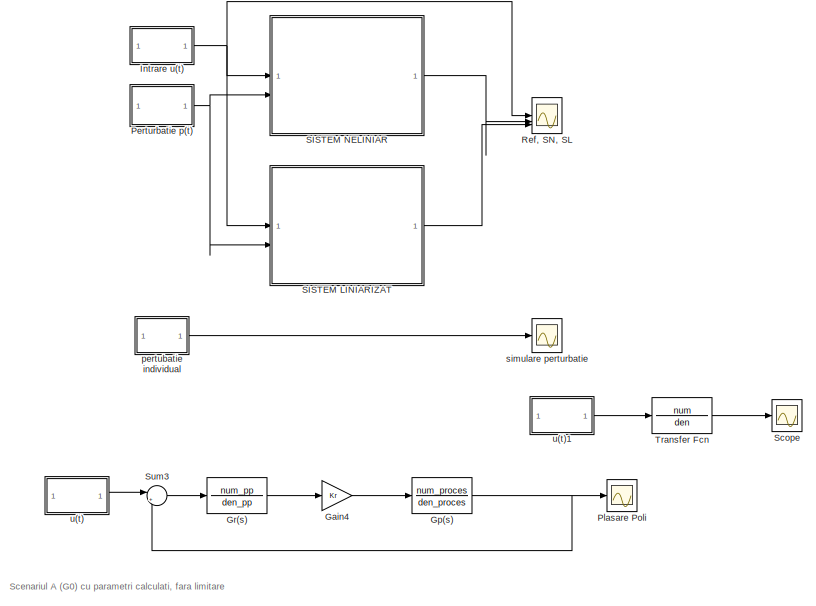
[diagram: root canvas - part 1/11, top center region]
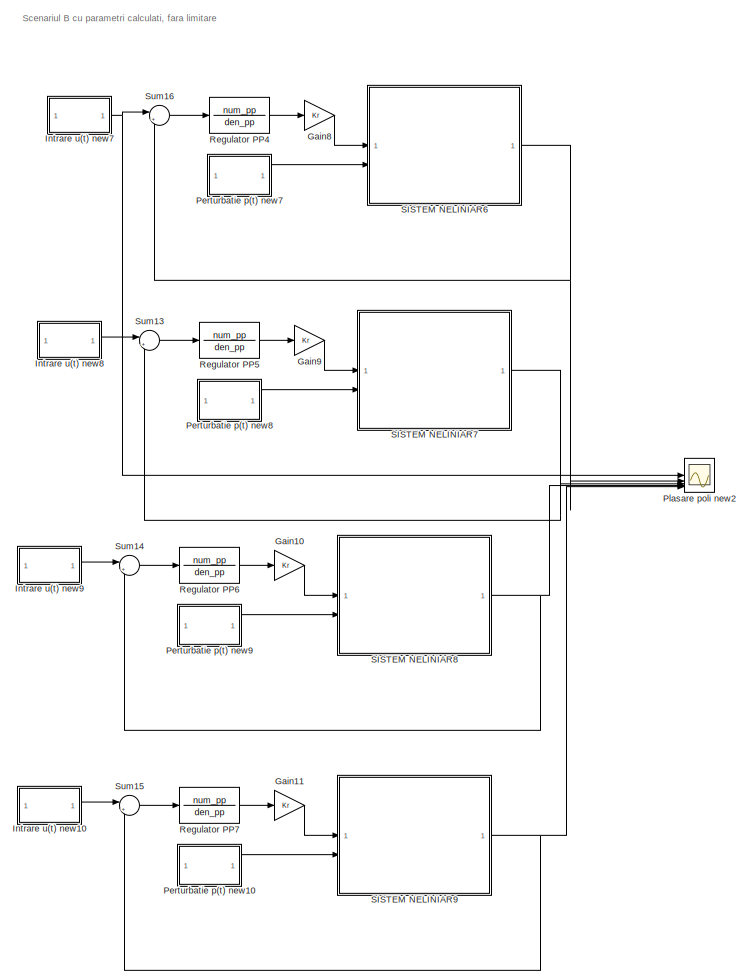
[diagram: root canvas - part 2/11, central region]
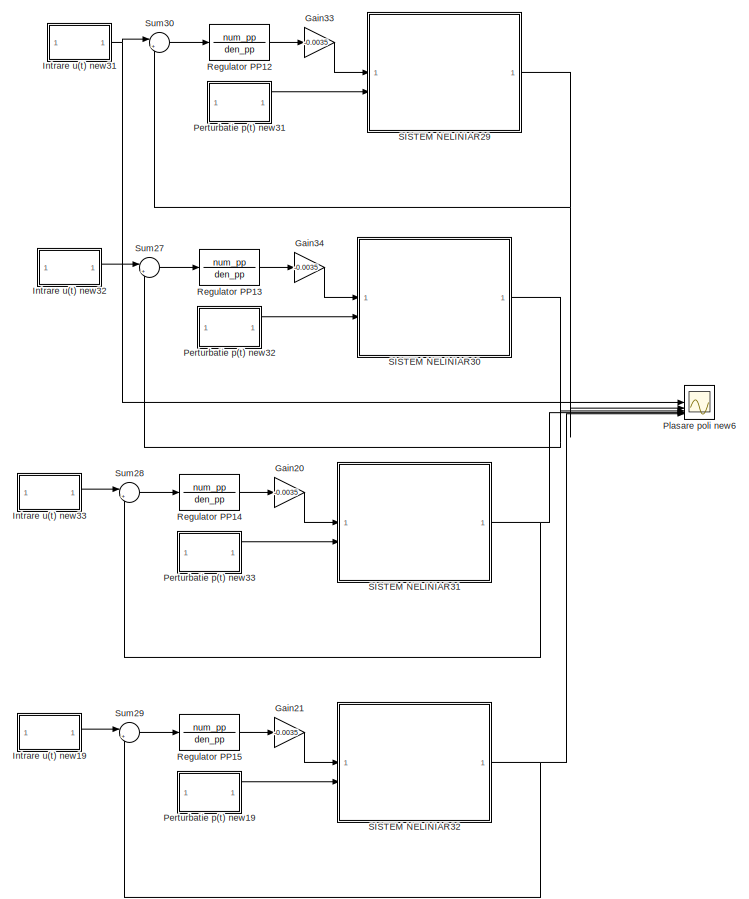
[diagram: root canvas - part 3/11, middle right region]
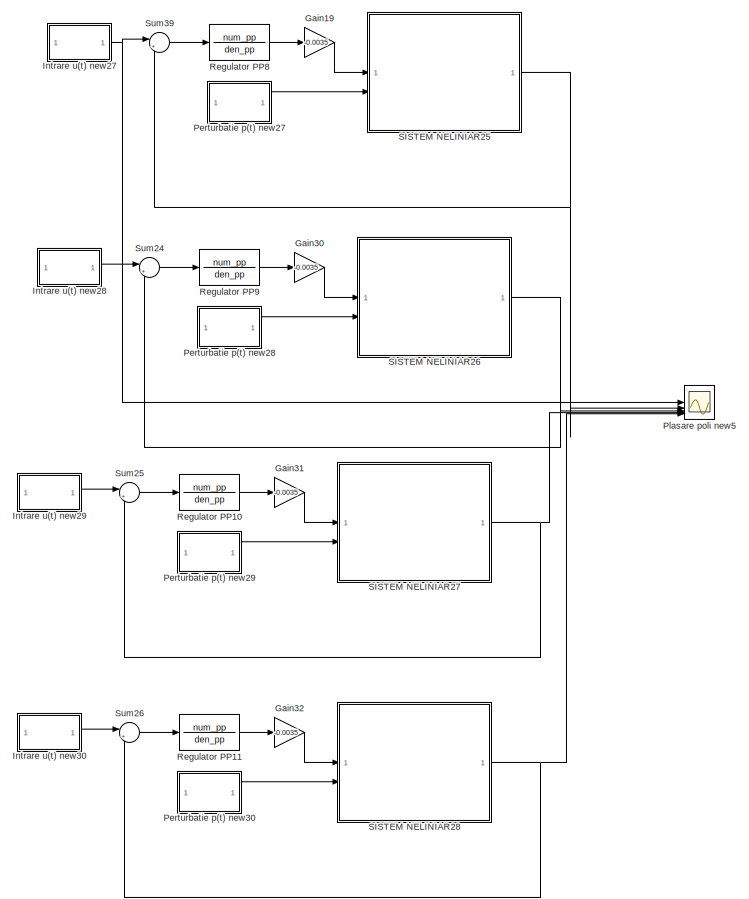
[diagram: root canvas - part 4/11, middle right region]
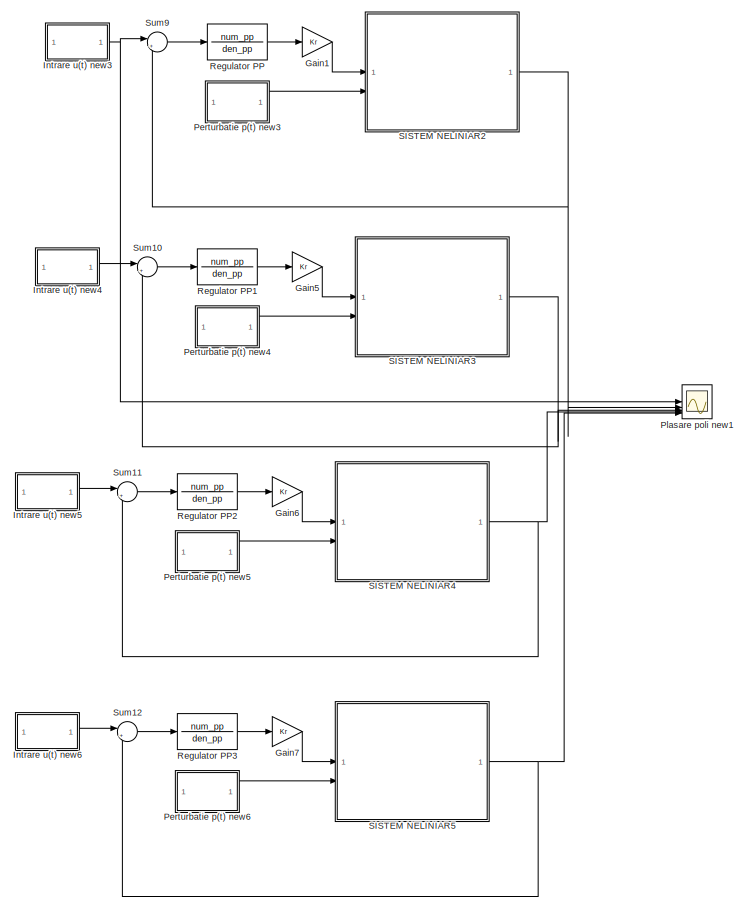
[diagram: root canvas - part 5/11, central region]
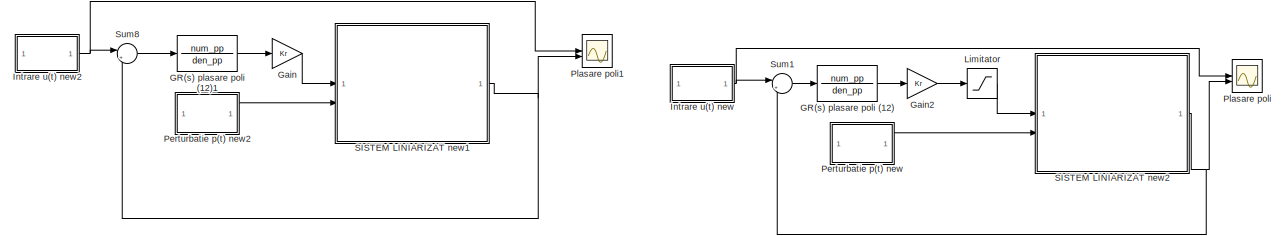
[diagram: root canvas - part 6/11, middle left region]
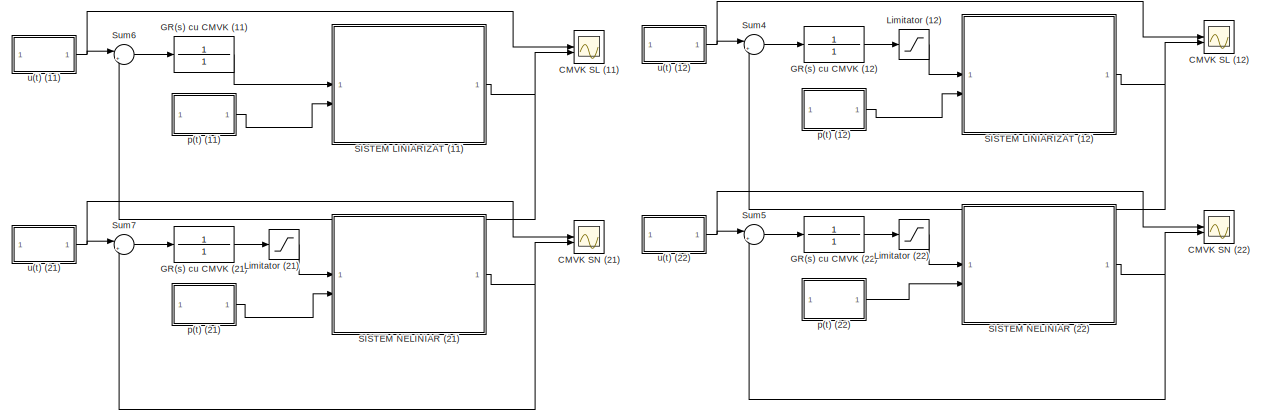
[diagram: root canvas - part 7/11, bottom left region]
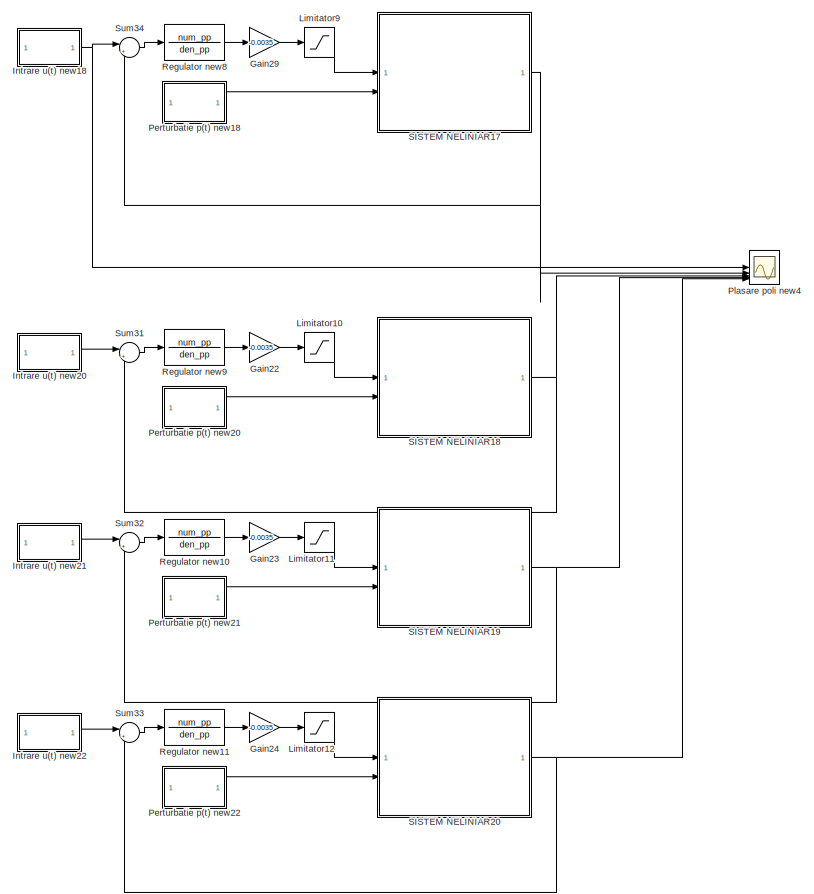
[diagram: root canvas - part 8/11, bottom right region]
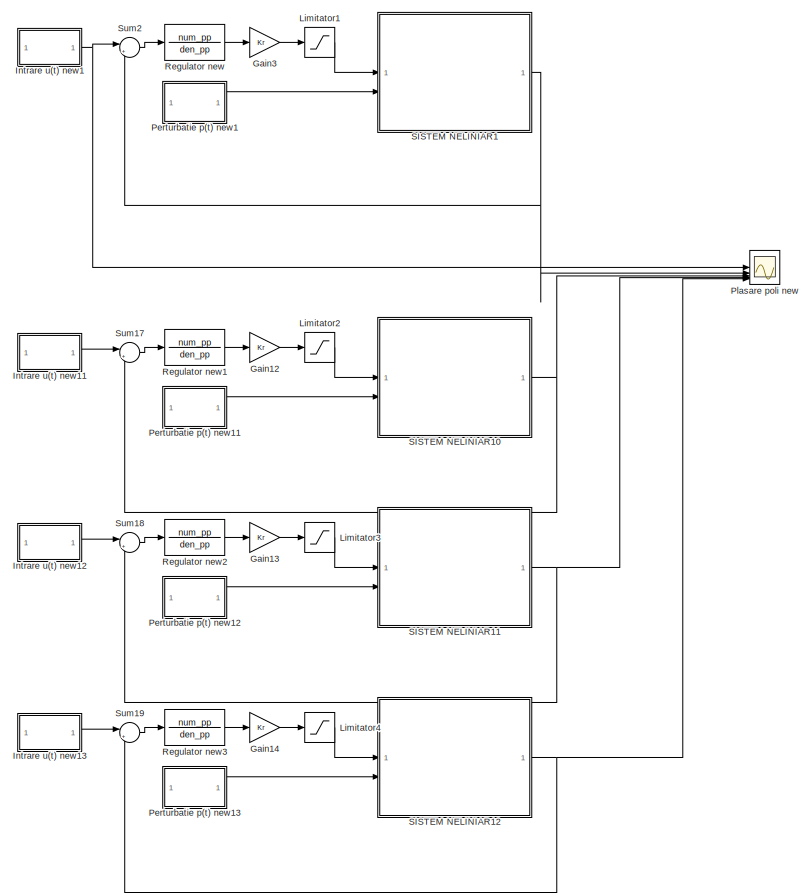
[diagram: root canvas - part 9/11, bottom center region]
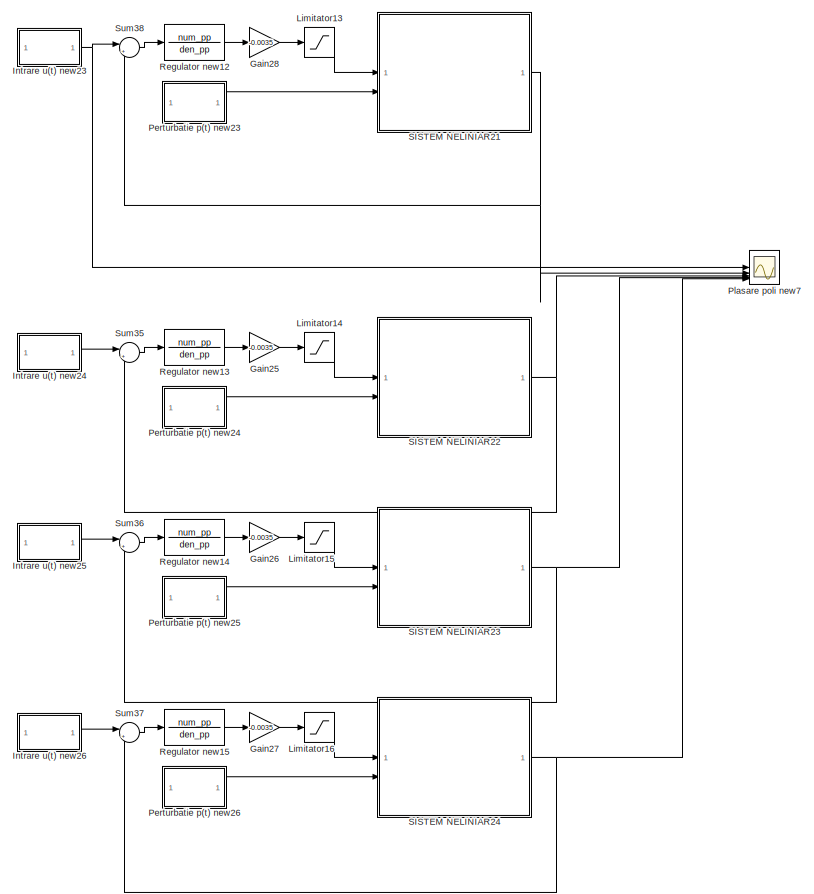
[diagram: root canvas - part 10/11, bottom right region]
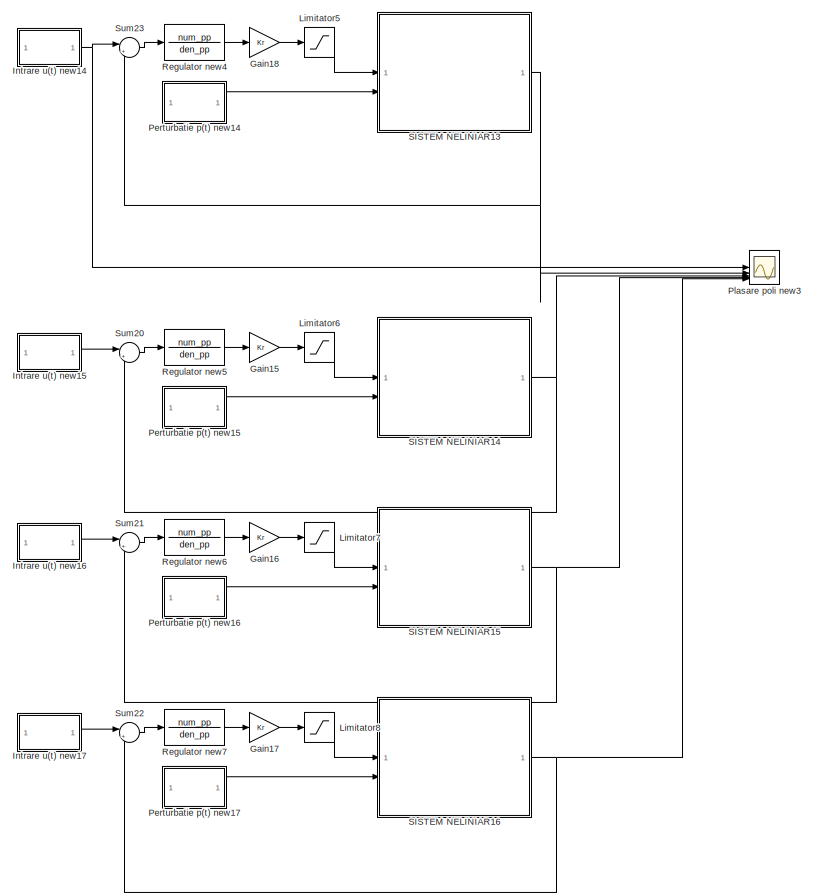
[diagram: root canvas - part 11/11, bottom center region]
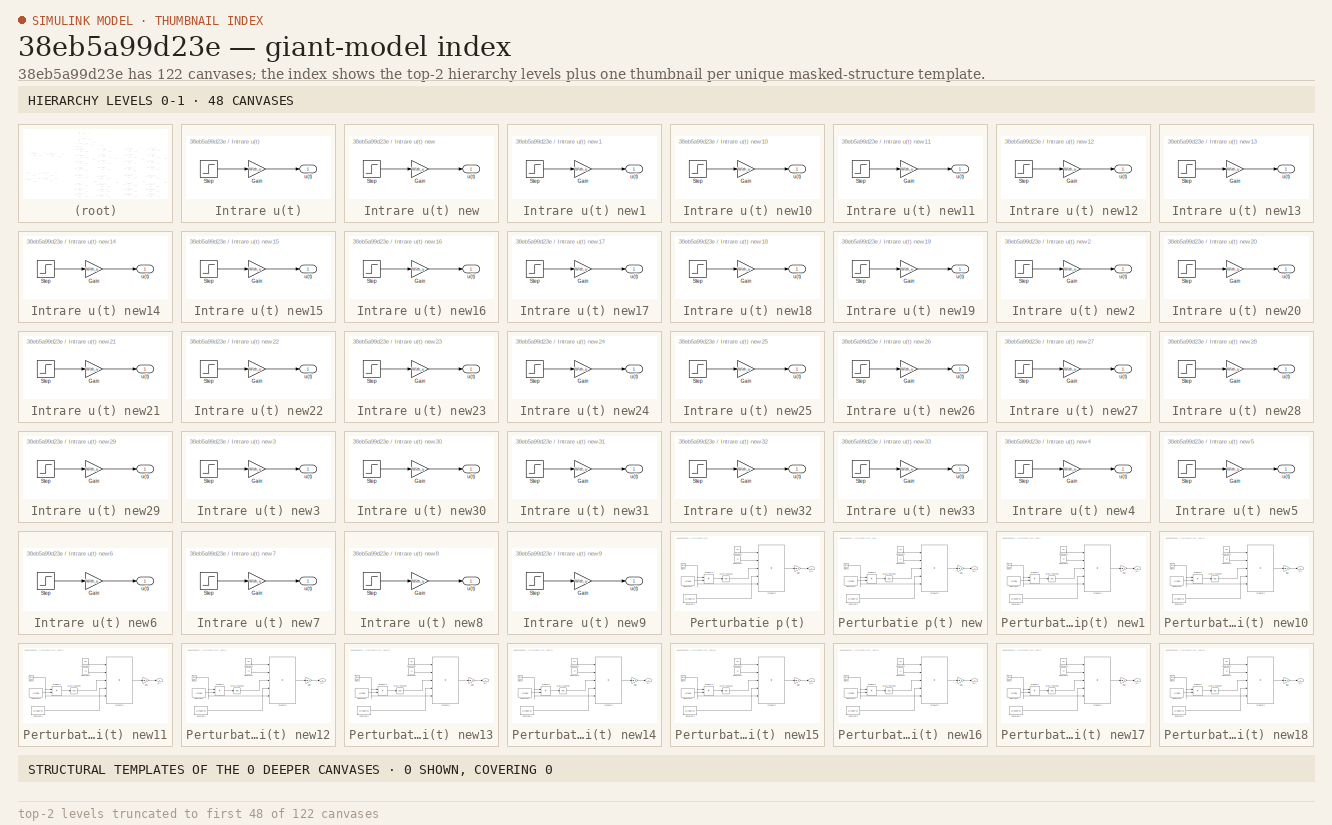
[diagram: thumbnail index - top-2 hierarchy levels (122 canvases (first 48 of 122 shown)) + 0 structural-template representatives of the remaining 0 canvases]
MODEL slx_38eb5a99d23e
KIND model
CONFIG AbsTol = auto
CONFIG EnableMultiTasking = off
CONFIG FixedStep = auto
CONFIG MaxStep = auto
CONFIG MinStep = auto
CONFIG RelTol = 1e-3
CONFIG SampleTimeConstraint = Unconstrained
CONFIG SolverName = VariableStepAuto
CONFIG StartTime = 0.0
CONFIG StopTime = 500
BLOCK [Scope] CMVK SL (11)
  Floating = off
  NumInputPorts = 2
  ScopeSpecificationString = Simulink.scopes.TimeScopeBlockCfg('CurrentConfiguration', extmgr.ConfigurationSet(extmgr.Configuration('Core','General UI',true),extmgr.Configuration('Core','Source UI',true),extmgr.Configuration('Sources','WiredSimulink',true,'DataLoggingVariableName','ScopeData4'),extmgr.Configuration('Visuals','Time Domain',true,'SerializedDisplays',{struct('MinYLimReal','-18.75','MaxYLimReal','168.75','YLabelR...<+1507ch>
BLOCK [Scope] CMVK SL (12)
  Floating = off
  NumInputPorts = 2
  ScopeSpecificationString = Simulink.scopes.TimeScopeBlockCfg('CurrentConfiguration', extmgr.ConfigurationSet(extmgr.Configuration('Core','General UI',true),extmgr.Configuration('Core','Source UI',true),extmgr.Configuration('Sources','WiredSimulink',true,'DataLoggingVariableName','ScopeData3'),extmgr.Configuration('Visuals','Time Domain',true,'SerializedDisplays',{struct('MinYLimReal','-26.03712','MaxYLimReal','169.55968','Y...<+1527ch>
BLOCK [Scope] CMVK SN (21)
  Floating = off
  NumInputPorts = 2
  ScopeSpecificationString = Simulink.scopes.TimeScopeBlockCfg('CurrentConfiguration', extmgr.ConfigurationSet(extmgr.Configuration('Core','General UI',true),extmgr.Configuration('Core','Source UI',true),extmgr.Configuration('Sources','WiredSimulink',true,'DataLoggingVariableName','ScopeData5'),extmgr.Configuration('Visuals','Time Domain',true,'SerializedDisplays',{struct('MinYLimReal','50.48298','MaxYLimReal','161.05745','YL...<+1523ch>
BLOCK [Scope] CMVK SN (22)
  Floating = off
  NumInputPorts = 2
  ScopeSpecificationString = Simulink.scopes.TimeScopeBlockCfg('CurrentConfiguration', extmgr.ConfigurationSet(extmgr.Configuration('Core','General UI',true),extmgr.Configuration('Core','Source UI',true),extmgr.Configuration('Sources','WiredSimulink',true,'DataLoggingVariableName','ScopeData2'),extmgr.Configuration('Visuals','Time Domain',true,'SerializedDisplays',{struct('MinYLimReal','71.25','MaxYLimReal','158.75','YLabelRe...<+1501ch>
BLOCK [TransferFcn] GR(s) cu CMVK (11)
  Denominator = 1
  Numerator = 1
BLOCK [TransferFcn] GR(s) cu CMVK (12)
  Denominator = 1
  Numerator = 1
BLOCK [TransferFcn] GR(s) cu CMVK (21)
  Denominator = 1
  Numerator = 1
BLOCK [TransferFcn] GR(s) cu CMVK (22)
  Denominator = 1
  Numerator = 1
BLOCK [TransferFcn] GR(s) plasare poli (12)
  Denominator = den_pp
  Numerator = num_pp
BLOCK [TransferFcn] GR(s) plasare poli (12)1
  Denominator = den_pp
  Numerator = num_pp
BLOCK [Gain] Gain
  Gain = Kr
BLOCK [Gain] Gain1
  Gain = Kr
BLOCK [Gain] Gain10
  Gain = Kr
BLOCK [Gain] Gain11
  Gain = Kr
BLOCK [Gain] Gain12
  Gain = Kr
BLOCK [Gain] Gain13
  Gain = Kr
BLOCK [Gain] Gain14
  Gain = Kr
BLOCK [Gain] Gain15
  Gain = Kr
BLOCK [Gain] Gain16
  Gain = Kr
BLOCK [Gain] Gain17
  Gain = Kr
BLOCK [Gain] Gain18
  Gain = Kr
BLOCK [Gain] Gain19
  Gain = -0.0035
BLOCK [Gain] Gain2
  Gain = Kr
BLOCK [Gain] Gain20
  Gain = -0.0035
BLOCK [Gain] Gain21
  Gain = -0.0035
BLOCK [Gain] Gain22
  Gain = -0.0035
BLOCK [Gain] Gain23
  Gain = -0.0035
BLOCK [Gain] Gain24
  Gain = -0.0035
BLOCK [Gain] Gain25
  Gain = -0.0035
BLOCK [Gain] Gain26
  Gain = -0.0035
BLOCK [Gain] Gain27
  Gain = -0.0035
BLOCK [Gain] Gain28
  Gain = -0.0035
BLOCK [Gain] Gain29
  Gain = -0.0035
BLOCK [Gain] Gain3
  Gain = Kr
BLOCK [Gain] Gain30
  Gain = -0.0035
BLOCK [Gain] Gain31
  Gain = -0.0035
BLOCK [Gain] Gain32
  Gain = -0.0035
BLOCK [Gain] Gain33
  Gain = -0.0035
BLOCK [Gain] Gain34
  Gain = -0.0035
BLOCK [Gain] Gain4
  Gain = Kr
BLOCK [Gain] Gain5
  Gain = Kr
BLOCK [Gain] Gain6
  Gain = Kr
BLOCK [Gain] Gain7
  Gain = Kr
BLOCK [Gain] Gain8
  Gain = Kr
BLOCK [Gain] Gain9
  Gain = Kr
BLOCK [TransferFcn] Gp(s)
  Denominator = den_proces
  Numerator = num_proces
BLOCK [TransferFcn] Gr(s)
  Denominator = den_pp
  Numerator = num_pp
BLOCK [SubSystem] Intrare u(t)
BLOCK [SubSystem] Intrare u(t) new
BLOCK [Gain] Intrare u(t) new/Gain
  Gain = With_u
BLOCK [Step] Intrare u(t) new/Step
  After = Gref
  SampleTime = 0
  Time = 0
BLOCK [Outport] Intrare u(t) new/u(t)
BLOCK [SubSystem] Intrare u(t) new1
BLOCK [Gain] Intrare u(t) new1/Gain
  Gain = With_u
BLOCK [Step] Intrare u(t) new1/Step
  After = Gref
  SampleTime = 0
  Time = 0
BLOCK [Outport] Intrare u(t) new1/u(t)
BLOCK [SubSystem] Intrare u(t) new10
BLOCK [Gain] Intrare u(t) new10/Gain
  Gain = With_u
BLOCK [Step] Intrare u(t) new10/Step
  After = Gref
  SampleTime = 0
  Time = 0
BLOCK [Outport] Intrare u(t) new10/u(t)
BLOCK [SubSystem] Intrare u(t) new11
BLOCK [Gain] Intrare u(t) new11/Gain
  Gain = With_u
BLOCK [Step] Intrare u(t) new11/Step
  After = Gref
  SampleTime = 0
  Time = 0
BLOCK [Outport] Intrare u(t) new11/u(t)
BLOCK [SubSystem] Intrare u(t) new12
BLOCK [Gain] Intrare u(t) new12/Gain
  Gain = With_u
BLOCK [Step] Intrare u(t) new12/Step
  After = Gref
  SampleTime = 0
  Time = 0
BLOCK [Outport] Intrare u(t) new12/u(t)
BLOCK [SubSystem] Intrare u(t) new13
BLOCK [Gain] Intrare u(t) new13/Gain
  Gain = With_u
BLOCK [Step] Intrare u(t) new13/Step
  After = Gref
  SampleTime = 0
  Time = 0
BLOCK [Outport] Intrare u(t) new13/u(t)
BLOCK [SubSystem] Intrare u(t) new14
BLOCK [Gain] Intrare u(t) new14/Gain
  Gain = With_u
BLOCK [Step] Intrare u(t) new14/Step
  After = Gref
  SampleTime = 0
  Time = 0
BLOCK [Outport] Intrare u(t) new14/u(t)
BLOCK [SubSystem] Intrare u(t) new15
BLOCK [Gain] Intrare u(t) new15/Gain
  Gain = With_u
BLOCK [Step] Intrare u(t) new15/Step
  After = Gref
  SampleTime = 0
  Time = 0
BLOCK [Outport] Intrare u(t) new15/u(t)
BLOCK [SubSystem] Intrare u(t) new16
BLOCK [Gain] Intrare u(t) new16/Gain
  Gain = With_u
BLOCK [Step] Intrare u(t) new16/Step
  After = Gref
  SampleTime = 0
  Time = 0
BLOCK [Outport] Intrare u(t) new16/u(t)
BLOCK [SubSystem] Intrare u(t) new17
BLOCK [Gain] Intrare u(t) new17/Gain
  Gain = With_u
BLOCK [Step] Intrare u(t) new17/Step
  After = Gref
  SampleTime = 0
  Time = 0
BLOCK [Outport] Intrare u(t) new17/u(t)
BLOCK [SubSystem] Intrare u(t) new18
BLOCK [Gain] Intrare u(t) new18/Gain
  Gain = With_u
BLOCK [Step] Intrare u(t) new18/Step
  After = Gref
  SampleTime = 0
  Time = 0
BLOCK [Outport] Intrare u(t) new18/u(t)
BLOCK [SubSystem] Intrare u(t) new19
BLOCK [Gain] Intrare u(t) new19/Gain
  Gain = With_u
BLOCK [Step] Intrare u(t) new19/Step
  After = Gref
  SampleTime = 0
  Time = 0
BLOCK [Outport] Intrare u(t) new19/u(t)
BLOCK [SubSystem] Intrare u(t) new2
BLOCK [Gain] Intrare u(t) new2/Gain
  Gain = With_u
BLOCK [Step] Intrare u(t) new2/Step
  After = Gref
  SampleTime = 0
  Time = 0
BLOCK [Outport] Intrare u(t) new2/u(t)
BLOCK [SubSystem] Intrare u(t) new20
BLOCK [Gain] Intrare u(t) new20/Gain
  Gain = With_u
BLOCK [Step] Intrare u(t) new20/Step
  After = Gref
  SampleTime = 0
  Time = 0
BLOCK [Outport] Intrare u(t) new20/u(t)
BLOCK [SubSystem] Intrare u(t) new21
BLOCK [Gain] Intrare u(t) new21/Gain
  Gain = With_u
BLOCK [Step] Intrare u(t) new21/Step
  After = Gref
  SampleTime = 0
  Time = 0
BLOCK [Outport] Intrare u(t) new21/u(t)
BLOCK [SubSystem] Intrare u(t) new22
BLOCK [Gain] Intrare u(t) new22/Gain
  Gain = With_u
BLOCK [Step] Intrare u(t) new22/Step
  After = Gref
  SampleTime = 0
  Time = 0
BLOCK [Outport] Intrare u(t) new22/u(t)
BLOCK [SubSystem] Intrare u(t) new23
BLOCK [Gain] Intrare u(t) new23/Gain
  Gain = With_u
BLOCK [Step] Intrare u(t) new23/Step
  After = Gref
  SampleTime = 0
  Time = 0
BLOCK [Outport] Intrare u(t) new23/u(t)
BLOCK [SubSystem] Intrare u(t) new24
BLOCK [Gain] Intrare u(t) new24/Gain
  Gain = With_u
BLOCK [Step] Intrare u(t) new24/Step
  After = Gref
  SampleTime = 0
  Time = 0
BLOCK [Outport] Intrare u(t) new24/u(t)
BLOCK [SubSystem] Intrare u(t) new25
BLOCK [Gain] Intrare u(t) new25/Gain
  Gain = With_u
BLOCK [Step] Intrare u(t) new25/Step
  After = Gref
  SampleTime = 0
  Time = 0
BLOCK [Outport] Intrare u(t) new25/u(t)
BLOCK [SubSystem] Intrare u(t) new26
BLOCK [Gain] Intrare u(t) new26/Gain
  Gain = With_u
BLOCK [Step] Intrare u(t) new26/Step
  After = Gref
  SampleTime = 0
  Time = 0
BLOCK [Outport] Intrare u(t) new26/u(t)
BLOCK [SubSystem] Intrare u(t) new27
BLOCK [Gain] Intrare u(t) new27/Gain
  Gain = With_u
BLOCK [Step] Intrare u(t) new27/Step
  After = Gref
  SampleTime = 0
  Time = 0
BLOCK [Outport] Intrare u(t) new27/u(t)
BLOCK [SubSystem] Intrare u(t) new28
BLOCK [Gain] Intrare u(t) new28/Gain
  Gain = With_u
BLOCK [Step] Intrare u(t) new28/Step
  After = Gref
  SampleTime = 0
  Time = 0
BLOCK [Outport] Intrare u(t) new28/u(t)
BLOCK [SubSystem] Intrare u(t) new29
BLOCK [Gain] Intrare u(t) new29/Gain
  Gain = With_u
BLOCK [Step] Intrare u(t) new29/Step
  After = Gref
  SampleTime = 0
  Time = 0
BLOCK [Outport] Intrare u(t) new29/u(t)
BLOCK [SubSystem] Intrare u(t) new3
BLOCK [Gain] Intrare u(t) new3/Gain
  Gain = With_u
BLOCK [Step] Intrare u(t) new3/Step
  After = Gref
  SampleTime = 0
  Time = 0
BLOCK [Outport] Intrare u(t) new3/u(t)
BLOCK [SubSystem] Intrare u(t) new30
BLOCK [Gain] Intrare u(t) new30/Gain
  Gain = With_u
BLOCK [Step] Intrare u(t) new30/Step
  After = Gref
  SampleTime = 0
  Time = 0
BLOCK [Outport] Intrare u(t) new30/u(t)
BLOCK [SubSystem] Intrare u(t) new31
BLOCK [Gain] Intrare u(t) new31/Gain
  Gain = With_u
BLOCK [Step] Intrare u(t) new31/Step
  After = Gref
  SampleTime = 0
  Time = 0
BLOCK [Outport] Intrare u(t) new31/u(t)
BLOCK [SubSystem] Intrare u(t) new32
BLOCK [Gain] Intrare u(t) new32/Gain
  Gain = With_u
BLOCK [Step] Intrare u(t) new32/Step
  After = Gref
  SampleTime = 0
  Time = 0
BLOCK [Outport] Intrare u(t) new32/u(t)
BLOCK [SubSystem] Intrare u(t) new33
BLOCK [Gain] Intrare u(t) new33/Gain
  Gain = With_u
BLOCK [Step] Intrare u(t) new33/Step
  After = Gref
  SampleTime = 0
  Time = 0
BLOCK [Outport] Intrare u(t) new33/u(t)
BLOCK [SubSystem] Intrare u(t) new4
BLOCK [Gain] Intrare u(t) new4/Gain
  Gain = With_u
BLOCK [Step] Intrare u(t) new4/Step
  After = Gref
  SampleTime = 0
  Time = 0
BLOCK [Outport] Intrare u(t) new4/u(t)
BLOCK [SubSystem] Intrare u(t) new5
BLOCK [Gain] Intrare u(t) new5/Gain
  Gain = With_u
BLOCK [Step] Intrare u(t) new5/Step
  After = Gref
  SampleTime = 0
  Time = 0
BLOCK [Outport] Intrare u(t) new5/u(t)
BLOCK [SubSystem] Intrare u(t) new6
BLOCK [Gain] Intrare u(t) new6/Gain
  Gain = With_u
BLOCK [Step] Intrare u(t) new6/Step
  After = Gref
  SampleTime = 0
  Time = 0
BLOCK [Outport] Intrare u(t) new6/u(t)
BLOCK [SubSystem] Intrare u(t) new7
BLOCK [Gain] Intrare u(t) new7/Gain
  Gain = With_u
BLOCK [Step] Intrare u(t) new7/Step
  After = Gref
  SampleTime = 0
  Time = 0
BLOCK [Outport] Intrare u(t) new7/u(t)
BLOCK [SubSystem] Intrare u(t) new8
BLOCK [Gain] Intrare u(t) new8/Gain
  Gain = With_u
BLOCK [Step] Intrare u(t) new8/Step
  After = Gref
  SampleTime = 0
  Time = 0
BLOCK [Outport] Intrare u(t) new8/u(t)
BLOCK [SubSystem] Intrare u(t) new9
BLOCK [Gain] Intrare u(t) new9/Gain
  Gain = With_u
BLOCK [Step] Intrare u(t) new9/Step
  After = Gref
  SampleTime = 0
  Time = 0
BLOCK [Outport] Intrare u(t) new9/u(t)
BLOCK [Gain] Intrare u(t)/Gain
  Gain = With_u
BLOCK [Step] Intrare u(t)/Step
  After = Gref
  SampleTime = 0
  Time = 0
BLOCK [Outport] Intrare u(t)/u(t)
BLOCK [Saturate] Limitator
  LowerLimit = 0
  UpperLimit = 500
BLOCK [Saturate] Limitator (12)
  LowerLimit = 0
  UpperLimit = 500
BLOCK [Saturate] Limitator (21)
  LowerLimit = 0
  UpperLimit = 500
BLOCK [Saturate] Limitator (22)
  LowerLimit = 0
  UpperLimit = 500
BLOCK [Saturate] Limitator1
  LowerLimit = 0
  UpperLimit = 500
BLOCK [Saturate] Limitator10
  LowerLimit = 0
  UpperLimit = 500
BLOCK [Saturate] Limitator11
  LowerLimit = 0
  UpperLimit = 500
BLOCK [Saturate] Limitator12
  LowerLimit = 0
  UpperLimit = 500
BLOCK [Saturate] Limitator13
  LowerLimit = 0
  UpperLimit = 500
BLOCK [Saturate] Limitator14
  LowerLimit = 0
  UpperLimit = 500
BLOCK [Saturate] Limitator15
  LowerLimit = 0
  UpperLimit = 500
BLOCK [Saturate] Limitator16
  LowerLimit = 0
  UpperLimit = 500
BLOCK [Saturate] Limitator2
  LowerLimit = 0
  UpperLimit = 500
BLOCK [Saturate] Limitator3
  LowerLimit = 0
  UpperLimit = 500
BLOCK [Saturate] Limitator4
  LowerLimit = 0
  UpperLimit = 500
BLOCK [Saturate] Limitator5
  LowerLimit = 0
  UpperLimit = 500
BLOCK [Saturate] Limitator6
  LowerLimit = 0
  UpperLimit = 500
BLOCK [Saturate] Limitator7
  LowerLimit = 0
  UpperLimit = 500
BLOCK [Saturate] Limitator8
  LowerLimit = 0
  UpperLimit = 500
BLOCK [Saturate] Limitator9
  LowerLimit = 0
  UpperLimit = 500
BLOCK [SubSystem] Perturbatie p(t)
BLOCK [SubSystem] Perturbatie p(t) new
BLOCK [Clock] Perturbatie p(t) new/Clock1
BLOCK [Constant] Perturbatie p(t) new/Constant1
  Value = Dg
BLOCK [Constant] Perturbatie p(t) new/Constant2
  Value = Ag
BLOCK [Constant] Perturbatie p(t) new/Constant3
  Value = -1/tgM
BLOCK [Constant] Perturbatie p(t) new/Constant4
  Value = 1/(tgM^2)
BLOCK [Gain] Perturbatie p(t) new/Gain
  Gain = With_p
BLOCK [Math] Perturbatie p(t) new/Math Function
  SignedPower = on
BLOCK [Product] Perturbatie p(t) new/Product1
BLOCK [Product] Perturbatie p(t) new/Product3
  Inputs = 5
BLOCK [Outport] Perturbatie p(t) new/p(t)
BLOCK [SubSystem] Perturbatie p(t) new1
BLOCK [Clock] Perturbatie p(t) new1/Clock1
BLOCK [Constant] Perturbatie p(t) new1/Constant1
  Value = Dg
BLOCK [Constant] Perturbatie p(t) new1/Constant2
  Value = Ag
BLOCK [Constant] Perturbatie p(t) new1/Constant3
  Value = -1/tgM
BLOCK [Constant] Perturbatie p(t) new1/Constant4
  Value = 1/(tgM^2)
BLOCK [Gain] Perturbatie p(t) new1/Gain
  Gain = With_p
BLOCK [Math] Perturbatie p(t) new1/Math Function
  SignedPower = on
BLOCK [Product] Perturbatie p(t) new1/Product1
BLOCK [Product] Perturbatie p(t) new1/Product3
  Inputs = 5
BLOCK [Outport] Perturbatie p(t) new1/p(t)
BLOCK [SubSystem] Perturbatie p(t) new10
BLOCK [Clock] Perturbatie p(t) new10/Clock1
BLOCK [Constant] Perturbatie p(t) new10/Constant1
  Value = Dg
BLOCK [Constant] Perturbatie p(t) new10/Constant2
  Value = Ag
BLOCK [Constant] Perturbatie p(t) new10/Constant3
  Value = -1/tgM
BLOCK [Constant] Perturbatie p(t) new10/Constant4
  Value = 1/(tgM^2)
BLOCK [Gain] Perturbatie p(t) new10/Gain
  Gain = With_p
BLOCK [Math] Perturbatie p(t) new10/Math Function
  SignedPower = on
BLOCK [Product] Perturbatie p(t) new10/Product1
BLOCK [Product] Perturbatie p(t) new10/Product3
  Inputs = 5
BLOCK [Outport] Perturbatie p(t) new10/p(t)
BLOCK [SubSystem] Perturbatie p(t) new11
BLOCK [Clock] Perturbatie p(t) new11/Clock1
BLOCK [Constant] Perturbatie p(t) new11/Constant1
  Value = Dg
BLOCK [Constant] Perturbatie p(t) new11/Constant2
  Value = Ag
BLOCK [Constant] Perturbatie p(t) new11/Constant3
  Value = -1/tgM
BLOCK [Constant] Perturbatie p(t) new11/Constant4
  Value = 1/(tgM^2)
BLOCK [Gain] Perturbatie p(t) new11/Gain
  Gain = With_p
BLOCK [Math] Perturbatie p(t) new11/Math Function
  SignedPower = on
BLOCK [Product] Perturbatie p(t) new11/Product1
BLOCK [Product] Perturbatie p(t) new11/Product3
  Inputs = 5
BLOCK [Outport] Perturbatie p(t) new11/p(t)
BLOCK [SubSystem] Perturbatie p(t) new12
BLOCK [Clock] Perturbatie p(t) new12/Clock1
BLOCK [Constant] Perturbatie p(t) new12/Constant1
  Value = Dg
BLOCK [Constant] Perturbatie p(t) new12/Constant2
  Value = Ag
BLOCK [Constant] Perturbatie p(t) new12/Constant3
  Value = -1/tgM
BLOCK [Constant] Perturbatie p(t) new12/Constant4
  Value = 1/(tgM^2)
BLOCK [Gain] Perturbatie p(t) new12/Gain
  Gain = With_p
BLOCK [Math] Perturbatie p(t) new12/Math Function
  SignedPower = on
BLOCK [Product] Perturbatie p(t) new12/Product1
BLOCK [Product] Perturbatie p(t) new12/Product3
  Inputs = 5
BLOCK [Outport] Perturbatie p(t) new12/p(t)
BLOCK [SubSystem] Perturbatie p(t) new13
BLOCK [Clock] Perturbatie p(t) new13/Clock1
BLOCK [Constant] Perturbatie p(t) new13/Constant1
  Value = Dg
BLOCK [Constant] Perturbatie p(t) new13/Constant2
  Value = Ag
BLOCK [Constant] Perturbatie p(t) new13/Constant3
  Value = -1/tgM
BLOCK [Constant] Perturbatie p(t) new13/Constant4
  Value = 1/(tgM^2)
BLOCK [Gain] Perturbatie p(t) new13/Gain
  Gain = With_p
BLOCK [Math] Perturbatie p(t) new13/Math Function
  SignedPower = on
BLOCK [Product] Perturbatie p(t) new13/Product1
BLOCK [Product] Perturbatie p(t) new13/Product3
  Inputs = 5
BLOCK [Outport] Perturbatie p(t) new13/p(t)
BLOCK [SubSystem] Perturbatie p(t) new14
BLOCK [Clock] Perturbatie p(t) new14/Clock1
BLOCK [Constant] Perturbatie p(t) new14/Constant1
  Value = Dg
BLOCK [Constant] Perturbatie p(t) new14/Constant2
  Value = Ag
BLOCK [Constant] Perturbatie p(t) new14/Constant3
  Value = -1/tgM
BLOCK [Constant] Perturbatie p(t) new14/Constant4
  Value = 1/(tgM^2)
BLOCK [Gain] Perturbatie p(t) new14/Gain
  Gain = With_p
BLOCK [Math] Perturbatie p(t) new14/Math Function
  SignedPower = on
BLOCK [Product] Perturbatie p(t) new14/Product1
BLOCK [Product] Perturbatie p(t) new14/Product3
  Inputs = 5
BLOCK [Outport] Perturbatie p(t) new14/p(t)
BLOCK [SubSystem] Perturbatie p(t) new15
BLOCK [Clock] Perturbatie p(t) new15/Clock1
BLOCK [Constant] Perturbatie p(t) new15/Constant1
  Value = Dg
BLOCK [Constant] Perturbatie p(t) new15/Constant2
  Value = Ag
BLOCK [Constant] Perturbatie p(t) new15/Constant3
  Value = -1/tgM
BLOCK [Constant] Perturbatie p(t) new15/Constant4
  Value = 1/(tgM^2)
BLOCK [Gain] Perturbatie p(t) new15/Gain
  Gain = With_p
BLOCK [Math] Perturbatie p(t) new15/Math Function
  SignedPower = on
BLOCK [Product] Perturbatie p(t) new15/Product1
BLOCK [Product] Perturbatie p(t) new15/Product3
  Inputs = 5
BLOCK [Outport] Perturbatie p(t) new15/p(t)
BLOCK [SubSystem] Perturbatie p(t) new16
BLOCK [Clock] Perturbatie p(t) new16/Clock1
BLOCK [Constant] Perturbatie p(t) new16/Constant1
  Value = Dg
BLOCK [Constant] Perturbatie p(t) new16/Constant2
  Value = Ag
BLOCK [Constant] Perturbatie p(t) new16/Constant3
  Value = -1/tgM
BLOCK [Constant] Perturbatie p(t) new16/Constant4
  Value = 1/(tgM^2)
BLOCK [Gain] Perturbatie p(t) new16/Gain
  Gain = With_p
BLOCK [Math] Perturbatie p(t) new16/Math Function
  SignedPower = on
BLOCK [Product] Perturbatie p(t) new16/Product1
BLOCK [Product] Perturbatie p(t) new16/Product3
  Inputs = 5
BLOCK [Outport] Perturbatie p(t) new16/p(t)
BLOCK [SubSystem] Perturbatie p(t) new17
BLOCK [Clock] Perturbatie p(t) new17/Clock1
BLOCK [Constant] Perturbatie p(t) new17/Constant1
  Value = Dg
BLOCK [Constant] Perturbatie p(t) new17/Constant2
  Value = Ag
BLOCK [Constant] Perturbatie p(t) new17/Constant3
  Value = -1/tgM
BLOCK [Constant] Perturbatie p(t) new17/Constant4
  Value = 1/(tgM^2)
BLOCK [Gain] Perturbatie p(t) new17/Gain
  Gain = With_p
BLOCK [Math] Perturbatie p(t) new17/Math Function
  SignedPower = on
BLOCK [Product] Perturbatie p(t) new17/Product1
BLOCK [Product] Perturbatie p(t) new17/Product3
  Inputs = 5
BLOCK [Outport] Perturbatie p(t) new17/p(t)
BLOCK [SubSystem] Perturbatie p(t) new18
BLOCK [Clock] Perturbatie p(t) new18/Clock1
BLOCK [Constant] Perturbatie p(t) new18/Constant1
  Value = Dg
BLOCK [Constant] Perturbatie p(t) new18/Constant2
  Value = Ag
BLOCK [Constant] Perturbatie p(t) new18/Constant3
  Value = -1/tgM
BLOCK [Constant] Perturbatie p(t) new18/Constant4
  Value = 1/(tgM^2)
BLOCK [Gain] Perturbatie p(t) new18/Gain
  Gain = With_p
BLOCK [Math] Perturbatie p(t) new18/Math Function
  SignedPower = on
BLOCK [Product] Perturbatie p(t) new18/Product1
BLOCK [Product] Perturbatie p(t) new18/Product3
  Inputs = 5
BLOCK [Outport] Perturbatie p(t) new18/p(t)
BLOCK [SubSystem] Perturbatie p(t) new19
BLOCK [Clock] Perturbatie p(t) new19/Clock1
BLOCK [Constant] Perturbatie p(t) new19/Constant1
  Value = Dg
BLOCK [Constant] Perturbatie p(t) new19/Constant2
  Value = Ag
BLOCK [Constant] Perturbatie p(t) new19/Constant3
  Value = -1/tgM
BLOCK [Constant] Perturbatie p(t) new19/Constant4
  Value = 1/(tgM^2)
BLOCK [Gain] Perturbatie p(t) new19/Gain
  Gain = With_p
BLOCK [Math] Perturbatie p(t) new19/Math Function
  SignedPower = on
BLOCK [Product] Perturbatie p(t) new19/Product1
BLOCK [Product] Perturbatie p(t) new19/Product3
  Inputs = 5
BLOCK [Outport] Perturbatie p(t) new19/p(t)
BLOCK [SubSystem] Perturbatie p(t) new2
BLOCK [Clock] Perturbatie p(t) new2/Clock1
BLOCK [Constant] Perturbatie p(t) new2/Constant1
  Value = Dg
BLOCK [Constant] Perturbatie p(t) new2/Constant2
  Value = Ag
BLOCK [Constant] Perturbatie p(t) new2/Constant3
  Value = -1/tgM
BLOCK [Constant] Perturbatie p(t) new2/Constant4
  Value = 1/(tgM^2)
BLOCK [Gain] Perturbatie p(t) new2/Gain
  Gain = With_p
BLOCK [Math] Perturbatie p(t) new2/Math Function
  SignedPower = on
BLOCK [Product] Perturbatie p(t) new2/Product1
BLOCK [Product] Perturbatie p(t) new2/Product3
  Inputs = 5
BLOCK [Outport] Perturbatie p(t) new2/p(t)
BLOCK [SubSystem] Perturbatie p(t) new20
BLOCK [Clock] Perturbatie p(t) new20/Clock1
BLOCK [Constant] Perturbatie p(t) new20/Constant1
  Value = Dg
BLOCK [Constant] Perturbatie p(t) new20/Constant2
  Value = Ag
BLOCK [Constant] Perturbatie p(t) new20/Constant3
  Value = -1/tgM
BLOCK [Constant] Perturbatie p(t) new20/Constant4
  Value = 1/(tgM^2)
BLOCK [Gain] Perturbatie p(t) new20/Gain
  Gain = With_p
BLOCK [Math] Perturbatie p(t) new20/Math Function
  SignedPower = on
BLOCK [Product] Perturbatie p(t) new20/Product1
BLOCK [Product] Perturbatie p(t) new20/Product3
  Inputs = 5
BLOCK [Outport] Perturbatie p(t) new20/p(t)
BLOCK [SubSystem] Perturbatie p(t) new21
BLOCK [Clock] Perturbatie p(t) new21/Clock1
BLOCK [Constant] Perturbatie p(t) new21/Constant1
  Value = Dg
BLOCK [Constant] Perturbatie p(t) new21/Constant2
  Value = Ag
BLOCK [Constant] Perturbatie p(t) new21/Constant3
  Value = -1/tgM
BLOCK [Constant] Perturbatie p(t) new21/Constant4
  Value = 1/(tgM^2)
BLOCK [Gain] Perturbatie p(t) new21/Gain
  Gain = With_p
BLOCK [Math] Perturbatie p(t) new21/Math Function
  SignedPower = on
BLOCK [Product] Perturbatie p(t) new21/Product1
BLOCK [Product] Perturbatie p(t) new21/Product3
  Inputs = 5
BLOCK [Outport] Perturbatie p(t) new21/p(t)
BLOCK [SubSystem] Perturbatie p(t) new22
BLOCK [Clock] Perturbatie p(t) new22/Clock1
BLOCK [Constant] Perturbatie p(t) new22/Constant1
  Value = Dg
BLOCK [Constant] Perturbatie p(t) new22/Constant2
  Value = Ag
BLOCK [Constant] Perturbatie p(t) new22/Constant3
  Value = -1/tgM
BLOCK [Constant] Perturbatie p(t) new22/Constant4
  Value = 1/(tgM^2)
BLOCK [Gain] Perturbatie p(t) new22/Gain
  Gain = With_p
BLOCK [Math] Perturbatie p(t) new22/Math Function
  SignedPower = on
BLOCK [Product] Perturbatie p(t) new22/Product1
BLOCK [Product] Perturbatie p(t) new22/Product3
  Inputs = 5
BLOCK [Outport] Perturbatie p(t) new22/p(t)
BLOCK [SubSystem] Perturbatie p(t) new23
BLOCK [Clock] Perturbatie p(t) new23/Clock1
BLOCK [Constant] Perturbatie p(t) new23/Constant1
  Value = Dg
BLOCK [Constant] Perturbatie p(t) new23/Constant2
  Value = Ag
BLOCK [Constant] Perturbatie p(t) new23/Constant3
  Value = -1/tgM
BLOCK [Constant] Perturbatie p(t) new23/Constant4
  Value = 1/(tgM^2)
BLOCK [Gain] Perturbatie p(t) new23/Gain
  Gain = With_p
BLOCK [Math] Perturbatie p(t) new23/Math Function
  SignedPower = on
BLOCK [Product] Perturbatie p(t) new23/Product1
BLOCK [Product] Perturbatie p(t) new23/Product3
  Inputs = 5
BLOCK [Outport] Perturbatie p(t) new23/p(t)
BLOCK [SubSystem] Perturbatie p(t) new24
BLOCK [Clock] Perturbatie p(t) new24/Clock1
BLOCK [Constant] Perturbatie p(t) new24/Constant1
  Value = Dg
BLOCK [Constant] Perturbatie p(t) new24/Constant2
  Value = Ag
BLOCK [Constant] Perturbatie p(t) new24/Constant3
  Value = -1/tgM
BLOCK [Constant] Perturbatie p(t) new24/Constant4
  Value = 1/(tgM^2)
BLOCK [Gain] Perturbatie p(t) new24/Gain
  Gain = With_p
BLOCK [Math] Perturbatie p(t) new24/Math Function
  SignedPower = on
BLOCK [Product] Perturbatie p(t) new24/Product1
BLOCK [Product] Perturbatie p(t) new24/Product3
  Inputs = 5
BLOCK [Outport] Perturbatie p(t) new24/p(t)
BLOCK [SubSystem] Perturbatie p(t) new25
BLOCK [Clock] Perturbatie p(t) new25/Clock1
BLOCK [Constant] Perturbatie p(t) new25/Constant1
  Value = Dg
BLOCK [Constant] Perturbatie p(t) new25/Constant2
  Value = Ag
BLOCK [Constant] Perturbatie p(t) new25/Constant3
  Value = -1/tgM
BLOCK [Constant] Perturbatie p(t) new25/Constant4
  Value = 1/(tgM^2)
BLOCK [Gain] Perturbatie p(t) new25/Gain
  Gain = With_p
BLOCK [Math] Perturbatie p(t) new25/Math Function
  SignedPower = on
BLOCK [Product] Perturbatie p(t) new25/Product1
BLOCK [Product] Perturbatie p(t) new25/Product3
  Inputs = 5
BLOCK [Outport] Perturbatie p(t) new25/p(t)
BLOCK [SubSystem] Perturbatie p(t) new26
BLOCK [Clock] Perturbatie p(t) new26/Clock1
BLOCK [Constant] Perturbatie p(t) new26/Constant1
  Value = Dg
BLOCK [Constant] Perturbatie p(t) new26/Constant2
  Value = Ag
BLOCK [Constant] Perturbatie p(t) new26/Constant3
  Value = -1/tgM
BLOCK [Constant] Perturbatie p(t) new26/Constant4
  Value = 1/(tgM^2)
BLOCK [Gain] Perturbatie p(t) new26/Gain
  Gain = With_p
BLOCK [Math] Perturbatie p(t) new26/Math Function
  SignedPower = on
BLOCK [Product] Perturbatie p(t) new26/Product1
BLOCK [Product] Perturbatie p(t) new26/Product3
  Inputs = 5
BLOCK [Outport] Perturbatie p(t) new26/p(t)
BLOCK [SubSystem] Perturbatie p(t) new27
BLOCK [Clock] Perturbatie p(t) new27/Clock1
BLOCK [Constant] Perturbatie p(t) new27/Constant1
  Value = Dg
BLOCK [Constant] Perturbatie p(t) new27/Constant2
  Value = Ag
BLOCK [Constant] Perturbatie p(t) new27/Constant3
  Value = -1/tgM
BLOCK [Constant] Perturbatie p(t) new27/Constant4
  Value = 1/(tgM^2)
BLOCK [Gain] Perturbatie p(t) new27/Gain
  Gain = With_p
BLOCK [Math] Perturbatie p(t) new27/Math Function
  SignedPower = on
BLOCK [Product] Perturbatie p(t) new27/Product1
BLOCK [Product] Perturbatie p(t) new27/Product3
  Inputs = 5
BLOCK [Outport] Perturbatie p(t) new27/p(t)
BLOCK [SubSystem] Perturbatie p(t) new28
BLOCK [Clock] Perturbatie p(t) new28/Clock1
BLOCK [Constant] Perturbatie p(t) new28/Constant1
  Value = Dg
BLOCK [Constant] Perturbatie p(t) new28/Constant2
  Value = Ag
BLOCK [Constant] Perturbatie p(t) new28/Constant3
  Value = -1/tgM
BLOCK [Constant] Perturbatie p(t) new28/Constant4
  Value = 1/(tgM^2)
BLOCK [Gain] Perturbatie p(t) new28/Gain
  Gain = With_p
BLOCK [Math] Perturbatie p(t) new28/Math Function
  SignedPower = on
BLOCK [Product] Perturbatie p(t) new28/Product1
BLOCK [Product] Perturbatie p(t) new28/Product3
  Inputs = 5
BLOCK [Outport] Perturbatie p(t) new28/p(t)
BLOCK [SubSystem] Perturbatie p(t) new29
BLOCK [Clock] Perturbatie p(t) new29/Clock1
BLOCK [Constant] Perturbatie p(t) new29/Constant1
  Value = Dg
BLOCK [Constant] Perturbatie p(t) new29/Constant2
  Value = Ag
BLOCK [Constant] Perturbatie p(t) new29/Constant3
  Value = -1/tgM
BLOCK [Constant] Perturbatie p(t) new29/Constant4
  Value = 1/(tgM^2)
BLOCK [Gain] Perturbatie p(t) new29/Gain
  Gain = With_p
BLOCK [Math] Perturbatie p(t) new29/Math Function
  SignedPower = on
BLOCK [Product] Perturbatie p(t) new29/Product1
BLOCK [Product] Perturbatie p(t) new29/Product3
  Inputs = 5
BLOCK [Outport] Perturbatie p(t) new29/p(t)
BLOCK [SubSystem] Perturbatie p(t) new3
BLOCK [Clock] Perturbatie p(t) new3/Clock1
BLOCK [Constant] Perturbatie p(t) new3/Constant1
  Value = Dg
BLOCK [Constant] Perturbatie p(t) new3/Constant2
  Value = Ag
BLOCK [Constant] Perturbatie p(t) new3/Constant3
  Value = -1/tgM
BLOCK [Constant] Perturbatie p(t) new3/Constant4
  Value = 1/(tgM^2)
BLOCK [Gain] Perturbatie p(t) new3/Gain
  Gain = With_p
BLOCK [Math] Perturbatie p(t) new3/Math Function
  SignedPower = on
BLOCK [Product] Perturbatie p(t) new3/Product1
BLOCK [Product] Perturbatie p(t) new3/Product3
  Inputs = 5
BLOCK [Outport] Perturbatie p(t) new3/p(t)
BLOCK [SubSystem] Perturbatie p(t) new30
BLOCK [Clock] Perturbatie p(t) new30/Clock1
BLOCK [Constant] Perturbatie p(t) new30/Constant1
  Value = Dg
BLOCK [Constant] Perturbatie p(t) new30/Constant2
  Value = Ag
BLOCK [Constant] Perturbatie p(t) new30/Constant3
  Value = -1/tgM
BLOCK [Constant] Perturbatie p(t) new30/Constant4
  Value = 1/(tgM^2)
BLOCK [Gain] Perturbatie p(t) new30/Gain
  Gain = With_p
BLOCK [Math] Perturbatie p(t) new30/Math Function
  SignedPower = on
BLOCK [Product] Perturbatie p(t) new30/Product1
BLOCK [Product] Perturbatie p(t) new30/Product3
  Inputs = 5
BLOCK [Outport] Perturbatie p(t) new30/p(t)
BLOCK [SubSystem] Perturbatie p(t) new31
BLOCK [Clock] Perturbatie p(t) new31/Clock1
BLOCK [Constant] Perturbatie p(t) new31/Constant1
  Value = Dg
BLOCK [Constant] Perturbatie p(t) new31/Constant2
  Value = Ag
BLOCK [Constant] Perturbatie p(t) new31/Constant3
  Value = -1/tgM
BLOCK [Constant] Perturbatie p(t) new31/Constant4
  Value = 1/(tgM^2)
BLOCK [Gain] Perturbatie p(t) new31/Gain
  Gain = With_p
BLOCK [Math] Perturbatie p(t) new31/Math Function
  SignedPower = on
BLOCK [Product] Perturbatie p(t) new31/Product1
BLOCK [Product] Perturbatie p(t) new31/Product3
  Inputs = 5
BLOCK [Outport] Perturbatie p(t) new31/p(t)
BLOCK [SubSystem] Perturbatie p(t) new32
BLOCK [Clock] Perturbatie p(t) new32/Clock1
BLOCK [Constant] Perturbatie p(t) new32/Constant1
  Value = Dg
BLOCK [Constant] Perturbatie p(t) new32/Constant2
  Value = Ag
BLOCK [Constant] Perturbatie p(t) new32/Constant3
  Value = -1/tgM
BLOCK [Constant] Perturbatie p(t) new32/Constant4
  Value = 1/(tgM^2)
BLOCK [Gain] Perturbatie p(t) new32/Gain
  Gain = With_p
BLOCK [Math] Perturbatie p(t) new32/Math Function
  SignedPower = on
BLOCK [Product] Perturbatie p(t) new32/Product1
BLOCK [Product] Perturbatie p(t) new32/Product3
  Inputs = 5
BLOCK [Outport] Perturbatie p(t) new32/p(t)
BLOCK [SubSystem] Perturbatie p(t) new33
BLOCK [Clock] Perturbatie p(t) new33/Clock1
BLOCK [Constant] Perturbatie p(t) new33/Constant1
  Value = Dg
BLOCK [Constant] Perturbatie p(t) new33/Constant2
  Value = Ag
BLOCK [Constant] Perturbatie p(t) new33/Constant3
  Value = -1/tgM
BLOCK [Constant] Perturbatie p(t) new33/Constant4
  Value = 1/(tgM^2)
BLOCK [Gain] Perturbatie p(t) new33/Gain
  Gain = With_p
BLOCK [Math] Perturbatie p(t) new33/Math Function
  SignedPower = on
BLOCK [Product] Perturbatie p(t) new33/Product1
BLOCK [Product] Perturbatie p(t) new33/Product3
  Inputs = 5
BLOCK [Outport] Perturbatie p(t) new33/p(t)
BLOCK [SubSystem] Perturbatie p(t) new4
BLOCK [Clock] Perturbatie p(t) new4/Clock1
BLOCK [Constant] Perturbatie p(t) new4/Constant1
  Value = Dg
BLOCK [Constant] Perturbatie p(t) new4/Constant2
  Value = Ag
BLOCK [Constant] Perturbatie p(t) new4/Constant3
  Value = -1/tgM
BLOCK [Constant] Perturbatie p(t) new4/Constant4
  Value = 1/(tgM^2)
BLOCK [Gain] Perturbatie p(t) new4/Gain
  Gain = With_p
BLOCK [Math] Perturbatie p(t) new4/Math Function
  SignedPower = on
BLOCK [Product] Perturbatie p(t) new4/Product1
BLOCK [Product] Perturbatie p(t) new4/Product3
  Inputs = 5
BLOCK [Outport] Perturbatie p(t) new4/p(t)
BLOCK [SubSystem] Perturbatie p(t) new5
BLOCK [Clock] Perturbatie p(t) new5/Clock1
BLOCK [Constant] Perturbatie p(t) new5/Constant1
  Value = Dg
BLOCK [Constant] Perturbatie p(t) new5/Constant2
  Value = Ag
BLOCK [Constant] Perturbatie p(t) new5/Constant3
  Value = -1/tgM
BLOCK [Constant] Perturbatie p(t) new5/Constant4
  Value = 1/(tgM^2)
BLOCK [Gain] Perturbatie p(t) new5/Gain
  Gain = With_p
BLOCK [Math] Perturbatie p(t) new5/Math Function
  SignedPower = on
BLOCK [Product] Perturbatie p(t) new5/Product1
BLOCK [Product] Perturbatie p(t) new5/Product3
  Inputs = 5
BLOCK [Outport] Perturbatie p(t) new5/p(t)
BLOCK [SubSystem] Perturbatie p(t) new6
BLOCK [Clock] Perturbatie p(t) new6/Clock1
BLOCK [Constant] Perturbatie p(t) new6/Constant1
  Value = Dg
BLOCK [Constant] Perturbatie p(t) new6/Constant2
  Value = Ag
BLOCK [Constant] Perturbatie p(t) new6/Constant3
  Value = -1/tgM
BLOCK [Constant] Perturbatie p(t) new6/Constant4
  Value = 1/(tgM^2)
BLOCK [Gain] Perturbatie p(t) new6/Gain
  Gain = With_p
BLOCK [Math] Perturbatie p(t) new6/Math Function
  SignedPower = on
BLOCK [Product] Perturbatie p(t) new6/Product1
BLOCK [Product] Perturbatie p(t) new6/Product3
  Inputs = 5
BLOCK [Outport] Perturbatie p(t) new6/p(t)
BLOCK [SubSystem] Perturbatie p(t) new7
BLOCK [Clock] Perturbatie p(t) new7/Clock1
BLOCK [Constant] Perturbatie p(t) new7/Constant1
  Value = Dg
BLOCK [Constant] Perturbatie p(t) new7/Constant2
  Value = Ag
BLOCK [Constant] Perturbatie p(t) new7/Constant3
  Value = -1/tgM
BLOCK [Constant] Perturbatie p(t) new7/Constant4
  Value = 1/(tgM^2)
BLOCK [Gain] Perturbatie p(t) new7/Gain
  Gain = With_p
BLOCK [Math] Perturbatie p(t) new7/Math Function
  SignedPower = on
BLOCK [Product] Perturbatie p(t) new7/Product1
BLOCK [Product] Perturbatie p(t) new7/Product3
  Inputs = 5
BLOCK [Outport] Perturbatie p(t) new7/p(t)
BLOCK [SubSystem] Perturbatie p(t) new8
BLOCK [Clock] Perturbatie p(t) new8/Clock1
BLOCK [Constant] Perturbatie p(t) new8/Constant1
  Value = Dg
BLOCK [Constant] Perturbatie p(t) new8/Constant2
  Value = Ag
BLOCK [Constant] Perturbatie p(t) new8/Constant3
  Value = -1/tgM
BLOCK [Constant] Perturbatie p(t) new8/Constant4
  Value = 1/(tgM^2)
BLOCK [Gain] Perturbatie p(t) new8/Gain
  Gain = With_p
BLOCK [Math] Perturbatie p(t) new8/Math Function
  SignedPower = on
BLOCK [Product] Perturbatie p(t) new8/Product1
BLOCK [Product] Perturbatie p(t) new8/Product3
  Inputs = 5
BLOCK [Outport] Perturbatie p(t) new8/p(t)
BLOCK [SubSystem] Perturbatie p(t) new9
BLOCK [Clock] Perturbatie p(t) new9/Clock1
BLOCK [Constant] Perturbatie p(t) new9/Constant1
  Value = Dg
BLOCK [Constant] Perturbatie p(t) new9/Constant2
  Value = Ag
BLOCK [Constant] Perturbatie p(t) new9/Constant3
  Value = -1/tgM
BLOCK [Constant] Perturbatie p(t) new9/Constant4
  Value = 1/(tgM^2)
BLOCK [Gain] Perturbatie p(t) new9/Gain
  Gain = With_p
BLOCK [Math] Perturbatie p(t) new9/Math Function
  SignedPower = on
BLOCK [Product] Perturbatie p(t) new9/Product1
BLOCK [Product] Perturbatie p(t) new9/Product3
  Inputs = 5
BLOCK [Outport] Perturbatie p(t) new9/p(t)
BLOCK [Clock] Perturbatie p(t)/Clock1
BLOCK [Constant] Perturbatie p(t)/Constant1
  Value = Dg
BLOCK [Constant] Perturbatie p(t)/Constant2
  Value = Ag
BLOCK [Constant] Perturbatie p(t)/Constant3
  Value = -1/tgM
BLOCK [Constant] Perturbatie p(t)/Constant4
  Value = 1/(tgM^2)
BLOCK [Gain] Perturbatie p(t)/Gain
  Gain = With_p
BLOCK [Math] Perturbatie p(t)/Math Function
  SignedPower = on
BLOCK [Product] Perturbatie p(t)/Product1
BLOCK [Product] Perturbatie p(t)/Product3
  Inputs = 5
BLOCK [Outport] Perturbatie p(t)/p(t)
BLOCK [Scope] Plasare Poli
  Floating = off
  NumInputPorts = 1
  ScopeSpecificationString = Simulink.scopes.TimeScopeBlockCfg('CurrentConfiguration', extmgr.ConfigurationSet(extmgr.Configuration('Core','General UI',true),extmgr.Configuration('Core','Source UI',true),extmgr.Configuration('Sources','WiredSimulink',true,'DataLoggingVariableName','ScopeData1'),extmgr.Configuration('Visuals','Time Domain',true,'SerializedDisplays',{struct('MinYLimReal','-50.00000','MaxYLimReal','120.00000','Y...<+1544ch>
BLOCK [Scope] Plasare poli
  Floating = off
  NumInputPorts = 2
  ScopeSpecificationString = Simulink.scopes.TimeScopeBlockCfg('CurrentConfiguration', extmgr.ConfigurationSet(extmgr.Configuration('Core','General UI',true),extmgr.Configuration('Core','Source UI',true),extmgr.Configuration('Sources','WiredSimulink',true,'DataLoggingVariableName','ScopeData1'),extmgr.Configuration('Visuals','Time Domain',true,'SerializedDisplays',{struct('MinYLimReal','-49.33071','MaxYLimReal','394.37008','Y...<+1534ch>
BLOCK [Scope] Plasare poli new
  Floating = off
  NumInputPorts = 5
  ScopeSpecificationString = Simulink.scopes.TimeScopeBlockCfg('CurrentConfiguration', extmgr.ConfigurationSet(extmgr.Configuration('Core','General UI',true),extmgr.Configuration('Core','Source UI',true),extmgr.Configuration('Sources','WiredSimulink',true,'DataLoggingVariableName','ScopeData1'),extmgr.Configuration('Visuals','Time Domain',true,'SerializedDisplays',{struct('MinYLimReal','65.8535','MaxYLimReal','83.98008','YLab...<+1565ch>
BLOCK [Scope] Plasare poli new1
  Floating = off
  NumInputPorts = 5
  ScopeSpecificationString = Simulink.scopes.TimeScopeBlockCfg('CurrentConfiguration', extmgr.ConfigurationSet(extmgr.Configuration('Core','General UI',true),extmgr.Configuration('Core','Source UI',true),extmgr.Configuration('Sources','WiredSimulink',true,'DataLoggingVariableName','ScopeData7'),extmgr.Configuration('Visuals','Time Domain',true,'SerializedDisplays',{struct('MinYLimReal','0.00000','MaxYLimReal','331.35993','YLa...<+1636ch>
BLOCK [Scope] Plasare poli new2
  Floating = off
  NumInputPorts = 5
  ScopeSpecificationString = Simulink.scopes.TimeScopeBlockCfg('CurrentConfiguration', extmgr.ConfigurationSet(extmgr.Configuration('Core','General UI',true),extmgr.Configuration('Core','Source UI',true),extmgr.Configuration('Sources','WiredSimulink',true,'DataLoggingVariableName','ScopeData1'),extmgr.Configuration('Visuals','Time Domain',true,'SerializedDisplays',{struct('MinYLimReal','0.00000','MaxYLimReal','331.35993','YLa...<+1636ch>
BLOCK [Scope] Plasare poli new3
  Floating = off
  NumInputPorts = 5
  ScopeSpecificationString = Simulink.scopes.TimeScopeBlockCfg('CurrentConfiguration', extmgr.ConfigurationSet(extmgr.Configuration('Core','General UI',true),extmgr.Configuration('Core','Source UI',true),extmgr.Configuration('Sources','WiredSimulink',true,'DataLoggingVariableName','ScopeData2'),extmgr.Configuration('Visuals','Time Domain',true,'SerializedDisplays',{struct('MinYLimReal','65.8535','MaxYLimReal','83.98008','YLab...<+1565ch>
BLOCK [Scope] Plasare poli new4
  Floating = off
  NumInputPorts = 5
  ScopeSpecificationString = Simulink.scopes.TimeScopeBlockCfg('CurrentConfiguration', extmgr.ConfigurationSet(extmgr.Configuration('Core','General UI',true),extmgr.Configuration('Core','Source UI',true),extmgr.Configuration('Sources','WiredSimulink',true,'DataLoggingVariableName','ScopeData3'),extmgr.Configuration('Visuals','Time Domain',true,'SerializedDisplays',{struct('MinYLimReal','65.8535','MaxYLimReal','83.98008','YLab...<+1565ch>
BLOCK [Scope] Plasare poli new5
  Floating = off
  NumInputPorts = 5
  ScopeSpecificationString = Simulink.scopes.TimeScopeBlockCfg('CurrentConfiguration', extmgr.ConfigurationSet(extmgr.Configuration('Core','General UI',true),extmgr.Configuration('Core','Source UI',true),extmgr.Configuration('Sources','WiredSimulink',true,'DataLoggingVariableName','ScopeData4'),extmgr.Configuration('Visuals','Time Domain',true,'SerializedDisplays',{struct('MinYLimReal','70.56543','MaxYLimReal','87.99552','YLa...<+1612ch>
BLOCK [Scope] Plasare poli new6
  Floating = off
  NumInputPorts = 5
  ScopeSpecificationString = Simulink.scopes.TimeScopeBlockCfg('CurrentConfiguration', extmgr.ConfigurationSet(extmgr.Configuration('Core','General UI',true),extmgr.Configuration('Core','Source UI',true),extmgr.Configuration('Sources','WiredSimulink',true,'DataLoggingVariableName','ScopeData5'),extmgr.Configuration('Visuals','Time Domain',true,'SerializedDisplays',{struct('MinYLimReal','0.00000','MaxYLimReal','331.35993','YLa...<+1636ch>
BLOCK [Scope] Plasare poli new7
  Floating = off
  NumInputPorts = 5
  ScopeSpecificationString = Simulink.scopes.TimeScopeBlockCfg('CurrentConfiguration', extmgr.ConfigurationSet(extmgr.Configuration('Core','General UI',true),extmgr.Configuration('Core','Source UI',true),extmgr.Configuration('Sources','WiredSimulink',true,'DataLoggingVariableName','ScopeData6'),extmgr.Configuration('Visuals','Time Domain',true,'SerializedDisplays',{struct('MinYLimReal','65.8535','MaxYLimReal','83.98008','YLab...<+1565ch>
BLOCK [Scope] Plasare poli1
  Floating = off
  NumInputPorts = 2
  ScopeSpecificationString = Simulink.scopes.TimeScopeBlockCfg('CurrentConfiguration', extmgr.ConfigurationSet(extmgr.Configuration('Core','General UI',true),extmgr.Configuration('Core','Source UI',true),extmgr.Configuration('Sources','WiredSimulink',true,'DataLoggingVariableName','ScopeData6'),extmgr.Configuration('Visuals','Time Domain',true,'SerializedDisplays',{struct('MinYLimReal','8.38943','MaxYLimReal','165.73451','YLa...<+1531ch>
BLOCK [Scope] Ref, SN, SL
  Floating = off
  NumInputPorts = 3
  ScopeSpecificationString = Simulink.scopes.TimeScopeBlockCfg('CurrentConfiguration', extmgr.ConfigurationSet(extmgr.Configuration('Core','General UI',true),extmgr.Configuration('Core','Source UI',true),extmgr.Configuration('Sources','WiredSimulink',true,'DataLoggingVariableName','ScopeData1'),extmgr.Configuration('Visuals','Time Domain',true,'SerializedDisplays',{struct('MinYLimReal','-100','MaxYLimReal','500','YLabelReal',...<+1563ch>
BLOCK [TransferFcn] Regulator PP
  Denominator = den_pp
  Numerator = num_pp
BLOCK [TransferFcn] Regulator PP1
  Denominator = den_pp
  Numerator = num_pp
BLOCK [TransferFcn] Regulator PP10
  Denominator = den_pp
  Numerator = num_pp
BLOCK [TransferFcn] Regulator PP11
  Denominator = den_pp
  Numerator = num_pp
BLOCK [TransferFcn] Regulator PP12
  Denominator = den_pp
  Numerator = num_pp
BLOCK [TransferFcn] Regulator PP13
  Denominator = den_pp
  Numerator = num_pp
BLOCK [TransferFcn] Regulator PP14
  Denominator = den_pp
  Numerator = num_pp
BLOCK [TransferFcn] Regulator PP15
  Denominator = den_pp
  Numerator = num_pp
BLOCK [TransferFcn] Regulator PP2
  Denominator = den_pp
  Numerator = num_pp
BLOCK [TransferFcn] Regulator PP3
  Denominator = den_pp
  Numerator = num_pp
BLOCK [TransferFcn] Regulator PP4
  Denominator = den_pp
  Numerator = num_pp
BLOCK [TransferFcn] Regulator PP5
  Denominator = den_pp
  Numerator = num_pp
BLOCK [TransferFcn] Regulator PP6
  Denominator = den_pp
  Numerator = num_pp
BLOCK [TransferFcn] Regulator PP7
  Denominator = den_pp
  Numerator = num_pp
BLOCK [TransferFcn] Regulator PP8
  Denominator = den_pp
  Numerator = num_pp
BLOCK [TransferFcn] Regulator PP9
  Denominator = den_pp
  Numerator = num_pp
BLOCK [TransferFcn] Regulator new
  Denominator = den_pp
  Numerator = num_pp
BLOCK [TransferFcn] Regulator new1
  Denominator = den_pp
  Numerator = num_pp
BLOCK [TransferFcn] Regulator new10
  Denominator = den_pp
  Numerator = num_pp
BLOCK [TransferFcn] Regulator new11
  Denominator = den_pp
  Numerator = num_pp
BLOCK [TransferFcn] Regulator new12
  Denominator = den_pp
  Numerator = num_pp
BLOCK [TransferFcn] Regulator new13
  Denominator = den_pp
  Numerator = num_pp
BLOCK [TransferFcn] Regulator new14
  Denominator = den_pp
  Numerator = num_pp
BLOCK [TransferFcn] Regulator new15
  Denominator = den_pp
  Numerator = num_pp
BLOCK [TransferFcn] Regulator new2
  Denominator = den_pp
  Numerator = num_pp
BLOCK [TransferFcn] Regulator new3
  Denominator = den_pp
  Numerator = num_pp
BLOCK [TransferFcn] Regulator new4
  Denominator = den_pp
  Numerator = num_pp
BLOCK [TransferFcn] Regulator new5
  Denominator = den_pp
  Numerator = num_pp
BLOCK [TransferFcn] Regulator new6
  Denominator = den_pp
  Numerator = num_pp
BLOCK [TransferFcn] Regulator new7
  Denominator = den_pp
  Numerator = num_pp
BLOCK [TransferFcn] Regulator new8
  Denominator = den_pp
  Numerator = num_pp
BLOCK [TransferFcn] Regulator new9
  Denominator = den_pp
  Numerator = num_pp
BLOCK [SubSystem] SISTEM LINIARIZAT
BLOCK [SubSystem] SISTEM LINIARIZAT (11)
BLOCK [Outport] SISTEM LINIARIZAT (11)/G(t)
BLOCK [Gain] SISTEM LINIARIZAT (11)/Gain
  Gain = p1
  NameLocation = top
BLOCK [Gain] SISTEM LINIARIZAT (11)/Gain1
  Gain = Gb
  NameLocation = left
BLOCK [Gain] SISTEM LINIARIZAT (11)/Gain2
  Gain = Xb
  NameLocation = top
BLOCK [Gain] SISTEM LINIARIZAT (11)/Gain3
  Gain = 1/V
BLOCK [Gain] SISTEM LINIARIZAT (11)/Gain5
  Gain = 1/V
BLOCK [Gain] SISTEM LINIARIZAT (11)/Gain7
  Gain = n
  NameLocation = top
BLOCK [Gain] SISTEM LINIARIZAT (11)/Gain8
  Gain = p3
  NameLocation = left
BLOCK [Gain] SISTEM LINIARIZAT (11)/Gain9
  Gain = p2
  NameLocation = right
BLOCK [Integrator] SISTEM LINIARIZAT (11)/Gb!=0
  InitialCondition = G0
BLOCK [Integrator] SISTEM LINIARIZAT (11)/Integrator4
BLOCK [Integrator] SISTEM LINIARIZAT (11)/Integrator5
  NameLocation = left
BLOCK [Sum] SISTEM LINIARIZAT (11)/Sum
  Inputs = |+---
BLOCK [Sum] SISTEM LINIARIZAT (11)/Sum4
  Inputs = |+-
BLOCK [Sum] SISTEM LINIARIZAT (11)/Sum5
  Inputs = |+-
  NameLocation = left
BLOCK [Outport] SISTEM LINIARIZAT (11)/i(t)
  Port = 3
BLOCK [Inport] SISTEM LINIARIZAT (11)/p(t)
  Port = 2
BLOCK [Inport] SISTEM LINIARIZAT (11)/u(t)
BLOCK [Outport] SISTEM LINIARIZAT (11)/x(t)
  Port = 2
BLOCK [SubSystem] SISTEM LINIARIZAT (12)
BLOCK [Outport] SISTEM LINIARIZAT (12)/G(t)
BLOCK [Gain] SISTEM LINIARIZAT (12)/Gain
  Gain = p1
  NameLocation = top
BLOCK [Gain] SISTEM LINIARIZAT (12)/Gain1
  Gain = Gb
  NameLocation = left
BLOCK [Gain] SISTEM LINIARIZAT (12)/Gain2
  Gain = Xb
  NameLocation = top
BLOCK [Gain] SISTEM LINIARIZAT (12)/Gain3
  Gain = 1/V
BLOCK [Gain] SISTEM LINIARIZAT (12)/Gain5
  Gain = 1/V
BLOCK [Gain] SISTEM LINIARIZAT (12)/Gain7
  Gain = n
  NameLocation = top
BLOCK [Gain] SISTEM LINIARIZAT (12)/Gain8
  Gain = p3
  NameLocation = left
BLOCK [Gain] SISTEM LINIARIZAT (12)/Gain9
  Gain = p2
  NameLocation = right
BLOCK [Integrator] SISTEM LINIARIZAT (12)/Gb!=0
  InitialCondition = G0
BLOCK [Integrator] SISTEM LINIARIZAT (12)/Integrator4
BLOCK [Integrator] SISTEM LINIARIZAT (12)/Integrator5
  NameLocation = left
BLOCK [Sum] SISTEM LINIARIZAT (12)/Sum
  Inputs = |+---
BLOCK [Sum] SISTEM LINIARIZAT (12)/Sum4
  Inputs = |+-
BLOCK [Sum] SISTEM LINIARIZAT (12)/Sum5
  Inputs = |+-
  NameLocation = left
BLOCK [Outport] SISTEM LINIARIZAT (12)/i(t)
  Port = 3
BLOCK [Inport] SISTEM LINIARIZAT (12)/p(t)
  Port = 2
BLOCK [Inport] SISTEM LINIARIZAT (12)/u(t)
BLOCK [Outport] SISTEM LINIARIZAT (12)/x(t)
  Port = 2
BLOCK [SubSystem] SISTEM LINIARIZAT new1
BLOCK [Outport] SISTEM LINIARIZAT new1/G(t)
BLOCK [Gain] SISTEM LINIARIZAT new1/Gain
  Gain = p1
  NameLocation = top
BLOCK [Gain] SISTEM LINIARIZAT new1/Gain1
  Gain = Gb
  NameLocation = left
BLOCK [Gain] SISTEM LINIARIZAT new1/Gain2
  Gain = Xb
  NameLocation = top
BLOCK [Gain] SISTEM LINIARIZAT new1/Gain3
  Gain = 1/V
BLOCK [Gain] SISTEM LINIARIZAT new1/Gain5
  Gain = 1/V
BLOCK [Gain] SISTEM LINIARIZAT new1/Gain7
  Gain = n
  NameLocation = top
BLOCK [Gain] SISTEM LINIARIZAT new1/Gain8
  Gain = p3
  NameLocation = left
BLOCK [Gain] SISTEM LINIARIZAT new1/Gain9
  Gain = p2
  NameLocation = right
BLOCK [Integrator] SISTEM LINIARIZAT new1/Gb!=0
  InitialCondition = G0
BLOCK [Integrator] SISTEM LINIARIZAT new1/Integrator4
BLOCK [Integrator] SISTEM LINIARIZAT new1/Integrator5
  NameLocation = left
BLOCK [Sum] SISTEM LINIARIZAT new1/Sum
  Inputs = |+---
BLOCK [Sum] SISTEM LINIARIZAT new1/Sum4
  Inputs = |+-
BLOCK [Sum] SISTEM LINIARIZAT new1/Sum5
  Inputs = |+-
  NameLocation = left
BLOCK [Outport] SISTEM LINIARIZAT new1/i(t)
  Port = 3
BLOCK [Inport] SISTEM LINIARIZAT new1/p(t)
  Port = 2
BLOCK [Inport] SISTEM LINIARIZAT new1/u(t)
BLOCK [Outport] SISTEM LINIARIZAT new1/x(t)
  Port = 2
BLOCK [SubSystem] SISTEM LINIARIZAT new2
BLOCK [Outport] SISTEM LINIARIZAT new2/G(t)
BLOCK [Gain] SISTEM LINIARIZAT new2/Gain
  Gain = p1
  NameLocation = top
BLOCK [Gain] SISTEM LINIARIZAT new2/Gain1
  Gain = Gb
  NameLocation = left
BLOCK [Gain] SISTEM LINIARIZAT new2/Gain2
  Gain = Xb
  NameLocation = top
BLOCK [Gain] SISTEM LINIARIZAT new2/Gain3
  Gain = 1/V
BLOCK [Gain] SISTEM LINIARIZAT new2/Gain5
  Gain = 1/V
BLOCK [Gain] SISTEM LINIARIZAT new2/Gain7
  Gain = n
  NameLocation = top
BLOCK [Gain] SISTEM LINIARIZAT new2/Gain8
  Gain = p3
  NameLocation = left
BLOCK [Gain] SISTEM LINIARIZAT new2/Gain9
  Gain = p2
  NameLocation = right
BLOCK [Integrator] SISTEM LINIARIZAT new2/Gb!=0
  InitialCondition = G0
BLOCK [Integrator] SISTEM LINIARIZAT new2/Integrator4
BLOCK [Integrator] SISTEM LINIARIZAT new2/Integrator5
  NameLocation = left
BLOCK [Sum] SISTEM LINIARIZAT new2/Sum
  Inputs = |+---
BLOCK [Sum] SISTEM LINIARIZAT new2/Sum4
  Inputs = |+-
BLOCK [Sum] SISTEM LINIARIZAT new2/Sum5
  Inputs = |+-
  NameLocation = left
BLOCK [Outport] SISTEM LINIARIZAT new2/i(t)
  Port = 3
BLOCK [Inport] SISTEM LINIARIZAT new2/p(t)
  Port = 2
BLOCK [Inport] SISTEM LINIARIZAT new2/u(t)
BLOCK [Outport] SISTEM LINIARIZAT new2/x(t)
  Port = 2
BLOCK [Outport] SISTEM LINIARIZAT/G(t)
BLOCK [Gain] SISTEM LINIARIZAT/Gain
  Gain = p1
  NameLocation = top
BLOCK [Gain] SISTEM LINIARIZAT/Gain1
  Gain = Gb
  NameLocation = left
BLOCK [Gain] SISTEM LINIARIZAT/Gain2
  Gain = Xb
  NameLocation = top
BLOCK [Gain] SISTEM LINIARIZAT/Gain3
  Gain = 1/V
BLOCK [Gain] SISTEM LINIARIZAT/Gain5
  Gain = 1/V
BLOCK [Gain] SISTEM LINIARIZAT/Gain7
  Gain = n
  NameLocation = top
BLOCK [Gain] SISTEM LINIARIZAT/Gain8
  Gain = p3
  NameLocation = left
BLOCK [Gain] SISTEM LINIARIZAT/Gain9
  Gain = p2
  NameLocation = right
BLOCK [Integrator] SISTEM LINIARIZAT/Gb!=0
  InitialCondition = G0
BLOCK [Integrator] SISTEM LINIARIZAT/Integrator4
BLOCK [Integrator] SISTEM LINIARIZAT/Integrator5
  NameLocation = left
BLOCK [Sum] SISTEM LINIARIZAT/Sum
  Inputs = |+---
BLOCK [Sum] SISTEM LINIARIZAT/Sum4
  Inputs = |+-
BLOCK [Sum] SISTEM LINIARIZAT/Sum5
  Inputs = |+-
  NameLocation = left
BLOCK [Outport] SISTEM LINIARIZAT/i(t)
  Port = 3
BLOCK [Inport] SISTEM LINIARIZAT/p(t)
  Port = 2
BLOCK [Inport] SISTEM LINIARIZAT/u(t)
BLOCK [Outport] SISTEM LINIARIZAT/x(t)
  Port = 2
BLOCK [SubSystem] SISTEM NELINIAR
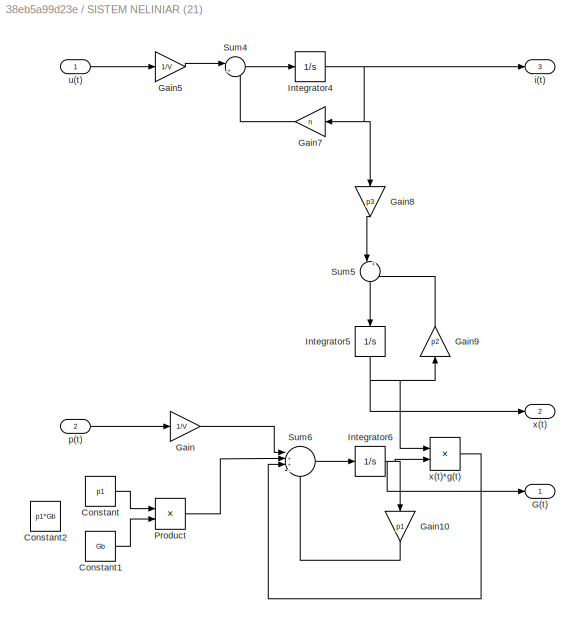
BLOCK [SubSystem] SISTEM NELINIAR (21)
BLOCK [Constant] SISTEM NELINIAR (21)/Constant
  Value = p1
BLOCK [Constant] SISTEM NELINIAR (21)/Constant1
  Value = Gb
BLOCK [Constant] SISTEM NELINIAR (21)/Constant2
  Value = p1*Gb
BLOCK [Outport] SISTEM NELINIAR (21)/G(t)
BLOCK [Gain] SISTEM NELINIAR (21)/Gain
  Gain = 1/V
BLOCK [Gain] SISTEM NELINIAR (21)/Gain10
  Gain = p1
  NameLocation = left
BLOCK [Gain] SISTEM NELINIAR (21)/Gain5
  Gain = 1/V
BLOCK [Gain] SISTEM NELINIAR (21)/Gain7
  Gain = n
  NameLocation = top
BLOCK [Gain] SISTEM NELINIAR (21)/Gain8
  Gain = p3
  NameLocation = left
BLOCK [Gain] SISTEM NELINIAR (21)/Gain9
  Gain = p2
  NameLocation = right
BLOCK [Integrator] SISTEM NELINIAR (21)/Integrator4
BLOCK [Integrator] SISTEM NELINIAR (21)/Integrator5
  NameLocation = left
BLOCK [Integrator] SISTEM NELINIAR (21)/Integrator6
  InitialCondition = G0
BLOCK [Product] SISTEM NELINIAR (21)/Product
BLOCK [Sum] SISTEM NELINIAR (21)/Sum4
  Inputs = |+-
BLOCK [Sum] SISTEM NELINIAR (21)/Sum5
  Inputs = |+-
  NameLocation = left
BLOCK [Sum] SISTEM NELINIAR (21)/Sum6
  Inputs = |++--
BLOCK [Outport] SISTEM NELINIAR (21)/i(t)
  Port = 3
BLOCK [Inport] SISTEM NELINIAR (21)/p(t)
  Port = 2
BLOCK [Inport] SISTEM NELINIAR (21)/u(t)
BLOCK [Outport] SISTEM NELINIAR (21)/x(t)
  Port = 2
BLOCK [Product] SISTEM NELINIAR (21)/x(t)*g(t)
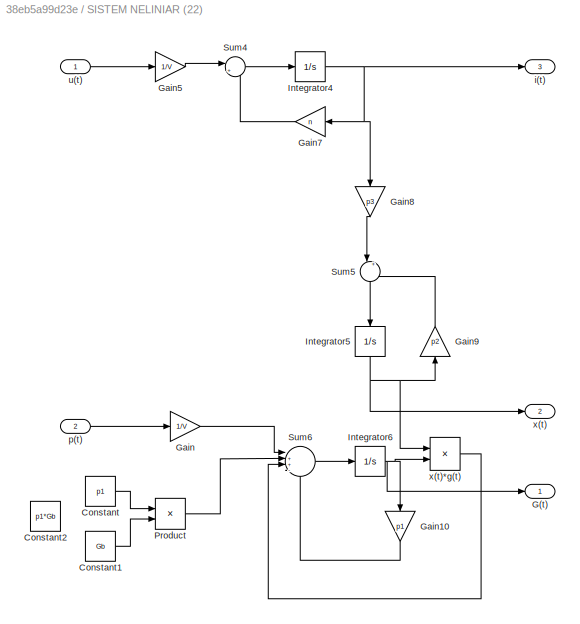
BLOCK [SubSystem] SISTEM NELINIAR (22)
BLOCK [Constant] SISTEM NELINIAR (22)/Constant
  Value = p1
BLOCK [Constant] SISTEM NELINIAR (22)/Constant1
  Value = Gb
BLOCK [Constant] SISTEM NELINIAR (22)/Constant2
  Value = p1*Gb
BLOCK [Outport] SISTEM NELINIAR (22)/G(t)
BLOCK [Gain] SISTEM NELINIAR (22)/Gain
  Gain = 1/V
BLOCK [Gain] SISTEM NELINIAR (22)/Gain10
  Gain = p1
  NameLocation = left
BLOCK [Gain] SISTEM NELINIAR (22)/Gain5
  Gain = 1/V
BLOCK [Gain] SISTEM NELINIAR (22)/Gain7
  Gain = n
  NameLocation = top
BLOCK [Gain] SISTEM NELINIAR (22)/Gain8
  Gain = p3
  NameLocation = left
BLOCK [Gain] SISTEM NELINIAR (22)/Gain9
  Gain = p2
  NameLocation = right
BLOCK [Integrator] SISTEM NELINIAR (22)/Integrator4
BLOCK [Integrator] SISTEM NELINIAR (22)/Integrator5
  NameLocation = left
BLOCK [Integrator] SISTEM NELINIAR (22)/Integrator6
  InitialCondition = G0
BLOCK [Product] SISTEM NELINIAR (22)/Product
BLOCK [Sum] SISTEM NELINIAR (22)/Sum4
  Inputs = |+-
BLOCK [Sum] SISTEM NELINIAR (22)/Sum5
  Inputs = |+-
  NameLocation = left
BLOCK [Sum] SISTEM NELINIAR (22)/Sum6
  Inputs = |++--
BLOCK [Outport] SISTEM NELINIAR (22)/i(t)
  Port = 3
BLOCK [Inport] SISTEM NELINIAR (22)/p(t)
  Port = 2
BLOCK [Inport] SISTEM NELINIAR (22)/u(t)
BLOCK [Outport] SISTEM NELINIAR (22)/x(t)
  Port = 2
BLOCK [Product] SISTEM NELINIAR (22)/x(t)*g(t)
BLOCK [Constant] SISTEM NELINIAR/Constant
  Value = p1
BLOCK [Constant] SISTEM NELINIAR/Constant1
  Value = Gb
BLOCK [Outport] SISTEM NELINIAR/G(t)
BLOCK [Gain] SISTEM NELINIAR/Gain
  Gain = 1/V
BLOCK [Gain] SISTEM NELINIAR/Gain10
  Gain = p1
  NameLocation = left
BLOCK [Gain] SISTEM NELINIAR/Gain5
  Gain = 1/V
BLOCK [Gain] SISTEM NELINIAR/Gain7
  Gain = n
  NameLocation = top
BLOCK [Gain] SISTEM NELINIAR/Gain8
  Gain = p3
  NameLocation = left
BLOCK [Gain] SISTEM NELINIAR/Gain9
  Gain = p2
  NameLocation = right
BLOCK [Integrator] SISTEM NELINIAR/Integrator4
BLOCK [Integrator] SISTEM NELINIAR/Integrator5
  NameLocation = left
BLOCK [Integrator] SISTEM NELINIAR/Integrator6
  InitialCondition = G0
BLOCK [Product] SISTEM NELINIAR/Product
BLOCK [Sum] SISTEM NELINIAR/Sum4
  Inputs = |+-
BLOCK [Sum] SISTEM NELINIAR/Sum5
  Inputs = |+-
  NameLocation = left
BLOCK [Sum] SISTEM NELINIAR/Sum6
  Inputs = |++--
BLOCK [Outport] SISTEM NELINIAR/i(t)
  Port = 3
BLOCK [Inport] SISTEM NELINIAR/p(t)
  Port = 2
BLOCK [Inport] SISTEM NELINIAR/u(t)
BLOCK [Outport] SISTEM NELINIAR/x(t)
  Port = 2
BLOCK [Product] SISTEM NELINIAR/x(t)*g(t)
BLOCK [SubSystem] SISTEM NELINIAR1
BLOCK [Constant] SISTEM NELINIAR1/Constant
  Value = p1
BLOCK [Constant] SISTEM NELINIAR1/Constant1
  Value = Gb
BLOCK [Constant] SISTEM NELINIAR1/Constant2
  Value = p1*Gb
BLOCK [Outport] SISTEM NELINIAR1/G(t)
BLOCK [Gain] SISTEM NELINIAR1/Gain
  Gain = 1/V
BLOCK [Gain] SISTEM NELINIAR1/Gain10
  Gain = p1
  NameLocation = left
BLOCK [Gain] SISTEM NELINIAR1/Gain5
  Gain = 1/V
BLOCK [Gain] SISTEM NELINIAR1/Gain7
  Gain = n
  NameLocation = top
BLOCK [Gain] SISTEM NELINIAR1/Gain8
  Gain = p3
  NameLocation = left
BLOCK [Gain] SISTEM NELINIAR1/Gain9
  Gain = p2
  NameLocation = right
BLOCK [Integrator] SISTEM NELINIAR1/Integrator4
BLOCK [Integrator] SISTEM NELINIAR1/Integrator5
  NameLocation = left
BLOCK [Integrator] SISTEM NELINIAR1/Integrator6
  InitialCondition = G0
BLOCK [Product] SISTEM NELINIAR1/Product
BLOCK [Sum] SISTEM NELINIAR1/Sum4
  Inputs = |+-
BLOCK [Sum] SISTEM NELINIAR1/Sum5
  Inputs = |+-
  NameLocation = left
BLOCK [Sum] SISTEM NELINIAR1/Sum6
  Inputs = |++--
BLOCK [Outport] SISTEM NELINIAR1/i(t)
  Port = 3
BLOCK [Inport] SISTEM NELINIAR1/p(t)
  Port = 2
BLOCK [Inport] SISTEM NELINIAR1/u(t)
BLOCK [Outport] SISTEM NELINIAR1/x(t)
  Port = 2
BLOCK [Product] SISTEM NELINIAR1/x(t)*g(t)
BLOCK [SubSystem] SISTEM NELINIAR10
BLOCK [Constant] SISTEM NELINIAR10/Constant
  Value = p1
BLOCK [Constant] SISTEM NELINIAR10/Constant1
  Value = Gb
BLOCK [Constant] SISTEM NELINIAR10/Constant2
  Value = p1*Gb
BLOCK [Outport] SISTEM NELINIAR10/G(t)
BLOCK [Gain] SISTEM NELINIAR10/Gain
  Gain = 1/V
BLOCK [Gain] SISTEM NELINIAR10/Gain10
  Gain = p1
  NameLocation = left
BLOCK [Gain] SISTEM NELINIAR10/Gain5
  Gain = 1/V
BLOCK [Gain] SISTEM NELINIAR10/Gain7
  Gain = n
  NameLocation = top
BLOCK [Gain] SISTEM NELINIAR10/Gain8
  Gain = p3
  NameLocation = left
BLOCK [Gain] SISTEM NELINIAR10/Gain9
  Gain = p2
  NameLocation = right
BLOCK [Integrator] SISTEM NELINIAR10/Integrator4
BLOCK [Integrator] SISTEM NELINIAR10/Integrator5
  NameLocation = left
BLOCK [Integrator] SISTEM NELINIAR10/Integrator6
  InitialCondition = G0
BLOCK [Product] SISTEM NELINIAR10/Product
BLOCK [Sum] SISTEM NELINIAR10/Sum4
  Inputs = |+-
BLOCK [Sum] SISTEM NELINIAR10/Sum5
  Inputs = |+-
  NameLocation = left
BLOCK [Sum] SISTEM NELINIAR10/Sum6
  Inputs = |++--
BLOCK [Outport] SISTEM NELINIAR10/i(t)
  Port = 3
BLOCK [Inport] SISTEM NELINIAR10/p(t)
  Port = 2
BLOCK [Inport] SISTEM NELINIAR10/u(t)
BLOCK [Outport] SISTEM NELINIAR10/x(t)
  Port = 2
BLOCK [Product] SISTEM NELINIAR10/x(t)*g(t)
BLOCK [SubSystem] SISTEM NELINIAR11
BLOCK [Constant] SISTEM NELINIAR11/Constant
  Value = p1
BLOCK [Constant] SISTEM NELINIAR11/Constant1
  Value = Gb
BLOCK [Constant] SISTEM NELINIAR11/Constant2
  Value = p1*Gb
BLOCK [Outport] SISTEM NELINIAR11/G(t)
BLOCK [Gain] SISTEM NELINIAR11/Gain
  Gain = 1/V
BLOCK [Gain] SISTEM NELINIAR11/Gain10
  Gain = p1
  NameLocation = left
BLOCK [Gain] SISTEM NELINIAR11/Gain5
  Gain = 1/V
BLOCK [Gain] SISTEM NELINIAR11/Gain7
  Gain = n
  NameLocation = top
BLOCK [Gain] SISTEM NELINIAR11/Gain8
  Gain = p3
  NameLocation = left
BLOCK [Gain] SISTEM NELINIAR11/Gain9
  Gain = p2
  NameLocation = right
BLOCK [Integrator] SISTEM NELINIAR11/Integrator4
BLOCK [Integrator] SISTEM NELINIAR11/Integrator5
  NameLocation = left
BLOCK [Integrator] SISTEM NELINIAR11/Integrator6
  InitialCondition = G0
BLOCK [Product] SISTEM NELINIAR11/Product
BLOCK [Sum] SISTEM NELINIAR11/Sum4
  Inputs = |+-
BLOCK [Sum] SISTEM NELINIAR11/Sum5
  Inputs = |+-
  NameLocation = left
BLOCK [Sum] SISTEM NELINIAR11/Sum6
  Inputs = |++--
BLOCK [Outport] SISTEM NELINIAR11/i(t)
  Port = 3
BLOCK [Inport] SISTEM NELINIAR11/p(t)
  Port = 2
BLOCK [Inport] SISTEM NELINIAR11/u(t)
BLOCK [Outport] SISTEM NELINIAR11/x(t)
  Port = 2
BLOCK [Product] SISTEM NELINIAR11/x(t)*g(t)
BLOCK [SubSystem] SISTEM NELINIAR12
BLOCK [Constant] SISTEM NELINIAR12/Constant
  Value = p1
BLOCK [Constant] SISTEM NELINIAR12/Constant1
  Value = Gb
BLOCK [Constant] SISTEM NELINIAR12/Constant2
  Value = p1*Gb
BLOCK [Outport] SISTEM NELINIAR12/G(t)
BLOCK [Gain] SISTEM NELINIAR12/Gain
  Gain = 1/V
BLOCK [Gain] SISTEM NELINIAR12/Gain10
  Gain = p1
  NameLocation = left
BLOCK [Gain] SISTEM NELINIAR12/Gain5
  Gain = 1/V
BLOCK [Gain] SISTEM NELINIAR12/Gain7
  Gain = n
  NameLocation = top
BLOCK [Gain] SISTEM NELINIAR12/Gain8
  Gain = p3
  NameLocation = left
BLOCK [Gain] SISTEM NELINIAR12/Gain9
  Gain = p2
  NameLocation = right
BLOCK [Integrator] SISTEM NELINIAR12/Integrator4
BLOCK [Integrator] SISTEM NELINIAR12/Integrator5
  NameLocation = left
BLOCK [Integrator] SISTEM NELINIAR12/Integrator6
  InitialCondition = G0
BLOCK [Product] SISTEM NELINIAR12/Product
BLOCK [Sum] SISTEM NELINIAR12/Sum4
  Inputs = |+-
BLOCK [Sum] SISTEM NELINIAR12/Sum5
  Inputs = |+-
  NameLocation = left
BLOCK [Sum] SISTEM NELINIAR12/Sum6
  Inputs = |++--
BLOCK [Outport] SISTEM NELINIAR12/i(t)
  Port = 3
BLOCK [Inport] SISTEM NELINIAR12/p(t)
  Port = 2
BLOCK [Inport] SISTEM NELINIAR12/u(t)
BLOCK [Outport] SISTEM NELINIAR12/x(t)
  Port = 2
BLOCK [Product] SISTEM NELINIAR12/x(t)*g(t)
BLOCK [SubSystem] SISTEM NELINIAR13
BLOCK [Constant] SISTEM NELINIAR13/Constant
  Value = p1
BLOCK [Constant] SISTEM NELINIAR13/Constant1
  Value = Gb
BLOCK [Constant] SISTEM NELINIAR13/Constant2
  Value = p1*Gb
BLOCK [Outport] SISTEM NELINIAR13/G(t)
BLOCK [Gain] SISTEM NELINIAR13/Gain
  Gain = 1/V
BLOCK [Gain] SISTEM NELINIAR13/Gain10
  Gain = p1
  NameLocation = left
BLOCK [Gain] SISTEM NELINIAR13/Gain5
  Gain = 1/V
BLOCK [Gain] SISTEM NELINIAR13/Gain7
  Gain = n
  NameLocation = top
BLOCK [Gain] SISTEM NELINIAR13/Gain8
  Gain = p3
  NameLocation = left
BLOCK [Gain] SISTEM NELINIAR13/Gain9
  Gain = p2
  NameLocation = right
BLOCK [Integrator] SISTEM NELINIAR13/Integrator4
BLOCK [Integrator] SISTEM NELINIAR13/Integrator5
  NameLocation = left
BLOCK [Integrator] SISTEM NELINIAR13/Integrator6
  InitialCondition = G0
BLOCK [Product] SISTEM NELINIAR13/Product
BLOCK [Sum] SISTEM NELINIAR13/Sum4
  Inputs = |+-
BLOCK [Sum] SISTEM NELINIAR13/Sum5
  Inputs = |+-
  NameLocation = left
BLOCK [Sum] SISTEM NELINIAR13/Sum6
  Inputs = |++--
BLOCK [Outport] SISTEM NELINIAR13/i(t)
  Port = 3
BLOCK [Inport] SISTEM NELINIAR13/p(t)
  Port = 2
BLOCK [Inport] SISTEM NELINIAR13/u(t)
BLOCK [Outport] SISTEM NELINIAR13/x(t)
  Port = 2
BLOCK [Product] SISTEM NELINIAR13/x(t)*g(t)
BLOCK [SubSystem] SISTEM NELINIAR14
BLOCK [Constant] SISTEM NELINIAR14/Constant
  Value = p1
BLOCK [Constant] SISTEM NELINIAR14/Constant1
  Value = Gb
BLOCK [Constant] SISTEM NELINIAR14/Constant2
  Value = p1*Gb
BLOCK [Outport] SISTEM NELINIAR14/G(t)
BLOCK [Gain] SISTEM NELINIAR14/Gain
  Gain = 1/V
BLOCK [Gain] SISTEM NELINIAR14/Gain10
  Gain = p1
  NameLocation = left
BLOCK [Gain] SISTEM NELINIAR14/Gain5
  Gain = 1/V
BLOCK [Gain] SISTEM NELINIAR14/Gain7
  Gain = n
  NameLocation = top
BLOCK [Gain] SISTEM NELINIAR14/Gain8
  Gain = p3
  NameLocation = left
BLOCK [Gain] SISTEM NELINIAR14/Gain9
  Gain = p2
  NameLocation = right
BLOCK [Integrator] SISTEM NELINIAR14/Integrator4
BLOCK [Integrator] SISTEM NELINIAR14/Integrator5
  NameLocation = left
BLOCK [Integrator] SISTEM NELINIAR14/Integrator6
  InitialCondition = G0
BLOCK [Product] SISTEM NELINIAR14/Product
BLOCK [Sum] SISTEM NELINIAR14/Sum4
  Inputs = |+-
BLOCK [Sum] SISTEM NELINIAR14/Sum5
  Inputs = |+-
  NameLocation = left
BLOCK [Sum] SISTEM NELINIAR14/Sum6
  Inputs = |++--
BLOCK [Outport] SISTEM NELINIAR14/i(t)
  Port = 3
BLOCK [Inport] SISTEM NELINIAR14/p(t)
  Port = 2
BLOCK [Inport] SISTEM NELINIAR14/u(t)
BLOCK [Outport] SISTEM NELINIAR14/x(t)
  Port = 2
BLOCK [Product] SISTEM NELINIAR14/x(t)*g(t)
BLOCK [SubSystem] SISTEM NELINIAR15
BLOCK [Constant] SISTEM NELINIAR15/Constant
  Value = p1
BLOCK [Constant] SISTEM NELINIAR15/Constant1
  Value = Gb
BLOCK [Constant] SISTEM NELINIAR15/Constant2
  Value = p1*Gb
BLOCK [Outport] SISTEM NELINIAR15/G(t)
BLOCK [Gain] SISTEM NELINIAR15/Gain
  Gain = 1/V
BLOCK [Gain] SISTEM NELINIAR15/Gain10
  Gain = p1
  NameLocation = left
BLOCK [Gain] SISTEM NELINIAR15/Gain5
  Gain = 1/V
BLOCK [Gain] SISTEM NELINIAR15/Gain7
  Gain = n
  NameLocation = top
BLOCK [Gain] SISTEM NELINIAR15/Gain8
  Gain = p3
  NameLocation = left
BLOCK [Gain] SISTEM NELINIAR15/Gain9
  Gain = p2
  NameLocation = right
BLOCK [Integrator] SISTEM NELINIAR15/Integrator4
BLOCK [Integrator] SISTEM NELINIAR15/Integrator5
  NameLocation = left
BLOCK [Integrator] SISTEM NELINIAR15/Integrator6
  InitialCondition = G0
BLOCK [Product] SISTEM NELINIAR15/Product
BLOCK [Sum] SISTEM NELINIAR15/Sum4
  Inputs = |+-
BLOCK [Sum] SISTEM NELINIAR15/Sum5
  Inputs = |+-
  NameLocation = left
BLOCK [Sum] SISTEM NELINIAR15/Sum6
  Inputs = |++--
BLOCK [Outport] SISTEM NELINIAR15/i(t)
  Port = 3
BLOCK [Inport] SISTEM NELINIAR15/p(t)
  Port = 2
BLOCK [Inport] SISTEM NELINIAR15/u(t)
BLOCK [Outport] SISTEM NELINIAR15/x(t)
  Port = 2
BLOCK [Product] SISTEM NELINIAR15/x(t)*g(t)
BLOCK [SubSystem] SISTEM NELINIAR16
BLOCK [Constant] SISTEM NELINIAR16/Constant
  Value = p1
BLOCK [Constant] SISTEM NELINIAR16/Constant1
  Value = Gb
BLOCK [Constant] SISTEM NELINIAR16/Constant2
  Value = p1*Gb
BLOCK [Outport] SISTEM NELINIAR16/G(t)
BLOCK [Gain] SISTEM NELINIAR16/Gain
  Gain = 1/V
BLOCK [Gain] SISTEM NELINIAR16/Gain10
  Gain = p1
  NameLocation = left
BLOCK [Gain] SISTEM NELINIAR16/Gain5
  Gain = 1/V
BLOCK [Gain] SISTEM NELINIAR16/Gain7
  Gain = n
  NameLocation = top
BLOCK [Gain] SISTEM NELINIAR16/Gain8
  Gain = p3
  NameLocation = left
BLOCK [Gain] SISTEM NELINIAR16/Gain9
  Gain = p2
  NameLocation = right
BLOCK [Integrator] SISTEM NELINIAR16/Integrator4
BLOCK [Integrator] SISTEM NELINIAR16/Integrator5
  NameLocation = left
BLOCK [Integrator] SISTEM NELINIAR16/Integrator6
  InitialCondition = G0
BLOCK [Product] SISTEM NELINIAR16/Product
BLOCK [Sum] SISTEM NELINIAR16/Sum4
  Inputs = |+-
BLOCK [Sum] SISTEM NELINIAR16/Sum5
  Inputs = |+-
  NameLocation = left
BLOCK [Sum] SISTEM NELINIAR16/Sum6
  Inputs = |++--
BLOCK [Outport] SISTEM NELINIAR16/i(t)
  Port = 3
BLOCK [Inport] SISTEM NELINIAR16/p(t)
  Port = 2
BLOCK [Inport] SISTEM NELINIAR16/u(t)
BLOCK [Outport] SISTEM NELINIAR16/x(t)
  Port = 2
BLOCK [Product] SISTEM NELINIAR16/x(t)*g(t)
BLOCK [SubSystem] SISTEM NELINIAR17
BLOCK [Constant] SISTEM NELINIAR17/Constant
  Value = p1
BLOCK [Constant] SISTEM NELINIAR17/Constant1
  Value = Gb
BLOCK [Constant] SISTEM NELINIAR17/Constant2
  Value = p1*Gb
BLOCK [Outport] SISTEM NELINIAR17/G(t)
BLOCK [Gain] SISTEM NELINIAR17/Gain
  Gain = 1/V
BLOCK [Gain] SISTEM NELINIAR17/Gain10
  Gain = p1
  NameLocation = left
BLOCK [Gain] SISTEM NELINIAR17/Gain5
  Gain = 1/V
BLOCK [Gain] SISTEM NELINIAR17/Gain7
  Gain = n
  NameLocation = top
BLOCK [Gain] SISTEM NELINIAR17/Gain8
  Gain = p3
  NameLocation = left
BLOCK [Gain] SISTEM NELINIAR17/Gain9
  Gain = p2
  NameLocation = right
BLOCK [Integrator] SISTEM NELINIAR17/Integrator4
BLOCK [Integrator] SISTEM NELINIAR17/Integrator5
  NameLocation = left
BLOCK [Integrator] SISTEM NELINIAR17/Integrator6
  InitialCondition = G0
BLOCK [Product] SISTEM NELINIAR17/Product
BLOCK [Sum] SISTEM NELINIAR17/Sum4
  Inputs = |+-
BLOCK [Sum] SISTEM NELINIAR17/Sum5
  Inputs = |+-
  NameLocation = left
BLOCK [Sum] SISTEM NELINIAR17/Sum6
  Inputs = |++--
BLOCK [Outport] SISTEM NELINIAR17/i(t)
  Port = 3
BLOCK [Inport] SISTEM NELINIAR17/p(t)
  Port = 2
BLOCK [Inport] SISTEM NELINIAR17/u(t)
BLOCK [Outport] SISTEM NELINIAR17/x(t)
  Port = 2
BLOCK [Product] SISTEM NELINIAR17/x(t)*g(t)
BLOCK [SubSystem] SISTEM NELINIAR18
BLOCK [Constant] SISTEM NELINIAR18/Constant
  Value = p1
BLOCK [Constant] SISTEM NELINIAR18/Constant1
  Value = Gb
BLOCK [Constant] SISTEM NELINIAR18/Constant2
  Value = p1*Gb
BLOCK [Outport] SISTEM NELINIAR18/G(t)
BLOCK [Gain] SISTEM NELINIAR18/Gain
  Gain = 1/V
BLOCK [Gain] SISTEM NELINIAR18/Gain10
  Gain = p1
  NameLocation = left
BLOCK [Gain] SISTEM NELINIAR18/Gain5
  Gain = 1/V
BLOCK [Gain] SISTEM NELINIAR18/Gain7
  Gain = n
  NameLocation = top
BLOCK [Gain] SISTEM NELINIAR18/Gain8
  Gain = p3
  NameLocation = left
BLOCK [Gain] SISTEM NELINIAR18/Gain9
  Gain = p2
  NameLocation = right
BLOCK [Integrator] SISTEM NELINIAR18/Integrator4
BLOCK [Integrator] SISTEM NELINIAR18/Integrator5
  NameLocation = left
BLOCK [Integrator] SISTEM NELINIAR18/Integrator6
  InitialCondition = G0
BLOCK [Product] SISTEM NELINIAR18/Product
BLOCK [Sum] SISTEM NELINIAR18/Sum4
  Inputs = |+-
BLOCK [Sum] SISTEM NELINIAR18/Sum5
  Inputs = |+-
  NameLocation = left
BLOCK [Sum] SISTEM NELINIAR18/Sum6
  Inputs = |++--
BLOCK [Outport] SISTEM NELINIAR18/i(t)
  Port = 3
BLOCK [Inport] SISTEM NELINIAR18/p(t)
  Port = 2
BLOCK [Inport] SISTEM NELINIAR18/u(t)
BLOCK [Outport] SISTEM NELINIAR18/x(t)
  Port = 2
BLOCK [Product] SISTEM NELINIAR18/x(t)*g(t)
BLOCK [SubSystem] SISTEM NELINIAR19
BLOCK [Constant] SISTEM NELINIAR19/Constant
  Value = p1
BLOCK [Constant] SISTEM NELINIAR19/Constant1
  Value = Gb
BLOCK [Constant] SISTEM NELINIAR19/Constant2
  Value = p1*Gb
BLOCK [Outport] SISTEM NELINIAR19/G(t)
BLOCK [Gain] SISTEM NELINIAR19/Gain
  Gain = 1/V
BLOCK [Gain] SISTEM NELINIAR19/Gain10
  Gain = p1
  NameLocation = left
BLOCK [Gain] SISTEM NELINIAR19/Gain5
  Gain = 1/V
BLOCK [Gain] SISTEM NELINIAR19/Gain7
  Gain = n
  NameLocation = top
BLOCK [Gain] SISTEM NELINIAR19/Gain8
  Gain = p3
  NameLocation = left
BLOCK [Gain] SISTEM NELINIAR19/Gain9
  Gain = p2
  NameLocation = right
BLOCK [Integrator] SISTEM NELINIAR19/Integrator4
BLOCK [Integrator] SISTEM NELINIAR19/Integrator5
  NameLocation = left
BLOCK [Integrator] SISTEM NELINIAR19/Integrator6
  InitialCondition = G0
BLOCK [Product] SISTEM NELINIAR19/Product
BLOCK [Sum] SISTEM NELINIAR19/Sum4
  Inputs = |+-
BLOCK [Sum] SISTEM NELINIAR19/Sum5
  Inputs = |+-
  NameLocation = left
BLOCK [Sum] SISTEM NELINIAR19/Sum6
  Inputs = |++--
BLOCK [Outport] SISTEM NELINIAR19/i(t)
  Port = 3
BLOCK [Inport] SISTEM NELINIAR19/p(t)
  Port = 2
BLOCK [Inport] SISTEM NELINIAR19/u(t)
BLOCK [Outport] SISTEM NELINIAR19/x(t)
  Port = 2
BLOCK [Product] SISTEM NELINIAR19/x(t)*g(t)
BLOCK [SubSystem] SISTEM NELINIAR2
BLOCK [Constant] SISTEM NELINIAR2/Constant
  Value = p1
BLOCK [Constant] SISTEM NELINIAR2/Constant1
  Value = Gb
BLOCK [Constant] SISTEM NELINIAR2/Constant2
  Value = p1*Gb
BLOCK [Outport] SISTEM NELINIAR2/G(t)
BLOCK [Gain] SISTEM NELINIAR2/Gain
  Gain = 1/V
BLOCK [Gain] SISTEM NELINIAR2/Gain10
  Gain = p1
  NameLocation = left
BLOCK [Gain] SISTEM NELINIAR2/Gain5
  Gain = 1/V
BLOCK [Gain] SISTEM NELINIAR2/Gain7
  Gain = n
  NameLocation = top
BLOCK [Gain] SISTEM NELINIAR2/Gain8
  Gain = p3
  NameLocation = left
BLOCK [Gain] SISTEM NELINIAR2/Gain9
  Gain = p2
  NameLocation = right
BLOCK [Integrator] SISTEM NELINIAR2/Integrator4
BLOCK [Integrator] SISTEM NELINIAR2/Integrator5
  NameLocation = left
BLOCK [Integrator] SISTEM NELINIAR2/Integrator6
  InitialCondition = G0
BLOCK [Product] SISTEM NELINIAR2/Product
BLOCK [Sum] SISTEM NELINIAR2/Sum4
  Inputs = |+-
BLOCK [Sum] SISTEM NELINIAR2/Sum5
  Inputs = |+-
  NameLocation = left
BLOCK [Sum] SISTEM NELINIAR2/Sum6
  Inputs = |++--
BLOCK [Outport] SISTEM NELINIAR2/i(t)
  Port = 3
BLOCK [Inport] SISTEM NELINIAR2/p(t)
  Port = 2
BLOCK [Inport] SISTEM NELINIAR2/u(t)
BLOCK [Outport] SISTEM NELINIAR2/x(t)
  Port = 2
BLOCK [Product] SISTEM NELINIAR2/x(t)*g(t)
BLOCK [SubSystem] SISTEM NELINIAR20
BLOCK [Constant] SISTEM NELINIAR20/Constant
  Value = p1
BLOCK [Constant] SISTEM NELINIAR20/Constant1
  Value = Gb
BLOCK [Constant] SISTEM NELINIAR20/Constant2
  Value = p1*Gb
BLOCK [Outport] SISTEM NELINIAR20/G(t)
BLOCK [Gain] SISTEM NELINIAR20/Gain
  Gain = 1/V
BLOCK [Gain] SISTEM NELINIAR20/Gain10
  Gain = p1
  NameLocation = left
BLOCK [Gain] SISTEM NELINIAR20/Gain5
  Gain = 1/V
BLOCK [Gain] SISTEM NELINIAR20/Gain7
  Gain = n
  NameLocation = top
BLOCK [Gain] SISTEM NELINIAR20/Gain8
  Gain = p3
  NameLocation = left
BLOCK [Gain] SISTEM NELINIAR20/Gain9
  Gain = p2
  NameLocation = right
BLOCK [Integrator] SISTEM NELINIAR20/Integrator4
BLOCK [Integrator] SISTEM NELINIAR20/Integrator5
  NameLocation = left
BLOCK [Integrator] SISTEM NELINIAR20/Integrator6
  InitialCondition = G0
BLOCK [Product] SISTEM NELINIAR20/Product
BLOCK [Sum] SISTEM NELINIAR20/Sum4
  Inputs = |+-
BLOCK [Sum] SISTEM NELINIAR20/Sum5
  Inputs = |+-
  NameLocation = left
BLOCK [Sum] SISTEM NELINIAR20/Sum6
  Inputs = |++--
BLOCK [Outport] SISTEM NELINIAR20/i(t)
  Port = 3
BLOCK [Inport] SISTEM NELINIAR20/p(t)
  Port = 2
BLOCK [Inport] SISTEM NELINIAR20/u(t)
BLOCK [Outport] SISTEM NELINIAR20/x(t)
  Port = 2
BLOCK [Product] SISTEM NELINIAR20/x(t)*g(t)
BLOCK [SubSystem] SISTEM NELINIAR21
BLOCK [Constant] SISTEM NELINIAR21/Constant
  Value = p1
BLOCK [Constant] SISTEM NELINIAR21/Constant1
  Value = Gb
BLOCK [Constant] SISTEM NELINIAR21/Constant2
  Value = p1*Gb
BLOCK [Outport] SISTEM NELINIAR21/G(t)
BLOCK [Gain] SISTEM NELINIAR21/Gain
  Gain = 1/V
BLOCK [Gain] SISTEM NELINIAR21/Gain10
  Gain = p1
  NameLocation = left
BLOCK [Gain] SISTEM NELINIAR21/Gain5
  Gain = 1/V
BLOCK [Gain] SISTEM NELINIAR21/Gain7
  Gain = n
  NameLocation = top
BLOCK [Gain] SISTEM NELINIAR21/Gain8
  Gain = p3
  NameLocation = left
BLOCK [Gain] SISTEM NELINIAR21/Gain9
  Gain = p2
  NameLocation = right
BLOCK [Integrator] SISTEM NELINIAR21/Integrator4
BLOCK [Integrator] SISTEM NELINIAR21/Integrator5
  NameLocation = left
BLOCK [Integrator] SISTEM NELINIAR21/Integrator6
  InitialCondition = G0
BLOCK [Product] SISTEM NELINIAR21/Product
BLOCK [Sum] SISTEM NELINIAR21/Sum4
  Inputs = |+-
BLOCK [Sum] SISTEM NELINIAR21/Sum5
  Inputs = |+-
  NameLocation = left
BLOCK [Sum] SISTEM NELINIAR21/Sum6
  Inputs = |++--
BLOCK [Outport] SISTEM NELINIAR21/i(t)
  Port = 3
BLOCK [Inport] SISTEM NELINIAR21/p(t)
  Port = 2
BLOCK [Inport] SISTEM NELINIAR21/u(t)
BLOCK [Outport] SISTEM NELINIAR21/x(t)
  Port = 2
BLOCK [Product] SISTEM NELINIAR21/x(t)*g(t)
BLOCK [SubSystem] SISTEM NELINIAR22
BLOCK [Constant] SISTEM NELINIAR22/Constant
  Value = p1
BLOCK [Constant] SISTEM NELINIAR22/Constant1
  Value = Gb
BLOCK [Constant] SISTEM NELINIAR22/Constant2
  Value = p1*Gb
BLOCK [Outport] SISTEM NELINIAR22/G(t)
BLOCK [Gain] SISTEM NELINIAR22/Gain
  Gain = 1/V
BLOCK [Gain] SISTEM NELINIAR22/Gain10
  Gain = p1
  NameLocation = left
BLOCK [Gain] SISTEM NELINIAR22/Gain5
  Gain = 1/V
BLOCK [Gain] SISTEM NELINIAR22/Gain7
  Gain = n
  NameLocation = top
BLOCK [Gain] SISTEM NELINIAR22/Gain8
  Gain = p3
  NameLocation = left
BLOCK [Gain] SISTEM NELINIAR22/Gain9
  Gain = p2
  NameLocation = right
BLOCK [Integrator] SISTEM NELINIAR22/Integrator4
BLOCK [Integrator] SISTEM NELINIAR22/Integrator5
  NameLocation = left
BLOCK [Integrator] SISTEM NELINIAR22/Integrator6
  InitialCondition = G0
BLOCK [Product] SISTEM NELINIAR22/Product
BLOCK [Sum] SISTEM NELINIAR22/Sum4
  Inputs = |+-
BLOCK [Sum] SISTEM NELINIAR22/Sum5
  Inputs = |+-
  NameLocation = left
BLOCK [Sum] SISTEM NELINIAR22/Sum6
  Inputs = |++--
BLOCK [Outport] SISTEM NELINIAR22/i(t)
  Port = 3
BLOCK [Inport] SISTEM NELINIAR22/p(t)
  Port = 2
BLOCK [Inport] SISTEM NELINIAR22/u(t)
BLOCK [Outport] SISTEM NELINIAR22/x(t)
  Port = 2
BLOCK [Product] SISTEM NELINIAR22/x(t)*g(t)
BLOCK [SubSystem] SISTEM NELINIAR23
BLOCK [Constant] SISTEM NELINIAR23/Constant
  Value = p1
BLOCK [Constant] SISTEM NELINIAR23/Constant1
  Value = Gb
BLOCK [Constant] SISTEM NELINIAR23/Constant2
  Value = p1*Gb
BLOCK [Outport] SISTEM NELINIAR23/G(t)
BLOCK [Gain] SISTEM NELINIAR23/Gain
  Gain = 1/V
BLOCK [Gain] SISTEM NELINIAR23/Gain10
  Gain = p1
  NameLocation = left
BLOCK [Gain] SISTEM NELINIAR23/Gain5
  Gain = 1/V
BLOCK [Gain] SISTEM NELINIAR23/Gain7
  Gain = n
  NameLocation = top
BLOCK [Gain] SISTEM NELINIAR23/Gain8
  Gain = p3
  NameLocation = left
BLOCK [Gain] SISTEM NELINIAR23/Gain9
  Gain = p2
  NameLocation = right
BLOCK [Integrator] SISTEM NELINIAR23/Integrator4
BLOCK [Integrator] SISTEM NELINIAR23/Integrator5
  NameLocation = left
BLOCK [Integrator] SISTEM NELINIAR23/Integrator6
  InitialCondition = G0
BLOCK [Product] SISTEM NELINIAR23/Product
BLOCK [Sum] SISTEM NELINIAR23/Sum4
  Inputs = |+-
BLOCK [Sum] SISTEM NELINIAR23/Sum5
  Inputs = |+-
  NameLocation = left
BLOCK [Sum] SISTEM NELINIAR23/Sum6
  Inputs = |++--
BLOCK [Outport] SISTEM NELINIAR23/i(t)
  Port = 3
BLOCK [Inport] SISTEM NELINIAR23/p(t)
  Port = 2
BLOCK [Inport] SISTEM NELINIAR23/u(t)
BLOCK [Outport] SISTEM NELINIAR23/x(t)
  Port = 2
BLOCK [Product] SISTEM NELINIAR23/x(t)*g(t)
BLOCK [SubSystem] SISTEM NELINIAR24
BLOCK [Constant] SISTEM NELINIAR24/Constant
  Value = p1
BLOCK [Constant] SISTEM NELINIAR24/Constant1
  Value = Gb
BLOCK [Constant] SISTEM NELINIAR24/Constant2
  Value = p1*Gb
BLOCK [Outport] SISTEM NELINIAR24/G(t)
BLOCK [Gain] SISTEM NELINIAR24/Gain
  Gain = 1/V
BLOCK [Gain] SISTEM NELINIAR24/Gain10
  Gain = p1
  NameLocation = left
BLOCK [Gain] SISTEM NELINIAR24/Gain5
  Gain = 1/V
BLOCK [Gain] SISTEM NELINIAR24/Gain7
  Gain = n
  NameLocation = top
BLOCK [Gain] SISTEM NELINIAR24/Gain8
  Gain = p3
  NameLocation = left
BLOCK [Gain] SISTEM NELINIAR24/Gain9
  Gain = p2
  NameLocation = right
BLOCK [Integrator] SISTEM NELINIAR24/Integrator4
BLOCK [Integrator] SISTEM NELINIAR24/Integrator5
  NameLocation = left
BLOCK [Integrator] SISTEM NELINIAR24/Integrator6
  InitialCondition = G0
BLOCK [Product] SISTEM NELINIAR24/Product
BLOCK [Sum] SISTEM NELINIAR24/Sum4
  Inputs = |+-
BLOCK [Sum] SISTEM NELINIAR24/Sum5
  Inputs = |+-
  NameLocation = left
BLOCK [Sum] SISTEM NELINIAR24/Sum6
  Inputs = |++--
BLOCK [Outport] SISTEM NELINIAR24/i(t)
  Port = 3
BLOCK [Inport] SISTEM NELINIAR24/p(t)
  Port = 2
BLOCK [Inport] SISTEM NELINIAR24/u(t)
BLOCK [Outport] SISTEM NELINIAR24/x(t)
  Port = 2
BLOCK [Product] SISTEM NELINIAR24/x(t)*g(t)
BLOCK [SubSystem] SISTEM NELINIAR25
BLOCK [Constant] SISTEM NELINIAR25/Constant
  Value = p1
BLOCK [Constant] SISTEM NELINIAR25/Constant1
  Value = Gb
BLOCK [Constant] SISTEM NELINIAR25/Constant2
  Value = p1*Gb
BLOCK [Outport] SISTEM NELINIAR25/G(t)
BLOCK [Gain] SISTEM NELINIAR25/Gain
  Gain = 1/V
BLOCK [Gain] SISTEM NELINIAR25/Gain10
  Gain = p1
  NameLocation = left
BLOCK [Gain] SISTEM NELINIAR25/Gain5
  Gain = 1/V
BLOCK [Gain] SISTEM NELINIAR25/Gain7
  Gain = n
  NameLocation = top
BLOCK [Gain] SISTEM NELINIAR25/Gain8
  Gain = p3
  NameLocation = left
BLOCK [Gain] SISTEM NELINIAR25/Gain9
  Gain = p2
  NameLocation = right
BLOCK [Integrator] SISTEM NELINIAR25/Integrator4
BLOCK [Integrator] SISTEM NELINIAR25/Integrator5
  NameLocation = left
BLOCK [Integrator] SISTEM NELINIAR25/Integrator6
  InitialCondition = G0
BLOCK [Product] SISTEM NELINIAR25/Product
BLOCK [Sum] SISTEM NELINIAR25/Sum4
  Inputs = |+-
BLOCK [Sum] SISTEM NELINIAR25/Sum5
  Inputs = |+-
  NameLocation = left
BLOCK [Sum] SISTEM NELINIAR25/Sum6
  Inputs = |++--
BLOCK [Outport] SISTEM NELINIAR25/i(t)
  Port = 3
BLOCK [Inport] SISTEM NELINIAR25/p(t)
  Port = 2
BLOCK [Inport] SISTEM NELINIAR25/u(t)
BLOCK [Outport] SISTEM NELINIAR25/x(t)
  Port = 2
BLOCK [Product] SISTEM NELINIAR25/x(t)*g(t)
BLOCK [SubSystem] SISTEM NELINIAR26
BLOCK [Constant] SISTEM NELINIAR26/Constant
  Value = p1
BLOCK [Constant] SISTEM NELINIAR26/Constant1
  Value = Gb
BLOCK [Constant] SISTEM NELINIAR26/Constant2
  Value = p1*Gb
BLOCK [Outport] SISTEM NELINIAR26/G(t)
BLOCK [Gain] SISTEM NELINIAR26/Gain
  Gain = 1/V
BLOCK [Gain] SISTEM NELINIAR26/Gain10
  Gain = p1
  NameLocation = left
BLOCK [Gain] SISTEM NELINIAR26/Gain5
  Gain = 1/V
BLOCK [Gain] SISTEM NELINIAR26/Gain7
  Gain = n
  NameLocation = top
BLOCK [Gain] SISTEM NELINIAR26/Gain8
  Gain = p3
  NameLocation = left
BLOCK [Gain] SISTEM NELINIAR26/Gain9
  Gain = p2
  NameLocation = right
BLOCK [Integrator] SISTEM NELINIAR26/Integrator4
BLOCK [Integrator] SISTEM NELINIAR26/Integrator5
  NameLocation = left
BLOCK [Integrator] SISTEM NELINIAR26/Integrator6
  InitialCondition = G0
BLOCK [Product] SISTEM NELINIAR26/Product
BLOCK [Sum] SISTEM NELINIAR26/Sum4
  Inputs = |+-
BLOCK [Sum] SISTEM NELINIAR26/Sum5
  Inputs = |+-
  NameLocation = left
BLOCK [Sum] SISTEM NELINIAR26/Sum6
  Inputs = |++--
BLOCK [Outport] SISTEM NELINIAR26/i(t)
  Port = 3
BLOCK [Inport] SISTEM NELINIAR26/p(t)
  Port = 2
BLOCK [Inport] SISTEM NELINIAR26/u(t)
BLOCK [Outport] SISTEM NELINIAR26/x(t)
  Port = 2
BLOCK [Product] SISTEM NELINIAR26/x(t)*g(t)
BLOCK [SubSystem] SISTEM NELINIAR27
BLOCK [Constant] SISTEM NELINIAR27/Constant
  Value = p1
BLOCK [Constant] SISTEM NELINIAR27/Constant1
  Value = Gb
BLOCK [Constant] SISTEM NELINIAR27/Constant2
  Value = p1*Gb
BLOCK [Outport] SISTEM NELINIAR27/G(t)
BLOCK [Gain] SISTEM NELINIAR27/Gain
  Gain = 1/V
BLOCK [Gain] SISTEM NELINIAR27/Gain10
  Gain = p1
  NameLocation = left
BLOCK [Gain] SISTEM NELINIAR27/Gain5
  Gain = 1/V
BLOCK [Gain] SISTEM NELINIAR27/Gain7
  Gain = n
  NameLocation = top
BLOCK [Gain] SISTEM NELINIAR27/Gain8
  Gain = p3
  NameLocation = left
BLOCK [Gain] SISTEM NELINIAR27/Gain9
  Gain = p2
  NameLocation = right
BLOCK [Integrator] SISTEM NELINIAR27/Integrator4
BLOCK [Integrator] SISTEM NELINIAR27/Integrator5
  NameLocation = left
BLOCK [Integrator] SISTEM NELINIAR27/Integrator6
  InitialCondition = G0
BLOCK [Product] SISTEM NELINIAR27/Product
BLOCK [Sum] SISTEM NELINIAR27/Sum4
  Inputs = |+-
BLOCK [Sum] SISTEM NELINIAR27/Sum5
  Inputs = |+-
  NameLocation = left
BLOCK [Sum] SISTEM NELINIAR27/Sum6
  Inputs = |++--
BLOCK [Outport] SISTEM NELINIAR27/i(t)
  Port = 3
BLOCK [Inport] SISTEM NELINIAR27/p(t)
  Port = 2
BLOCK [Inport] SISTEM NELINIAR27/u(t)
BLOCK [Outport] SISTEM NELINIAR27/x(t)
  Port = 2
BLOCK [Product] SISTEM NELINIAR27/x(t)*g(t)
BLOCK [SubSystem] SISTEM NELINIAR28
BLOCK [Constant] SISTEM NELINIAR28/Constant
  Value = p1
BLOCK [Constant] SISTEM NELINIAR28/Constant1
  Value = Gb
BLOCK [Constant] SISTEM NELINIAR28/Constant2
  Value = p1*Gb
BLOCK [Outport] SISTEM NELINIAR28/G(t)
BLOCK [Gain] SISTEM NELINIAR28/Gain
  Gain = 1/V
BLOCK [Gain] SISTEM NELINIAR28/Gain10
  Gain = p1
  NameLocation = left
BLOCK [Gain] SISTEM NELINIAR28/Gain5
  Gain = 1/V
BLOCK [Gain] SISTEM NELINIAR28/Gain7
  Gain = n
  NameLocation = top
BLOCK [Gain] SISTEM NELINIAR28/Gain8
  Gain = p3
  NameLocation = left
BLOCK [Gain] SISTEM NELINIAR28/Gain9
  Gain = p2
  NameLocation = right
BLOCK [Integrator] SISTEM NELINIAR28/Integrator4
BLOCK [Integrator] SISTEM NELINIAR28/Integrator5
  NameLocation = left
BLOCK [Integrator] SISTEM NELINIAR28/Integrator6
  InitialCondition = G0
BLOCK [Product] SISTEM NELINIAR28/Product
BLOCK [Sum] SISTEM NELINIAR28/Sum4
  Inputs = |+-
BLOCK [Sum] SISTEM NELINIAR28/Sum5
  Inputs = |+-
  NameLocation = left
BLOCK [Sum] SISTEM NELINIAR28/Sum6
  Inputs = |++--
BLOCK [Outport] SISTEM NELINIAR28/i(t)
  Port = 3
BLOCK [Inport] SISTEM NELINIAR28/p(t)
  Port = 2
BLOCK [Inport] SISTEM NELINIAR28/u(t)
BLOCK [Outport] SISTEM NELINIAR28/x(t)
  Port = 2
BLOCK [Product] SISTEM NELINIAR28/x(t)*g(t)
BLOCK [SubSystem] SISTEM NELINIAR29
BLOCK [Constant] SISTEM NELINIAR29/Constant
  Value = p1
BLOCK [Constant] SISTEM NELINIAR29/Constant1
  Value = Gb
BLOCK [Constant] SISTEM NELINIAR29/Constant2
  Value = p1*Gb
BLOCK [Outport] SISTEM NELINIAR29/G(t)
BLOCK [Gain] SISTEM NELINIAR29/Gain
  Gain = 1/V
BLOCK [Gain] SISTEM NELINIAR29/Gain10
  Gain = p1
  NameLocation = left
BLOCK [Gain] SISTEM NELINIAR29/Gain5
  Gain = 1/V
BLOCK [Gain] SISTEM NELINIAR29/Gain7
  Gain = n
  NameLocation = top
BLOCK [Gain] SISTEM NELINIAR29/Gain8
  Gain = p3
  NameLocation = left
BLOCK [Gain] SISTEM NELINIAR29/Gain9
  Gain = p2
  NameLocation = right
BLOCK [Integrator] SISTEM NELINIAR29/Integrator4
BLOCK [Integrator] SISTEM NELINIAR29/Integrator5
  NameLocation = left
BLOCK [Integrator] SISTEM NELINIAR29/Integrator6
  InitialCondition = G0
BLOCK [Product] SISTEM NELINIAR29/Product
BLOCK [Sum] SISTEM NELINIAR29/Sum4
  Inputs = |+-
BLOCK [Sum] SISTEM NELINIAR29/Sum5
  Inputs = |+-
  NameLocation = left
BLOCK [Sum] SISTEM NELINIAR29/Sum6
  Inputs = |++--
BLOCK [Outport] SISTEM NELINIAR29/i(t)
  Port = 3
BLOCK [Inport] SISTEM NELINIAR29/p(t)
  Port = 2
BLOCK [Inport] SISTEM NELINIAR29/u(t)
BLOCK [Outport] SISTEM NELINIAR29/x(t)
  Port = 2
BLOCK [Product] SISTEM NELINIAR29/x(t)*g(t)
BLOCK [SubSystem] SISTEM NELINIAR3
BLOCK [Constant] SISTEM NELINIAR3/Constant
  Value = p1
BLOCK [Constant] SISTEM NELINIAR3/Constant1
  Value = Gb
BLOCK [Constant] SISTEM NELINIAR3/Constant2
  Value = p1*Gb
BLOCK [Outport] SISTEM NELINIAR3/G(t)
BLOCK [Gain] SISTEM NELINIAR3/Gain
  Gain = 1/V
BLOCK [Gain] SISTEM NELINIAR3/Gain10
  Gain = p1
  NameLocation = left
BLOCK [Gain] SISTEM NELINIAR3/Gain5
  Gain = 1/V
BLOCK [Gain] SISTEM NELINIAR3/Gain7
  Gain = n
  NameLocation = top
BLOCK [Gain] SISTEM NELINIAR3/Gain8
  Gain = p3
  NameLocation = left
BLOCK [Gain] SISTEM NELINIAR3/Gain9
  Gain = p2
  NameLocation = right
BLOCK [Integrator] SISTEM NELINIAR3/Integrator4
BLOCK [Integrator] SISTEM NELINIAR3/Integrator5
  NameLocation = left
BLOCK [Integrator] SISTEM NELINIAR3/Integrator6
  InitialCondition = G0
BLOCK [Product] SISTEM NELINIAR3/Product
BLOCK [Sum] SISTEM NELINIAR3/Sum4
  Inputs = |+-
BLOCK [Sum] SISTEM NELINIAR3/Sum5
  Inputs = |+-
  NameLocation = left
BLOCK [Sum] SISTEM NELINIAR3/Sum6
  Inputs = |++--
BLOCK [Outport] SISTEM NELINIAR3/i(t)
  Port = 3
BLOCK [Inport] SISTEM NELINIAR3/p(t)
  Port = 2
BLOCK [Inport] SISTEM NELINIAR3/u(t)
BLOCK [Outport] SISTEM NELINIAR3/x(t)
  Port = 2
BLOCK [Product] SISTEM NELINIAR3/x(t)*g(t)
BLOCK [SubSystem] SISTEM NELINIAR30
BLOCK [Constant] SISTEM NELINIAR30/Constant
  Value = p1
BLOCK [Constant] SISTEM NELINIAR30/Constant1
  Value = Gb
BLOCK [Constant] SISTEM NELINIAR30/Constant2
  Value = p1*Gb
BLOCK [Outport] SISTEM NELINIAR30/G(t)
BLOCK [Gain] SISTEM NELINIAR30/Gain
  Gain = 1/V
BLOCK [Gain] SISTEM NELINIAR30/Gain10
  Gain = p1
  NameLocation = left
BLOCK [Gain] SISTEM NELINIAR30/Gain5
  Gain = 1/V
BLOCK [Gain] SISTEM NELINIAR30/Gain7
  Gain = n
  NameLocation = top
BLOCK [Gain] SISTEM NELINIAR30/Gain8
  Gain = p3
  NameLocation = left
BLOCK [Gain] SISTEM NELINIAR30/Gain9
  Gain = p2
  NameLocation = right
BLOCK [Integrator] SISTEM NELINIAR30/Integrator4
BLOCK [Integrator] SISTEM NELINIAR30/Integrator5
  NameLocation = left
BLOCK [Integrator] SISTEM NELINIAR30/Integrator6
  InitialCondition = G0
BLOCK [Product] SISTEM NELINIAR30/Product
BLOCK [Sum] SISTEM NELINIAR30/Sum4
  Inputs = |+-
BLOCK [Sum] SISTEM NELINIAR30/Sum5
  Inputs = |+-
  NameLocation = left
BLOCK [Sum] SISTEM NELINIAR30/Sum6
  Inputs = |++--
BLOCK [Outport] SISTEM NELINIAR30/i(t)
  Port = 3
BLOCK [Inport] SISTEM NELINIAR30/p(t)
  Port = 2
BLOCK [Inport] SISTEM NELINIAR30/u(t)
BLOCK [Outport] SISTEM NELINIAR30/x(t)
  Port = 2
BLOCK [Product] SISTEM NELINIAR30/x(t)*g(t)
BLOCK [SubSystem] SISTEM NELINIAR31
BLOCK [Constant] SISTEM NELINIAR31/Constant
  Value = p1
BLOCK [Constant] SISTEM NELINIAR31/Constant1
  Value = Gb
BLOCK [Constant] SISTEM NELINIAR31/Constant2
  Value = p1*Gb
BLOCK [Outport] SISTEM NELINIAR31/G(t)
BLOCK [Gain] SISTEM NELINIAR31/Gain
  Gain = 1/V
BLOCK [Gain] SISTEM NELINIAR31/Gain10
  Gain = p1
  NameLocation = left
BLOCK [Gain] SISTEM NELINIAR31/Gain5
  Gain = 1/V
BLOCK [Gain] SISTEM NELINIAR31/Gain7
  Gain = n
  NameLocation = top
BLOCK [Gain] SISTEM NELINIAR31/Gain8
  Gain = p3
  NameLocation = left
BLOCK [Gain] SISTEM NELINIAR31/Gain9
  Gain = p2
  NameLocation = right
BLOCK [Integrator] SISTEM NELINIAR31/Integrator4
BLOCK [Integrator] SISTEM NELINIAR31/Integrator5
  NameLocation = left
BLOCK [Integrator] SISTEM NELINIAR31/Integrator6
  InitialCondition = G0
BLOCK [Product] SISTEM NELINIAR31/Product
BLOCK [Sum] SISTEM NELINIAR31/Sum4
  Inputs = |+-
BLOCK [Sum] SISTEM NELINIAR31/Sum5
  Inputs = |+-
  NameLocation = left
BLOCK [Sum] SISTEM NELINIAR31/Sum6
  Inputs = |++--
BLOCK [Outport] SISTEM NELINIAR31/i(t)
  Port = 3
BLOCK [Inport] SISTEM NELINIAR31/p(t)
  Port = 2
BLOCK [Inport] SISTEM NELINIAR31/u(t)
BLOCK [Outport] SISTEM NELINIAR31/x(t)
  Port = 2
BLOCK [Product] SISTEM NELINIAR31/x(t)*g(t)
BLOCK [SubSystem] SISTEM NELINIAR32
BLOCK [Constant] SISTEM NELINIAR32/Constant
  Value = p1
BLOCK [Constant] SISTEM NELINIAR32/Constant1
  Value = Gb
BLOCK [Constant] SISTEM NELINIAR32/Constant2
  Value = p1*Gb
BLOCK [Outport] SISTEM NELINIAR32/G(t)
BLOCK [Gain] SISTEM NELINIAR32/Gain
  Gain = 1/V
BLOCK [Gain] SISTEM NELINIAR32/Gain10
  Gain = p1
  NameLocation = left
BLOCK [Gain] SISTEM NELINIAR32/Gain5
  Gain = 1/V
BLOCK [Gain] SISTEM NELINIAR32/Gain7
  Gain = n
  NameLocation = top
BLOCK [Gain] SISTEM NELINIAR32/Gain8
  Gain = p3
  NameLocation = left
BLOCK [Gain] SISTEM NELINIAR32/Gain9
  Gain = p2
  NameLocation = right
BLOCK [Integrator] SISTEM NELINIAR32/Integrator4
BLOCK [Integrator] SISTEM NELINIAR32/Integrator5
  NameLocation = left
BLOCK [Integrator] SISTEM NELINIAR32/Integrator6
  InitialCondition = G0
BLOCK [Product] SISTEM NELINIAR32/Product
BLOCK [Sum] SISTEM NELINIAR32/Sum4
  Inputs = |+-
BLOCK [Sum] SISTEM NELINIAR32/Sum5
  Inputs = |+-
  NameLocation = left
BLOCK [Sum] SISTEM NELINIAR32/Sum6
  Inputs = |++--
BLOCK [Outport] SISTEM NELINIAR32/i(t)
  Port = 3
BLOCK [Inport] SISTEM NELINIAR32/p(t)
  Port = 2
BLOCK [Inport] SISTEM NELINIAR32/u(t)
BLOCK [Outport] SISTEM NELINIAR32/x(t)
  Port = 2
BLOCK [Product] SISTEM NELINIAR32/x(t)*g(t)
BLOCK [SubSystem] SISTEM NELINIAR4
BLOCK [Constant] SISTEM NELINIAR4/Constant
  Value = p1
BLOCK [Constant] SISTEM NELINIAR4/Constant1
  Value = Gb
BLOCK [Constant] SISTEM NELINIAR4/Constant2
  Value = p1*Gb
BLOCK [Outport] SISTEM NELINIAR4/G(t)
BLOCK [Gain] SISTEM NELINIAR4/Gain
  Gain = 1/V
BLOCK [Gain] SISTEM NELINIAR4/Gain10
  Gain = p1
  NameLocation = left
BLOCK [Gain] SISTEM NELINIAR4/Gain5
  Gain = 1/V
BLOCK [Gain] SISTEM NELINIAR4/Gain7
  Gain = n
  NameLocation = top
BLOCK [Gain] SISTEM NELINIAR4/Gain8
  Gain = p3
  NameLocation = left
BLOCK [Gain] SISTEM NELINIAR4/Gain9
  Gain = p2
  NameLocation = right
BLOCK [Integrator] SISTEM NELINIAR4/Integrator4
BLOCK [Integrator] SISTEM NELINIAR4/Integrator5
  NameLocation = left
BLOCK [Integrator] SISTEM NELINIAR4/Integrator6
  InitialCondition = G0
BLOCK [Product] SISTEM NELINIAR4/Product
BLOCK [Sum] SISTEM NELINIAR4/Sum4
  Inputs = |+-
BLOCK [Sum] SISTEM NELINIAR4/Sum5
  Inputs = |+-
  NameLocation = left
BLOCK [Sum] SISTEM NELINIAR4/Sum6
  Inputs = |++--
BLOCK [Outport] SISTEM NELINIAR4/i(t)
  Port = 3
BLOCK [Inport] SISTEM NELINIAR4/p(t)
  Port = 2
BLOCK [Inport] SISTEM NELINIAR4/u(t)
BLOCK [Outport] SISTEM NELINIAR4/x(t)
  Port = 2
BLOCK [Product] SISTEM NELINIAR4/x(t)*g(t)
BLOCK [SubSystem] SISTEM NELINIAR5
BLOCK [Constant] SISTEM NELINIAR5/Constant
  Value = p1
BLOCK [Constant] SISTEM NELINIAR5/Constant1
  Value = Gb
BLOCK [Constant] SISTEM NELINIAR5/Constant2
  Value = p1*Gb
BLOCK [Outport] SISTEM NELINIAR5/G(t)
BLOCK [Gain] SISTEM NELINIAR5/Gain
  Gain = 1/V
BLOCK [Gain] SISTEM NELINIAR5/Gain10
  Gain = p1
  NameLocation = left
BLOCK [Gain] SISTEM NELINIAR5/Gain5
  Gain = 1/V
BLOCK [Gain] SISTEM NELINIAR5/Gain7
  Gain = n
  NameLocation = top
BLOCK [Gain] SISTEM NELINIAR5/Gain8
  Gain = p3
  NameLocation = left
BLOCK [Gain] SISTEM NELINIAR5/Gain9
  Gain = p2
  NameLocation = right
BLOCK [Integrator] SISTEM NELINIAR5/Integrator4
BLOCK [Integrator] SISTEM NELINIAR5/Integrator5
  NameLocation = left
BLOCK [Integrator] SISTEM NELINIAR5/Integrator6
  InitialCondition = G0
BLOCK [Product] SISTEM NELINIAR5/Product
BLOCK [Sum] SISTEM NELINIAR5/Sum4
  Inputs = |+-
BLOCK [Sum] SISTEM NELINIAR5/Sum5
  Inputs = |+-
  NameLocation = left
BLOCK [Sum] SISTEM NELINIAR5/Sum6
  Inputs = |++--
BLOCK [Outport] SISTEM NELINIAR5/i(t)
  Port = 3
BLOCK [Inport] SISTEM NELINIAR5/p(t)
  Port = 2
BLOCK [Inport] SISTEM NELINIAR5/u(t)
BLOCK [Outport] SISTEM NELINIAR5/x(t)
  Port = 2
BLOCK [Product] SISTEM NELINIAR5/x(t)*g(t)
BLOCK [SubSystem] SISTEM NELINIAR6
BLOCK [Constant] SISTEM NELINIAR6/Constant
  Value = p1
BLOCK [Constant] SISTEM NELINIAR6/Constant1
  Value = Gb
BLOCK [Constant] SISTEM NELINIAR6/Constant2
  Value = p1*Gb
BLOCK [Outport] SISTEM NELINIAR6/G(t)
BLOCK [Gain] SISTEM NELINIAR6/Gain
  Gain = 1/V
BLOCK [Gain] SISTEM NELINIAR6/Gain10
  Gain = p1
  NameLocation = left
BLOCK [Gain] SISTEM NELINIAR6/Gain5
  Gain = 1/V
BLOCK [Gain] SISTEM NELINIAR6/Gain7
  Gain = n
  NameLocation = top
BLOCK [Gain] SISTEM NELINIAR6/Gain8
  Gain = p3
  NameLocation = left
BLOCK [Gain] SISTEM NELINIAR6/Gain9
  Gain = p2
  NameLocation = right
BLOCK [Integrator] SISTEM NELINIAR6/Integrator4
BLOCK [Integrator] SISTEM NELINIAR6/Integrator5
  NameLocation = left
BLOCK [Integrator] SISTEM NELINIAR6/Integrator6
  InitialCondition = G0
BLOCK [Product] SISTEM NELINIAR6/Product
BLOCK [Sum] SISTEM NELINIAR6/Sum4
  Inputs = |+-
BLOCK [Sum] SISTEM NELINIAR6/Sum5
  Inputs = |+-
  NameLocation = left
BLOCK [Sum] SISTEM NELINIAR6/Sum6
  Inputs = |++--
BLOCK [Outport] SISTEM NELINIAR6/i(t)
  Port = 3
BLOCK [Inport] SISTEM NELINIAR6/p(t)
  Port = 2
BLOCK [Inport] SISTEM NELINIAR6/u(t)
BLOCK [Outport] SISTEM NELINIAR6/x(t)
  Port = 2
BLOCK [Product] SISTEM NELINIAR6/x(t)*g(t)
BLOCK [SubSystem] SISTEM NELINIAR7
BLOCK [Constant] SISTEM NELINIAR7/Constant
  Value = p1
BLOCK [Constant] SISTEM NELINIAR7/Constant1
  Value = Gb
BLOCK [Constant] SISTEM NELINIAR7/Constant2
  Value = p1*Gb
BLOCK [Outport] SISTEM NELINIAR7/G(t)
BLOCK [Gain] SISTEM NELINIAR7/Gain
  Gain = 1/V
BLOCK [Gain] SISTEM NELINIAR7/Gain10
  Gain = p1
  NameLocation = left
BLOCK [Gain] SISTEM NELINIAR7/Gain5
  Gain = 1/V
BLOCK [Gain] SISTEM NELINIAR7/Gain7
  Gain = n
  NameLocation = top
BLOCK [Gain] SISTEM NELINIAR7/Gain8
  Gain = p3
  NameLocation = left
BLOCK [Gain] SISTEM NELINIAR7/Gain9
  Gain = p2
  NameLocation = right
BLOCK [Integrator] SISTEM NELINIAR7/Integrator4
BLOCK [Integrator] SISTEM NELINIAR7/Integrator5
  NameLocation = left
BLOCK [Integrator] SISTEM NELINIAR7/Integrator6
  InitialCondition = G0
BLOCK [Product] SISTEM NELINIAR7/Product
BLOCK [Sum] SISTEM NELINIAR7/Sum4
  Inputs = |+-
BLOCK [Sum] SISTEM NELINIAR7/Sum5
  Inputs = |+-
  NameLocation = left
BLOCK [Sum] SISTEM NELINIAR7/Sum6
  Inputs = |++--
BLOCK [Outport] SISTEM NELINIAR7/i(t)
  Port = 3
BLOCK [Inport] SISTEM NELINIAR7/p(t)
  Port = 2
BLOCK [Inport] SISTEM NELINIAR7/u(t)
BLOCK [Outport] SISTEM NELINIAR7/x(t)
  Port = 2
BLOCK [Product] SISTEM NELINIAR7/x(t)*g(t)
BLOCK [SubSystem] SISTEM NELINIAR8
BLOCK [Constant] SISTEM NELINIAR8/Constant
  Value = p1
BLOCK [Constant] SISTEM NELINIAR8/Constant1
  Value = Gb
BLOCK [Constant] SISTEM NELINIAR8/Constant2
  Value = p1*Gb
BLOCK [Outport] SISTEM NELINIAR8/G(t)
BLOCK [Gain] SISTEM NELINIAR8/Gain
  Gain = 1/V
BLOCK [Gain] SISTEM NELINIAR8/Gain10
  Gain = p1
  NameLocation = left
BLOCK [Gain] SISTEM NELINIAR8/Gain5
  Gain = 1/V
BLOCK [Gain] SISTEM NELINIAR8/Gain7
  Gain = n
  NameLocation = top
BLOCK [Gain] SISTEM NELINIAR8/Gain8
  Gain = p3
  NameLocation = left
BLOCK [Gain] SISTEM NELINIAR8/Gain9
  Gain = p2
  NameLocation = right
BLOCK [Integrator] SISTEM NELINIAR8/Integrator4
BLOCK [Integrator] SISTEM NELINIAR8/Integrator5
  NameLocation = left
BLOCK [Integrator] SISTEM NELINIAR8/Integrator6
  InitialCondition = G0
BLOCK [Product] SISTEM NELINIAR8/Product
BLOCK [Sum] SISTEM NELINIAR8/Sum4
  Inputs = |+-
BLOCK [Sum] SISTEM NELINIAR8/Sum5
  Inputs = |+-
  NameLocation = left
BLOCK [Sum] SISTEM NELINIAR8/Sum6
  Inputs = |++--
BLOCK [Outport] SISTEM NELINIAR8/i(t)
  Port = 3
BLOCK [Inport] SISTEM NELINIAR8/p(t)
  Port = 2
BLOCK [Inport] SISTEM NELINIAR8/u(t)
BLOCK [Outport] SISTEM NELINIAR8/x(t)
  Port = 2
BLOCK [Product] SISTEM NELINIAR8/x(t)*g(t)
BLOCK [SubSystem] SISTEM NELINIAR9
BLOCK [Constant] SISTEM NELINIAR9/Constant
  Value = p1
BLOCK [Constant] SISTEM NELINIAR9/Constant1
  Value = Gb
BLOCK [Constant] SISTEM NELINIAR9/Constant2
  Value = p1*Gb
BLOCK [Outport] SISTEM NELINIAR9/G(t)
BLOCK [Gain] SISTEM NELINIAR9/Gain
  Gain = 1/V
BLOCK [Gain] SISTEM NELINIAR9/Gain10
  Gain = p1
  NameLocation = left
BLOCK [Gain] SISTEM NELINIAR9/Gain5
  Gain = 1/V
BLOCK [Gain] SISTEM NELINIAR9/Gain7
  Gain = n
  NameLocation = top
BLOCK [Gain] SISTEM NELINIAR9/Gain8
  Gain = p3
  NameLocation = left
BLOCK [Gain] SISTEM NELINIAR9/Gain9
  Gain = p2
  NameLocation = right
BLOCK [Integrator] SISTEM NELINIAR9/Integrator4
BLOCK [Integrator] SISTEM NELINIAR9/Integrator5
  NameLocation = left
BLOCK [Integrator] SISTEM NELINIAR9/Integrator6
  InitialCondition = G0
BLOCK [Product] SISTEM NELINIAR9/Product
BLOCK [Sum] SISTEM NELINIAR9/Sum4
  Inputs = |+-
BLOCK [Sum] SISTEM NELINIAR9/Sum5
  Inputs = |+-
  NameLocation = left
BLOCK [Sum] SISTEM NELINIAR9/Sum6
  Inputs = |++--
BLOCK [Outport] SISTEM NELINIAR9/i(t)
  Port = 3
BLOCK [Inport] SISTEM NELINIAR9/p(t)
  Port = 2
BLOCK [Inport] SISTEM NELINIAR9/u(t)
BLOCK [Outport] SISTEM NELINIAR9/x(t)
  Port = 2
BLOCK [Product] SISTEM NELINIAR9/x(t)*g(t)
BLOCK [Scope] Scope
  Floating = off
  NumInputPorts = 1
  ScopeSpecificationString = Simulink.scopes.TimeScopeBlockCfg('CurrentConfiguration', extmgr.ConfigurationSet(extmgr.Configuration('Core','General UI',true),extmgr.Configuration('Core','Source UI',true),extmgr.Configuration('Sources','WiredSimulink',true,'DataLoggingVariableName','ScopeData1'),extmgr.Configuration('Visuals','Time Domain',true,'SerializedDisplays',{struct('MinYLimReal','-535220261.0869','MaxYLimReal','5946891...<+1549ch>
BLOCK [Sum] Sum1
  Inputs = |+-
BLOCK [Sum] Sum10
  Inputs = |+-
BLOCK [Sum] Sum11
  Inputs = |+-
BLOCK [Sum] Sum12
  Inputs = |+-
BLOCK [Sum] Sum13
  Inputs = |+-
BLOCK [Sum] Sum14
  Inputs = |+-
BLOCK [Sum] Sum15
  Inputs = |+-
BLOCK [Sum] Sum16
  Inputs = |+-
BLOCK [Sum] Sum17
  Inputs = |+-
BLOCK [Sum] Sum18
  Inputs = |+-
BLOCK [Sum] Sum19
  Inputs = |+-
BLOCK [Sum] Sum2
  Inputs = |+-
BLOCK [Sum] Sum20
  Inputs = |+-
BLOCK [Sum] Sum21
  Inputs = |+-
BLOCK [Sum] Sum22
  Inputs = |+-
BLOCK [Sum] Sum23
  Inputs = |+-
BLOCK [Sum] Sum24
  Inputs = |+-
BLOCK [Sum] Sum25
  Inputs = |+-
BLOCK [Sum] Sum26
  Inputs = |+-
BLOCK [Sum] Sum27
  Inputs = |+-
BLOCK [Sum] Sum28
  Inputs = |+-
BLOCK [Sum] Sum29
  Inputs = |+-
BLOCK [Sum] Sum3
  Inputs = |+-
BLOCK [Sum] Sum30
  Inputs = |+-
BLOCK [Sum] Sum31
  Inputs = |+-
BLOCK [Sum] Sum32
  Inputs = |+-
BLOCK [Sum] Sum33
  Inputs = |+-
BLOCK [Sum] Sum34
  Inputs = |+-
BLOCK [Sum] Sum35
  Inputs = |+-
BLOCK [Sum] Sum36
  Inputs = |+-
BLOCK [Sum] Sum37
  Inputs = |+-
BLOCK [Sum] Sum38
  Inputs = |+-
BLOCK [Sum] Sum39
  Inputs = |+-
BLOCK [Sum] Sum4
  Inputs = |+-
BLOCK [Sum] Sum5
  Inputs = |+-
BLOCK [Sum] Sum6
  Inputs = |+-
BLOCK [Sum] Sum7
  Inputs = |+-
BLOCK [Sum] Sum8
  Inputs = |+-
BLOCK [Sum] Sum9
  Inputs = |+-
BLOCK [TransferFcn] Transfer Fcn
  Denominator = den
  Numerator = num
BLOCK [SubSystem] p(t) (11)
BLOCK [Clock] p(t) (11)/Clock1
BLOCK [Constant] p(t) (11)/Constant1
  Value = Dg
BLOCK [Constant] p(t) (11)/Constant2
  Value = Ag
BLOCK [Constant] p(t) (11)/Constant3
  Value = -1/tgM
BLOCK [Constant] p(t) (11)/Constant4
  Value = 1/(tgM^2)
BLOCK [Gain] p(t) (11)/Gain
  Gain = With_p
BLOCK [Math] p(t) (11)/Math Function
  SignedPower = on
BLOCK [Product] p(t) (11)/Product1
BLOCK [Product] p(t) (11)/Product3
  Inputs = 5
BLOCK [Outport] p(t) (11)/p(t)
BLOCK [SubSystem] p(t) (12)
BLOCK [Clock] p(t) (12)/Clock1
BLOCK [Constant] p(t) (12)/Constant1
  Value = Dg
BLOCK [Constant] p(t) (12)/Constant2
  Value = Ag
BLOCK [Constant] p(t) (12)/Constant3
  Value = -1/tgM
BLOCK [Constant] p(t) (12)/Constant4
  Value = 1/(tgM^2)
BLOCK [Gain] p(t) (12)/Gain
  Gain = With_p
BLOCK [Math] p(t) (12)/Math Function
  SignedPower = on
BLOCK [Product] p(t) (12)/Product1
BLOCK [Product] p(t) (12)/Product3
  Inputs = 5
BLOCK [Outport] p(t) (12)/p(t)
BLOCK [SubSystem] p(t) (21)
BLOCK [Clock] p(t) (21)/Clock1
BLOCK [Constant] p(t) (21)/Constant1
  Value = Dg
BLOCK [Constant] p(t) (21)/Constant2
  Value = Ag
BLOCK [Constant] p(t) (21)/Constant3
  Value = -1/tgM
BLOCK [Constant] p(t) (21)/Constant4
  Value = 1/(tgM^2)
BLOCK [Gain] p(t) (21)/Gain
  Gain = With_p
BLOCK [Math] p(t) (21)/Math Function
  SignedPower = on
BLOCK [Product] p(t) (21)/Product1
BLOCK [Product] p(t) (21)/Product3
  Inputs = 5
BLOCK [Outport] p(t) (21)/p(t)
BLOCK [SubSystem] p(t) (22)
BLOCK [Clock] p(t) (22)/Clock1
BLOCK [Constant] p(t) (22)/Constant1
  Value = Dg
BLOCK [Constant] p(t) (22)/Constant2
  Value = Ag
BLOCK [Constant] p(t) (22)/Constant3
  Value = -1/tgM
BLOCK [Constant] p(t) (22)/Constant4
  Value = 1/(tgM^2)
BLOCK [Gain] p(t) (22)/Gain
  Gain = With_p
BLOCK [Math] p(t) (22)/Math Function
  SignedPower = on
BLOCK [Product] p(t) (22)/Product1
BLOCK [Product] p(t) (22)/Product3
  Inputs = 5
BLOCK [Outport] p(t) (22)/p(t)
BLOCK [SubSystem] pertubatie individual
BLOCK [Clock] pertubatie individual/Clock1
BLOCK [Constant] pertubatie individual/Constant1
  Value = Dg
BLOCK [Constant] pertubatie individual/Constant2
  Value = Ag
BLOCK [Constant] pertubatie individual/Constant3
  Value = -1/tgM
BLOCK [Constant] pertubatie individual/Constant4
  Value = 1/(tgM^2)
BLOCK [Math] pertubatie individual/Math Function
  SignedPower = on
BLOCK [Product] pertubatie individual/Product1
BLOCK [Product] pertubatie individual/Product3
  Inputs = 5
BLOCK [Outport] pertubatie individual/p(t)
BLOCK [Scope] simulare perturbatie
  Floating = off
  NumInputPorts = 1
  ScopeSpecificationString = Simulink.scopes.TimeScopeBlockCfg('CurrentConfiguration', extmgr.ConfigurationSet(extmgr.Configuration('Core','General UI',true),extmgr.Configuration('Core','Source UI',true),extmgr.Configuration('Sources','WiredSimulink',true,'DataLoggingVariableName','ScopeData1'),extmgr.Configuration('Visuals','Time Domain',true,'SerializedDisplays',{struct('MinYLimReal','0','MaxYLimReal','150','YLabelReal','',...<+1532ch>
BLOCK [SubSystem] u(t)
BLOCK [SubSystem] u(t) (11)
BLOCK [Gain] u(t) (11)/Gain
  Gain = With_u
BLOCK [Step] u(t) (11)/Step
  After = Gref
  SampleTime = 0
  Time = 0
BLOCK [Outport] u(t) (11)/u(t)
BLOCK [SubSystem] u(t) (12)
BLOCK [Gain] u(t) (12)/Gain
  Gain = With_u
BLOCK [Step] u(t) (12)/Step
  After = Gref
  SampleTime = 0
  Time = 0
BLOCK [Outport] u(t) (12)/u(t)
BLOCK [SubSystem] u(t) (21)
BLOCK [Gain] u(t) (21)/Gain
  Gain = With_u
BLOCK [Step] u(t) (21)/Step
  After = Gref
  SampleTime = 0
  Time = 0
BLOCK [Outport] u(t) (21)/u(t)
BLOCK [SubSystem] u(t) (22)
BLOCK [Gain] u(t) (22)/Gain
  Gain = With_u
BLOCK [Step] u(t) (22)/Step
  After = Gref
  SampleTime = 0
  Time = 0
BLOCK [Outport] u(t) (22)/u(t)
BLOCK [Gain] u(t)/Gain
  Gain = With_u
BLOCK [Step] u(t)/Step
  After = Gref
  SampleTime = 0
  Time = 0
BLOCK [Outport] u(t)/u(t)
BLOCK [SubSystem] u(t)1
BLOCK [Gain] u(t)1/Gain
  Gain = With_u
BLOCK [Step] u(t)1/Step
  After = Gref
  SampleTime = 0
  Time = 0
BLOCK [Outport] u(t)1/u(t)
ANNOTATION (root): Scenariul A (G0) cu parametri calculati, fara limitare
ANNOTATION (root): Scenariul B cu parametri calculati, fara limitare
ANNOTATION SISTEM LINIARIZAT: G barat = Gb X barat = Xb
ANNOTATION SISTEM LINIARIZAT (11): G barat = Gb x barat = Xb
ANNOTATION SISTEM LINIARIZAT (12): G barat = Gb x barat = Xb
ANNOTATION SISTEM LINIARIZAT new1: G barat = Gb x barat = Xb
ANNOTATION SISTEM LINIARIZAT new2: G barat = Gb x barat = Xb
LINE GR(s) cu CMVK (11):1 -> SISTEM LINIARIZAT (11):1
LINE GR(s) cu CMVK (12):1 -> Limitator (12):1
LINE GR(s) cu CMVK (21):1 -> Limitator (21):1
LINE GR(s) cu CMVK (22):1 -> Limitator (22):1
LINE GR(s) plasare poli (12)1:1 -> Gain:1
LINE GR(s) plasare poli (12):1 -> Gain2:1
LINE Gain10:1 -> SISTEM NELINIAR8:1
LINE Gain11:1 -> SISTEM NELINIAR9:1
LINE Gain12:1 -> Limitator2:1
LINE Gain13:1 -> Limitator3:1
LINE Gain14:1 -> Limitator4:1
LINE Gain15:1 -> Limitator6:1
LINE Gain16:1 -> Limitator7:1
LINE Gain17:1 -> Limitator8:1
LINE Gain18:1 -> Limitator5:1
LINE Gain19:1 -> SISTEM NELINIAR25:1
LINE Gain1:1 -> SISTEM NELINIAR2:1
LINE Gain20:1 -> SISTEM NELINIAR31:1
LINE Gain21:1 -> SISTEM NELINIAR32:1
LINE Gain22:1 -> Limitator10:1
LINE Gain23:1 -> Limitator11:1
LINE Gain24:1 -> Limitator12:1
LINE Gain25:1 -> Limitator14:1
LINE Gain26:1 -> Limitator15:1
LINE Gain27:1 -> Limitator16:1
LINE Gain28:1 -> Limitator13:1
LINE Gain29:1 -> Limitator9:1
LINE Gain2:1 -> Limitator:1
LINE Gain30:1 -> SISTEM NELINIAR26:1
LINE Gain31:1 -> SISTEM NELINIAR27:1
LINE Gain32:1 -> SISTEM NELINIAR28:1
LINE Gain33:1 -> SISTEM NELINIAR29:1
LINE Gain34:1 -> SISTEM NELINIAR30:1
LINE Gain3:1 -> Limitator1:1
LINE Gain4:1 -> Gp(s):1
LINE Gain5:1 -> SISTEM NELINIAR3:1
LINE Gain6:1 -> SISTEM NELINIAR4:1
LINE Gain7:1 -> SISTEM NELINIAR5:1
LINE Gain8:1 -> SISTEM NELINIAR6:1
LINE Gain9:1 -> SISTEM NELINIAR7:1
LINE Gain:1 -> SISTEM LINIARIZAT new1:1
NET Gp(s):1 -> Plasare Poli:1, Sum3:2
LINE Gr(s):1 -> Gain4:1
LINE Intrare u(t) new/Gain:1 -> Intrare u(t) new/u(t):1
LINE Intrare u(t) new/Step:1 -> Intrare u(t) new/Gain:1
LINE Intrare u(t) new1/Gain:1 -> Intrare u(t) new1/u(t):1
LINE Intrare u(t) new1/Step:1 -> Intrare u(t) new1/Gain:1
LINE Intrare u(t) new10/Gain:1 -> Intrare u(t) new10/u(t):1
LINE Intrare u(t) new10/Step:1 -> Intrare u(t) new10/Gain:1
LINE Intrare u(t) new10:1 -> Sum15:1
LINE Intrare u(t) new11/Gain:1 -> Intrare u(t) new11/u(t):1
LINE Intrare u(t) new11/Step:1 -> Intrare u(t) new11/Gain:1
LINE Intrare u(t) new11:1 -> Sum17:1
LINE Intrare u(t) new12/Gain:1 -> Intrare u(t) new12/u(t):1
LINE Intrare u(t) new12/Step:1 -> Intrare u(t) new12/Gain:1
LINE Intrare u(t) new12:1 -> Sum18:1
LINE Intrare u(t) new13/Gain:1 -> Intrare u(t) new13/u(t):1
LINE Intrare u(t) new13/Step:1 -> Intrare u(t) new13/Gain:1
LINE Intrare u(t) new13:1 -> Sum19:1
LINE Intrare u(t) new14/Gain:1 -> Intrare u(t) new14/u(t):1
LINE Intrare u(t) new14/Step:1 -> Intrare u(t) new14/Gain:1
NET Intrare u(t) new14:1 -> Plasare poli new3:1, Sum23:1
LINE Intrare u(t) new15/Gain:1 -> Intrare u(t) new15/u(t):1
LINE Intrare u(t) new15/Step:1 -> Intrare u(t) new15/Gain:1
LINE Intrare u(t) new15:1 -> Sum20:1
LINE Intrare u(t) new16/Gain:1 -> Intrare u(t) new16/u(t):1
LINE Intrare u(t) new16/Step:1 -> Intrare u(t) new16/Gain:1
LINE Intrare u(t) new16:1 -> Sum21:1
LINE Intrare u(t) new17/Gain:1 -> Intrare u(t) new17/u(t):1
LINE Intrare u(t) new17/Step:1 -> Intrare u(t) new17/Gain:1
LINE Intrare u(t) new17:1 -> Sum22:1
LINE Intrare u(t) new18/Gain:1 -> Intrare u(t) new18/u(t):1
LINE Intrare u(t) new18/Step:1 -> Intrare u(t) new18/Gain:1
NET Intrare u(t) new18:1 -> Plasare poli new4:1, Sum34:1
LINE Intrare u(t) new19/Gain:1 -> Intrare u(t) new19/u(t):1
LINE Intrare u(t) new19/Step:1 -> Intrare u(t) new19/Gain:1
LINE Intrare u(t) new19:1 -> Sum29:1
NET Intrare u(t) new1:1 -> Plasare poli new:1, Sum2:1
LINE Intrare u(t) new2/Gain:1 -> Intrare u(t) new2/u(t):1
LINE Intrare u(t) new2/Step:1 -> Intrare u(t) new2/Gain:1
LINE Intrare u(t) new20/Gain:1 -> Intrare u(t) new20/u(t):1
LINE Intrare u(t) new20/Step:1 -> Intrare u(t) new20/Gain:1
LINE Intrare u(t) new20:1 -> Sum31:1
LINE Intrare u(t) new21/Gain:1 -> Intrare u(t) new21/u(t):1
LINE Intrare u(t) new21/Step:1 -> Intrare u(t) new21/Gain:1
LINE Intrare u(t) new21:1 -> Sum32:1
LINE Intrare u(t) new22/Gain:1 -> Intrare u(t) new22/u(t):1
LINE Intrare u(t) new22/Step:1 -> Intrare u(t) new22/Gain:1
LINE Intrare u(t) new22:1 -> Sum33:1
LINE Intrare u(t) new23/Gain:1 -> Intrare u(t) new23/u(t):1
LINE Intrare u(t) new23/Step:1 -> Intrare u(t) new23/Gain:1
NET Intrare u(t) new23:1 -> Plasare poli new7:1, Sum38:1
LINE Intrare u(t) new24/Gain:1 -> Intrare u(t) new24/u(t):1
LINE Intrare u(t) new24/Step:1 -> Intrare u(t) new24/Gain:1
LINE Intrare u(t) new24:1 -> Sum35:1
LINE Intrare u(t) new25/Gain:1 -> Intrare u(t) new25/u(t):1
LINE Intrare u(t) new25/Step:1 -> Intrare u(t) new25/Gain:1
LINE Intrare u(t) new25:1 -> Sum36:1
LINE Intrare u(t) new26/Gain:1 -> Intrare u(t) new26/u(t):1
LINE Intrare u(t) new26/Step:1 -> Intrare u(t) new26/Gain:1
LINE Intrare u(t) new26:1 -> Sum37:1
LINE Intrare u(t) new27/Gain:1 -> Intrare u(t) new27/u(t):1
LINE Intrare u(t) new27/Step:1 -> Intrare u(t) new27/Gain:1
NET Intrare u(t) new27:1 -> Plasare poli new5:1, Sum39:1
LINE Intrare u(t) new28/Gain:1 -> Intrare u(t) new28/u(t):1
LINE Intrare u(t) new28/Step:1 -> Intrare u(t) new28/Gain:1
LINE Intrare u(t) new28:1 -> Sum24:1
LINE Intrare u(t) new29/Gain:1 -> Intrare u(t) new29/u(t):1
LINE Intrare u(t) new29/Step:1 -> Intrare u(t) new29/Gain:1
LINE Intrare u(t) new29:1 -> Sum25:1
NET Intrare u(t) new2:1 -> Plasare poli1:1, Sum8:1
LINE Intrare u(t) new3/Gain:1 -> Intrare u(t) new3/u(t):1
LINE Intrare u(t) new3/Step:1 -> Intrare u(t) new3/Gain:1
LINE Intrare u(t) new30/Gain:1 -> Intrare u(t) new30/u(t):1
LINE Intrare u(t) new30/Step:1 -> Intrare u(t) new30/Gain:1
LINE Intrare u(t) new30:1 -> Sum26:1
LINE Intrare u(t) new31/Gain:1 -> Intrare u(t) new31/u(t):1
LINE Intrare u(t) new31/Step:1 -> Intrare u(t) new31/Gain:1
NET Intrare u(t) new31:1 -> Plasare poli new6:1, Sum30:1
LINE Intrare u(t) new32/Gain:1 -> Intrare u(t) new32/u(t):1
LINE Intrare u(t) new32/Step:1 -> Intrare u(t) new32/Gain:1
LINE Intrare u(t) new32:1 -> Sum27:1
LINE Intrare u(t) new33/Gain:1 -> Intrare u(t) new33/u(t):1
LINE Intrare u(t) new33/Step:1 -> Intrare u(t) new33/Gain:1
LINE Intrare u(t) new33:1 -> Sum28:1
NET Intrare u(t) new3:1 -> Plasare poli new1:1, Sum9:1
LINE Intrare u(t) new4/Gain:1 -> Intrare u(t) new4/u(t):1
LINE Intrare u(t) new4/Step:1 -> Intrare u(t) new4/Gain:1
LINE Intrare u(t) new4:1 -> Sum10:1
LINE Intrare u(t) new5/Gain:1 -> Intrare u(t) new5/u(t):1
LINE Intrare u(t) new5/Step:1 -> Intrare u(t) new5/Gain:1
LINE Intrare u(t) new5:1 -> Sum11:1
LINE Intrare u(t) new6/Gain:1 -> Intrare u(t) new6/u(t):1
LINE Intrare u(t) new6/Step:1 -> Intrare u(t) new6/Gain:1
LINE Intrare u(t) new6:1 -> Sum12:1
LINE Intrare u(t) new7/Gain:1 -> Intrare u(t) new7/u(t):1
LINE Intrare u(t) new7/Step:1 -> Intrare u(t) new7/Gain:1
NET Intrare u(t) new7:1 -> Plasare poli new2:1, Sum16:1
LINE Intrare u(t) new8/Gain:1 -> Intrare u(t) new8/u(t):1
LINE Intrare u(t) new8/Step:1 -> Intrare u(t) new8/Gain:1
LINE Intrare u(t) new8:1 -> Sum13:1
LINE Intrare u(t) new9/Gain:1 -> Intrare u(t) new9/u(t):1
LINE Intrare u(t) new9/Step:1 -> Intrare u(t) new9/Gain:1
LINE Intrare u(t) new9:1 -> Sum14:1
NET Intrare u(t) new:1 -> Plasare poli:1, Sum1:1
LINE Intrare u(t)/Gain:1 -> Intrare u(t)/u(t):1
LINE Intrare u(t)/Step:1 -> Intrare u(t)/Gain:1
NET Intrare u(t):1 -> Ref, SN, SL:1, SISTEM LINIARIZAT:1, SISTEM NELINIAR:1
LINE Limitator (12):1 -> SISTEM LINIARIZAT (12):1
LINE Limitator (21):1 -> SISTEM NELINIAR (21):1
LINE Limitator (22):1 -> SISTEM NELINIAR (22):1
LINE Limitator10:1 -> SISTEM NELINIAR18:1
LINE Limitator11:1 -> SISTEM NELINIAR19:1
LINE Limitator12:1 -> SISTEM NELINIAR20:1
LINE Limitator13:1 -> SISTEM NELINIAR21:1
LINE Limitator14:1 -> SISTEM NELINIAR22:1
LINE Limitator15:1 -> SISTEM NELINIAR23:1
LINE Limitator16:1 -> SISTEM NELINIAR24:1
LINE Limitator1:1 -> SISTEM NELINIAR1:1
LINE Limitator2:1 -> SISTEM NELINIAR10:1
LINE Limitator3:1 -> SISTEM NELINIAR11:1
LINE Limitator4:1 -> SISTEM NELINIAR12:1
LINE Limitator5:1 -> SISTEM NELINIAR13:1
LINE Limitator6:1 -> SISTEM NELINIAR14:1
LINE Limitator7:1 -> SISTEM NELINIAR15:1
LINE Limitator8:1 -> SISTEM NELINIAR16:1
LINE Limitator9:1 -> SISTEM NELINIAR17:1
LINE Limitator:1 -> SISTEM LINIARIZAT new2:1
NET Perturbatie p(t) new/Clock1:1 -> Perturbatie p(t) new/Product1:1, Perturbatie p(t) new/Product3:5
LINE Perturbatie p(t) new/Constant1:1 -> Perturbatie p(t) new/Product3:1
LINE Perturbatie p(t) new/Constant2:1 -> Perturbatie p(t) new/Product3:2
LINE Perturbatie p(t) new/Constant3:1 -> Perturbatie p(t) new/Product1:2
LINE Perturbatie p(t) new/Constant4:1 -> Perturbatie p(t) new/Product3:4
LINE Perturbatie p(t) new/Gain:1 -> Perturbatie p(t) new/p(t):1
LINE Perturbatie p(t) new/Math Function:1 -> Perturbatie p(t) new/Product3:3
LINE Perturbatie p(t) new/Product1:1 -> Perturbatie p(t) new/Math Function:1
LINE Perturbatie p(t) new/Product3:1 -> Perturbatie p(t) new/Gain:1
NET Perturbatie p(t) new1/Clock1:1 -> Perturbatie p(t) new1/Product1:1, Perturbatie p(t) new1/Product3:5
LINE Perturbatie p(t) new1/Constant1:1 -> Perturbatie p(t) new1/Product3:1
LINE Perturbatie p(t) new1/Constant2:1 -> Perturbatie p(t) new1/Product3:2
LINE Perturbatie p(t) new1/Constant3:1 -> Perturbatie p(t) new1/Product1:2
LINE Perturbatie p(t) new1/Constant4:1 -> Perturbatie p(t) new1/Product3:4
LINE Perturbatie p(t) new1/Gain:1 -> Perturbatie p(t) new1/p(t):1
LINE Perturbatie p(t) new1/Math Function:1 -> Perturbatie p(t) new1/Product3:3
LINE Perturbatie p(t) new1/Product1:1 -> Perturbatie p(t) new1/Math Function:1
LINE Perturbatie p(t) new1/Product3:1 -> Perturbatie p(t) new1/Gain:1
NET Perturbatie p(t) new10/Clock1:1 -> Perturbatie p(t) new10/Product1:1, Perturbatie p(t) new10/Product3:5
LINE Perturbatie p(t) new10/Constant1:1 -> Perturbatie p(t) new10/Product3:1
LINE Perturbatie p(t) new10/Constant2:1 -> Perturbatie p(t) new10/Product3:2
LINE Perturbatie p(t) new10/Constant3:1 -> Perturbatie p(t) new10/Product1:2
LINE Perturbatie p(t) new10/Constant4:1 -> Perturbatie p(t) new10/Product3:4
LINE Perturbatie p(t) new10/Gain:1 -> Perturbatie p(t) new10/p(t):1
LINE Perturbatie p(t) new10/Math Function:1 -> Perturbatie p(t) new10/Product3:3
LINE Perturbatie p(t) new10/Product1:1 -> Perturbatie p(t) new10/Math Function:1
LINE Perturbatie p(t) new10/Product3:1 -> Perturbatie p(t) new10/Gain:1
LINE Perturbatie p(t) new10:1 -> SISTEM NELINIAR9:2
NET Perturbatie p(t) new11/Clock1:1 -> Perturbatie p(t) new11/Product1:1, Perturbatie p(t) new11/Product3:5
LINE Perturbatie p(t) new11/Constant1:1 -> Perturbatie p(t) new11/Product3:1
LINE Perturbatie p(t) new11/Constant2:1 -> Perturbatie p(t) new11/Product3:2
LINE Perturbatie p(t) new11/Constant3:1 -> Perturbatie p(t) new11/Product1:2
LINE Perturbatie p(t) new11/Constant4:1 -> Perturbatie p(t) new11/Product3:4
LINE Perturbatie p(t) new11/Gain:1 -> Perturbatie p(t) new11/p(t):1
LINE Perturbatie p(t) new11/Math Function:1 -> Perturbatie p(t) new11/Product3:3
LINE Perturbatie p(t) new11/Product1:1 -> Perturbatie p(t) new11/Math Function:1
LINE Perturbatie p(t) new11/Product3:1 -> Perturbatie p(t) new11/Gain:1
LINE Perturbatie p(t) new11:1 -> SISTEM NELINIAR10:2
NET Perturbatie p(t) new12/Clock1:1 -> Perturbatie p(t) new12/Product1:1, Perturbatie p(t) new12/Product3:5
LINE Perturbatie p(t) new12/Constant1:1 -> Perturbatie p(t) new12/Product3:1
LINE Perturbatie p(t) new12/Constant2:1 -> Perturbatie p(t) new12/Product3:2
LINE Perturbatie p(t) new12/Constant3:1 -> Perturbatie p(t) new12/Product1:2
LINE Perturbatie p(t) new12/Constant4:1 -> Perturbatie p(t) new12/Product3:4
LINE Perturbatie p(t) new12/Gain:1 -> Perturbatie p(t) new12/p(t):1
LINE Perturbatie p(t) new12/Math Function:1 -> Perturbatie p(t) new12/Product3:3
LINE Perturbatie p(t) new12/Product1:1 -> Perturbatie p(t) new12/Math Function:1
LINE Perturbatie p(t) new12/Product3:1 -> Perturbatie p(t) new12/Gain:1
LINE Perturbatie p(t) new12:1 -> SISTEM NELINIAR11:2
NET Perturbatie p(t) new13/Clock1:1 -> Perturbatie p(t) new13/Product1:1, Perturbatie p(t) new13/Product3:5
LINE Perturbatie p(t) new13/Constant1:1 -> Perturbatie p(t) new13/Product3:1
LINE Perturbatie p(t) new13/Constant2:1 -> Perturbatie p(t) new13/Product3:2
LINE Perturbatie p(t) new13/Constant3:1 -> Perturbatie p(t) new13/Product1:2
LINE Perturbatie p(t) new13/Constant4:1 -> Perturbatie p(t) new13/Product3:4
LINE Perturbatie p(t) new13/Gain:1 -> Perturbatie p(t) new13/p(t):1
LINE Perturbatie p(t) new13/Math Function:1 -> Perturbatie p(t) new13/Product3:3
LINE Perturbatie p(t) new13/Product1:1 -> Perturbatie p(t) new13/Math Function:1
LINE Perturbatie p(t) new13/Product3:1 -> Perturbatie p(t) new13/Gain:1
LINE Perturbatie p(t) new13:1 -> SISTEM NELINIAR12:2
NET Perturbatie p(t) new14/Clock1:1 -> Perturbatie p(t) new14/Product1:1, Perturbatie p(t) new14/Product3:5
LINE Perturbatie p(t) new14/Constant1:1 -> Perturbatie p(t) new14/Product3:1
LINE Perturbatie p(t) new14/Constant2:1 -> Perturbatie p(t) new14/Product3:2
LINE Perturbatie p(t) new14/Constant3:1 -> Perturbatie p(t) new14/Product1:2
LINE Perturbatie p(t) new14/Constant4:1 -> Perturbatie p(t) new14/Product3:4
LINE Perturbatie p(t) new14/Gain:1 -> Perturbatie p(t) new14/p(t):1
LINE Perturbatie p(t) new14/Math Function:1 -> Perturbatie p(t) new14/Product3:3
LINE Perturbatie p(t) new14/Product1:1 -> Perturbatie p(t) new14/Math Function:1
LINE Perturbatie p(t) new14/Product3:1 -> Perturbatie p(t) new14/Gain:1
LINE Perturbatie p(t) new14:1 -> SISTEM NELINIAR13:2
NET Perturbatie p(t) new15/Clock1:1 -> Perturbatie p(t) new15/Product1:1, Perturbatie p(t) new15/Product3:5
LINE Perturbatie p(t) new15/Constant1:1 -> Perturbatie p(t) new15/Product3:1
LINE Perturbatie p(t) new15/Constant2:1 -> Perturbatie p(t) new15/Product3:2
LINE Perturbatie p(t) new15/Constant3:1 -> Perturbatie p(t) new15/Product1:2
LINE Perturbatie p(t) new15/Constant4:1 -> Perturbatie p(t) new15/Product3:4
LINE Perturbatie p(t) new15/Gain:1 -> Perturbatie p(t) new15/p(t):1
LINE Perturbatie p(t) new15/Math Function:1 -> Perturbatie p(t) new15/Product3:3
LINE Perturbatie p(t) new15/Product1:1 -> Perturbatie p(t) new15/Math Function:1
LINE Perturbatie p(t) new15/Product3:1 -> Perturbatie p(t) new15/Gain:1
LINE Perturbatie p(t) new15:1 -> SISTEM NELINIAR14:2
NET Perturbatie p(t) new16/Clock1:1 -> Perturbatie p(t) new16/Product1:1, Perturbatie p(t) new16/Product3:5
LINE Perturbatie p(t) new16/Constant1:1 -> Perturbatie p(t) new16/Product3:1
LINE Perturbatie p(t) new16/Constant2:1 -> Perturbatie p(t) new16/Product3:2
LINE Perturbatie p(t) new16/Constant3:1 -> Perturbatie p(t) new16/Product1:2
LINE Perturbatie p(t) new16/Constant4:1 -> Perturbatie p(t) new16/Product3:4
LINE Perturbatie p(t) new16/Gain:1 -> Perturbatie p(t) new16/p(t):1
LINE Perturbatie p(t) new16/Math Function:1 -> Perturbatie p(t) new16/Product3:3
LINE Perturbatie p(t) new16/Product1:1 -> Perturbatie p(t) new16/Math Function:1
LINE Perturbatie p(t) new16/Product3:1 -> Perturbatie p(t) new16/Gain:1
LINE Perturbatie p(t) new16:1 -> SISTEM NELINIAR15:2
NET Perturbatie p(t) new17/Clock1:1 -> Perturbatie p(t) new17/Product1:1, Perturbatie p(t) new17/Product3:5
LINE Perturbatie p(t) new17/Constant1:1 -> Perturbatie p(t) new17/Product3:1
LINE Perturbatie p(t) new17/Constant2:1 -> Perturbatie p(t) new17/Product3:2
LINE Perturbatie p(t) new17/Constant3:1 -> Perturbatie p(t) new17/Product1:2
LINE Perturbatie p(t) new17/Constant4:1 -> Perturbatie p(t) new17/Product3:4
LINE Perturbatie p(t) new17/Gain:1 -> Perturbatie p(t) new17/p(t):1
LINE Perturbatie p(t) new17/Math Function:1 -> Perturbatie p(t) new17/Product3:3
LINE Perturbatie p(t) new17/Product1:1 -> Perturbatie p(t) new17/Math Function:1
LINE Perturbatie p(t) new17/Product3:1 -> Perturbatie p(t) new17/Gain:1
LINE Perturbatie p(t) new17:1 -> SISTEM NELINIAR16:2
NET Perturbatie p(t) new18/Clock1:1 -> Perturbatie p(t) new18/Product1:1, Perturbatie p(t) new18/Product3:5
LINE Perturbatie p(t) new18/Constant1:1 -> Perturbatie p(t) new18/Product3:1
LINE Perturbatie p(t) new18/Constant2:1 -> Perturbatie p(t) new18/Product3:2
LINE Perturbatie p(t) new18/Constant3:1 -> Perturbatie p(t) new18/Product1:2
LINE Perturbatie p(t) new18/Constant4:1 -> Perturbatie p(t) new18/Product3:4
LINE Perturbatie p(t) new18/Gain:1 -> Perturbatie p(t) new18/p(t):1
LINE Perturbatie p(t) new18/Math Function:1 -> Perturbatie p(t) new18/Product3:3
LINE Perturbatie p(t) new18/Product1:1 -> Perturbatie p(t) new18/Math Function:1
LINE Perturbatie p(t) new18/Product3:1 -> Perturbatie p(t) new18/Gain:1
LINE Perturbatie p(t) new18:1 -> SISTEM NELINIAR17:2
NET Perturbatie p(t) new19/Clock1:1 -> Perturbatie p(t) new19/Product1:1, Perturbatie p(t) new19/Product3:5
LINE Perturbatie p(t) new19/Constant1:1 -> Perturbatie p(t) new19/Product3:1
LINE Perturbatie p(t) new19/Constant2:1 -> Perturbatie p(t) new19/Product3:2
LINE Perturbatie p(t) new19/Constant3:1 -> Perturbatie p(t) new19/Product1:2
LINE Perturbatie p(t) new19/Constant4:1 -> Perturbatie p(t) new19/Product3:4
LINE Perturbatie p(t) new19/Gain:1 -> Perturbatie p(t) new19/p(t):1
LINE Perturbatie p(t) new19/Math Function:1 -> Perturbatie p(t) new19/Product3:3
LINE Perturbatie p(t) new19/Product1:1 -> Perturbatie p(t) new19/Math Function:1
LINE Perturbatie p(t) new19/Product3:1 -> Perturbatie p(t) new19/Gain:1
LINE Perturbatie p(t) new19:1 -> SISTEM NELINIAR32:2
LINE Perturbatie p(t) new1:1 -> SISTEM NELINIAR1:2
NET Perturbatie p(t) new2/Clock1:1 -> Perturbatie p(t) new2/Product1:1, Perturbatie p(t) new2/Product3:5
LINE Perturbatie p(t) new2/Constant1:1 -> Perturbatie p(t) new2/Product3:1
LINE Perturbatie p(t) new2/Constant2:1 -> Perturbatie p(t) new2/Product3:2
LINE Perturbatie p(t) new2/Constant3:1 -> Perturbatie p(t) new2/Product1:2
LINE Perturbatie p(t) new2/Constant4:1 -> Perturbatie p(t) new2/Product3:4
LINE Perturbatie p(t) new2/Gain:1 -> Perturbatie p(t) new2/p(t):1
LINE Perturbatie p(t) new2/Math Function:1 -> Perturbatie p(t) new2/Product3:3
LINE Perturbatie p(t) new2/Product1:1 -> Perturbatie p(t) new2/Math Function:1
LINE Perturbatie p(t) new2/Product3:1 -> Perturbatie p(t) new2/Gain:1
NET Perturbatie p(t) new20/Clock1:1 -> Perturbatie p(t) new20/Product1:1, Perturbatie p(t) new20/Product3:5
LINE Perturbatie p(t) new20/Constant1:1 -> Perturbatie p(t) new20/Product3:1
LINE Perturbatie p(t) new20/Constant2:1 -> Perturbatie p(t) new20/Product3:2
LINE Perturbatie p(t) new20/Constant3:1 -> Perturbatie p(t) new20/Product1:2
LINE Perturbatie p(t) new20/Constant4:1 -> Perturbatie p(t) new20/Product3:4
LINE Perturbatie p(t) new20/Gain:1 -> Perturbatie p(t) new20/p(t):1
LINE Perturbatie p(t) new20/Math Function:1 -> Perturbatie p(t) new20/Product3:3
LINE Perturbatie p(t) new20/Product1:1 -> Perturbatie p(t) new20/Math Function:1
LINE Perturbatie p(t) new20/Product3:1 -> Perturbatie p(t) new20/Gain:1
LINE Perturbatie p(t) new20:1 -> SISTEM NELINIAR18:2
NET Perturbatie p(t) new21/Clock1:1 -> Perturbatie p(t) new21/Product1:1, Perturbatie p(t) new21/Product3:5
LINE Perturbatie p(t) new21/Constant1:1 -> Perturbatie p(t) new21/Product3:1
LINE Perturbatie p(t) new21/Constant2:1 -> Perturbatie p(t) new21/Product3:2
LINE Perturbatie p(t) new21/Constant3:1 -> Perturbatie p(t) new21/Product1:2
LINE Perturbatie p(t) new21/Constant4:1 -> Perturbatie p(t) new21/Product3:4
LINE Perturbatie p(t) new21/Gain:1 -> Perturbatie p(t) new21/p(t):1
LINE Perturbatie p(t) new21/Math Function:1 -> Perturbatie p(t) new21/Product3:3
LINE Perturbatie p(t) new21/Product1:1 -> Perturbatie p(t) new21/Math Function:1
LINE Perturbatie p(t) new21/Product3:1 -> Perturbatie p(t) new21/Gain:1
LINE Perturbatie p(t) new21:1 -> SISTEM NELINIAR19:2
NET Perturbatie p(t) new22/Clock1:1 -> Perturbatie p(t) new22/Product1:1, Perturbatie p(t) new22/Product3:5
LINE Perturbatie p(t) new22/Constant1:1 -> Perturbatie p(t) new22/Product3:1
LINE Perturbatie p(t) new22/Constant2:1 -> Perturbatie p(t) new22/Product3:2
LINE Perturbatie p(t) new22/Constant3:1 -> Perturbatie p(t) new22/Product1:2
LINE Perturbatie p(t) new22/Constant4:1 -> Perturbatie p(t) new22/Product3:4
LINE Perturbatie p(t) new22/Gain:1 -> Perturbatie p(t) new22/p(t):1
LINE Perturbatie p(t) new22/Math Function:1 -> Perturbatie p(t) new22/Product3:3
LINE Perturbatie p(t) new22/Product1:1 -> Perturbatie p(t) new22/Math Function:1
LINE Perturbatie p(t) new22/Product3:1 -> Perturbatie p(t) new22/Gain:1
LINE Perturbatie p(t) new22:1 -> SISTEM NELINIAR20:2
NET Perturbatie p(t) new23/Clock1:1 -> Perturbatie p(t) new23/Product1:1, Perturbatie p(t) new23/Product3:5
LINE Perturbatie p(t) new23/Constant1:1 -> Perturbatie p(t) new23/Product3:1
LINE Perturbatie p(t) new23/Constant2:1 -> Perturbatie p(t) new23/Product3:2
LINE Perturbatie p(t) new23/Constant3:1 -> Perturbatie p(t) new23/Product1:2
LINE Perturbatie p(t) new23/Constant4:1 -> Perturbatie p(t) new23/Product3:4
LINE Perturbatie p(t) new23/Gain:1 -> Perturbatie p(t) new23/p(t):1
LINE Perturbatie p(t) new23/Math Function:1 -> Perturbatie p(t) new23/Product3:3
LINE Perturbatie p(t) new23/Product1:1 -> Perturbatie p(t) new23/Math Function:1
LINE Perturbatie p(t) new23/Product3:1 -> Perturbatie p(t) new23/Gain:1
LINE Perturbatie p(t) new23:1 -> SISTEM NELINIAR21:2
NET Perturbatie p(t) new24/Clock1:1 -> Perturbatie p(t) new24/Product1:1, Perturbatie p(t) new24/Product3:5
LINE Perturbatie p(t) new24/Constant1:1 -> Perturbatie p(t) new24/Product3:1
LINE Perturbatie p(t) new24/Constant2:1 -> Perturbatie p(t) new24/Product3:2
LINE Perturbatie p(t) new24/Constant3:1 -> Perturbatie p(t) new24/Product1:2
LINE Perturbatie p(t) new24/Constant4:1 -> Perturbatie p(t) new24/Product3:4
LINE Perturbatie p(t) new24/Gain:1 -> Perturbatie p(t) new24/p(t):1
LINE Perturbatie p(t) new24/Math Function:1 -> Perturbatie p(t) new24/Product3:3
LINE Perturbatie p(t) new24/Product1:1 -> Perturbatie p(t) new24/Math Function:1
LINE Perturbatie p(t) new24/Product3:1 -> Perturbatie p(t) new24/Gain:1
LINE Perturbatie p(t) new24:1 -> SISTEM NELINIAR22:2
NET Perturbatie p(t) new25/Clock1:1 -> Perturbatie p(t) new25/Product1:1, Perturbatie p(t) new25/Product3:5
LINE Perturbatie p(t) new25/Constant1:1 -> Perturbatie p(t) new25/Product3:1
LINE Perturbatie p(t) new25/Constant2:1 -> Perturbatie p(t) new25/Product3:2
LINE Perturbatie p(t) new25/Constant3:1 -> Perturbatie p(t) new25/Product1:2
LINE Perturbatie p(t) new25/Constant4:1 -> Perturbatie p(t) new25/Product3:4
LINE Perturbatie p(t) new25/Gain:1 -> Perturbatie p(t) new25/p(t):1
LINE Perturbatie p(t) new25/Math Function:1 -> Perturbatie p(t) new25/Product3:3
LINE Perturbatie p(t) new25/Product1:1 -> Perturbatie p(t) new25/Math Function:1
LINE Perturbatie p(t) new25/Product3:1 -> Perturbatie p(t) new25/Gain:1
LINE Perturbatie p(t) new25:1 -> SISTEM NELINIAR23:2
NET Perturbatie p(t) new26/Clock1:1 -> Perturbatie p(t) new26/Product1:1, Perturbatie p(t) new26/Product3:5
LINE Perturbatie p(t) new26/Constant1:1 -> Perturbatie p(t) new26/Product3:1
LINE Perturbatie p(t) new26/Constant2:1 -> Perturbatie p(t) new26/Product3:2
LINE Perturbatie p(t) new26/Constant3:1 -> Perturbatie p(t) new26/Product1:2
LINE Perturbatie p(t) new26/Constant4:1 -> Perturbatie p(t) new26/Product3:4
LINE Perturbatie p(t) new26/Gain:1 -> Perturbatie p(t) new26/p(t):1
LINE Perturbatie p(t) new26/Math Function:1 -> Perturbatie p(t) new26/Product3:3
LINE Perturbatie p(t) new26/Product1:1 -> Perturbatie p(t) new26/Math Function:1
LINE Perturbatie p(t) new26/Product3:1 -> Perturbatie p(t) new26/Gain:1
LINE Perturbatie p(t) new26:1 -> SISTEM NELINIAR24:2
NET Perturbatie p(t) new27/Clock1:1 -> Perturbatie p(t) new27/Product1:1, Perturbatie p(t) new27/Product3:5
LINE Perturbatie p(t) new27/Constant1:1 -> Perturbatie p(t) new27/Product3:1
LINE Perturbatie p(t) new27/Constant2:1 -> Perturbatie p(t) new27/Product3:2
LINE Perturbatie p(t) new27/Constant3:1 -> Perturbatie p(t) new27/Product1:2
LINE Perturbatie p(t) new27/Constant4:1 -> Perturbatie p(t) new27/Product3:4
LINE Perturbatie p(t) new27/Gain:1 -> Perturbatie p(t) new27/p(t):1
LINE Perturbatie p(t) new27/Math Function:1 -> Perturbatie p(t) new27/Product3:3
LINE Perturbatie p(t) new27/Product1:1 -> Perturbatie p(t) new27/Math Function:1
LINE Perturbatie p(t) new27/Product3:1 -> Perturbatie p(t) new27/Gain:1
LINE Perturbatie p(t) new27:1 -> SISTEM NELINIAR25:2
NET Perturbatie p(t) new28/Clock1:1 -> Perturbatie p(t) new28/Product1:1, Perturbatie p(t) new28/Product3:5
LINE Perturbatie p(t) new28/Constant1:1 -> Perturbatie p(t) new28/Product3:1
LINE Perturbatie p(t) new28/Constant2:1 -> Perturbatie p(t) new28/Product3:2
LINE Perturbatie p(t) new28/Constant3:1 -> Perturbatie p(t) new28/Product1:2
LINE Perturbatie p(t) new28/Constant4:1 -> Perturbatie p(t) new28/Product3:4
LINE Perturbatie p(t) new28/Gain:1 -> Perturbatie p(t) new28/p(t):1
LINE Perturbatie p(t) new28/Math Function:1 -> Perturbatie p(t) new28/Product3:3
LINE Perturbatie p(t) new28/Product1:1 -> Perturbatie p(t) new28/Math Function:1
LINE Perturbatie p(t) new28/Product3:1 -> Perturbatie p(t) new28/Gain:1
LINE Perturbatie p(t) new28:1 -> SISTEM NELINIAR26:2
NET Perturbatie p(t) new29/Clock1:1 -> Perturbatie p(t) new29/Product1:1, Perturbatie p(t) new29/Product3:5
LINE Perturbatie p(t) new29/Constant1:1 -> Perturbatie p(t) new29/Product3:1
LINE Perturbatie p(t) new29/Constant2:1 -> Perturbatie p(t) new29/Product3:2
LINE Perturbatie p(t) new29/Constant3:1 -> Perturbatie p(t) new29/Product1:2
LINE Perturbatie p(t) new29/Constant4:1 -> Perturbatie p(t) new29/Product3:4
LINE Perturbatie p(t) new29/Gain:1 -> Perturbatie p(t) new29/p(t):1
LINE Perturbatie p(t) new29/Math Function:1 -> Perturbatie p(t) new29/Product3:3
LINE Perturbatie p(t) new29/Product1:1 -> Perturbatie p(t) new29/Math Function:1
LINE Perturbatie p(t) new29/Product3:1 -> Perturbatie p(t) new29/Gain:1
LINE Perturbatie p(t) new29:1 -> SISTEM NELINIAR27:2
LINE Perturbatie p(t) new2:1 -> SISTEM LINIARIZAT new1:2
NET Perturbatie p(t) new3/Clock1:1 -> Perturbatie p(t) new3/Product1:1, Perturbatie p(t) new3/Product3:5
LINE Perturbatie p(t) new3/Constant1:1 -> Perturbatie p(t) new3/Product3:1
LINE Perturbatie p(t) new3/Constant2:1 -> Perturbatie p(t) new3/Product3:2
LINE Perturbatie p(t) new3/Constant3:1 -> Perturbatie p(t) new3/Product1:2
LINE Perturbatie p(t) new3/Constant4:1 -> Perturbatie p(t) new3/Product3:4
LINE Perturbatie p(t) new3/Gain:1 -> Perturbatie p(t) new3/p(t):1
LINE Perturbatie p(t) new3/Math Function:1 -> Perturbatie p(t) new3/Product3:3
LINE Perturbatie p(t) new3/Product1:1 -> Perturbatie p(t) new3/Math Function:1
LINE Perturbatie p(t) new3/Product3:1 -> Perturbatie p(t) new3/Gain:1
NET Perturbatie p(t) new30/Clock1:1 -> Perturbatie p(t) new30/Product1:1, Perturbatie p(t) new30/Product3:5
LINE Perturbatie p(t) new30/Constant1:1 -> Perturbatie p(t) new30/Product3:1
LINE Perturbatie p(t) new30/Constant2:1 -> Perturbatie p(t) new30/Product3:2
LINE Perturbatie p(t) new30/Constant3:1 -> Perturbatie p(t) new30/Product1:2
LINE Perturbatie p(t) new30/Constant4:1 -> Perturbatie p(t) new30/Product3:4
LINE Perturbatie p(t) new30/Gain:1 -> Perturbatie p(t) new30/p(t):1
LINE Perturbatie p(t) new30/Math Function:1 -> Perturbatie p(t) new30/Product3:3
LINE Perturbatie p(t) new30/Product1:1 -> Perturbatie p(t) new30/Math Function:1
LINE Perturbatie p(t) new30/Product3:1 -> Perturbatie p(t) new30/Gain:1
LINE Perturbatie p(t) new30:1 -> SISTEM NELINIAR28:2
NET Perturbatie p(t) new31/Clock1:1 -> Perturbatie p(t) new31/Product1:1, Perturbatie p(t) new31/Product3:5
LINE Perturbatie p(t) new31/Constant1:1 -> Perturbatie p(t) new31/Product3:1
LINE Perturbatie p(t) new31/Constant2:1 -> Perturbatie p(t) new31/Product3:2
LINE Perturbatie p(t) new31/Constant3:1 -> Perturbatie p(t) new31/Product1:2
LINE Perturbatie p(t) new31/Constant4:1 -> Perturbatie p(t) new31/Product3:4
LINE Perturbatie p(t) new31/Gain:1 -> Perturbatie p(t) new31/p(t):1
LINE Perturbatie p(t) new31/Math Function:1 -> Perturbatie p(t) new31/Product3:3
LINE Perturbatie p(t) new31/Product1:1 -> Perturbatie p(t) new31/Math Function:1
LINE Perturbatie p(t) new31/Product3:1 -> Perturbatie p(t) new31/Gain:1
LINE Perturbatie p(t) new31:1 -> SISTEM NELINIAR29:2
NET Perturbatie p(t) new32/Clock1:1 -> Perturbatie p(t) new32/Product1:1, Perturbatie p(t) new32/Product3:5
LINE Perturbatie p(t) new32/Constant1:1 -> Perturbatie p(t) new32/Product3:1
LINE Perturbatie p(t) new32/Constant2:1 -> Perturbatie p(t) new32/Product3:2
LINE Perturbatie p(t) new32/Constant3:1 -> Perturbatie p(t) new32/Product1:2
LINE Perturbatie p(t) new32/Constant4:1 -> Perturbatie p(t) new32/Product3:4
LINE Perturbatie p(t) new32/Gain:1 -> Perturbatie p(t) new32/p(t):1
LINE Perturbatie p(t) new32/Math Function:1 -> Perturbatie p(t) new32/Product3:3
LINE Perturbatie p(t) new32/Product1:1 -> Perturbatie p(t) new32/Math Function:1
LINE Perturbatie p(t) new32/Product3:1 -> Perturbatie p(t) new32/Gain:1
LINE Perturbatie p(t) new32:1 -> SISTEM NELINIAR30:2
NET Perturbatie p(t) new33/Clock1:1 -> Perturbatie p(t) new33/Product1:1, Perturbatie p(t) new33/Product3:5
LINE Perturbatie p(t) new33/Constant1:1 -> Perturbatie p(t) new33/Product3:1
LINE Perturbatie p(t) new33/Constant2:1 -> Perturbatie p(t) new33/Product3:2
LINE Perturbatie p(t) new33/Constant3:1 -> Perturbatie p(t) new33/Product1:2
LINE Perturbatie p(t) new33/Constant4:1 -> Perturbatie p(t) new33/Product3:4
LINE Perturbatie p(t) new33/Gain:1 -> Perturbatie p(t) new33/p(t):1
LINE Perturbatie p(t) new33/Math Function:1 -> Perturbatie p(t) new33/Product3:3
LINE Perturbatie p(t) new33/Product1:1 -> Perturbatie p(t) new33/Math Function:1
LINE Perturbatie p(t) new33/Product3:1 -> Perturbatie p(t) new33/Gain:1
LINE Perturbatie p(t) new33:1 -> SISTEM NELINIAR31:2
LINE Perturbatie p(t) new3:1 -> SISTEM NELINIAR2:2
NET Perturbatie p(t) new4/Clock1:1 -> Perturbatie p(t) new4/Product1:1, Perturbatie p(t) new4/Product3:5
LINE Perturbatie p(t) new4/Constant1:1 -> Perturbatie p(t) new4/Product3:1
LINE Perturbatie p(t) new4/Constant2:1 -> Perturbatie p(t) new4/Product3:2
LINE Perturbatie p(t) new4/Constant3:1 -> Perturbatie p(t) new4/Product1:2
LINE Perturbatie p(t) new4/Constant4:1 -> Perturbatie p(t) new4/Product3:4
LINE Perturbatie p(t) new4/Gain:1 -> Perturbatie p(t) new4/p(t):1
LINE Perturbatie p(t) new4/Math Function:1 -> Perturbatie p(t) new4/Product3:3
LINE Perturbatie p(t) new4/Product1:1 -> Perturbatie p(t) new4/Math Function:1
LINE Perturbatie p(t) new4/Product3:1 -> Perturbatie p(t) new4/Gain:1
LINE Perturbatie p(t) new4:1 -> SISTEM NELINIAR3:2
NET Perturbatie p(t) new5/Clock1:1 -> Perturbatie p(t) new5/Product1:1, Perturbatie p(t) new5/Product3:5
LINE Perturbatie p(t) new5/Constant1:1 -> Perturbatie p(t) new5/Product3:1
LINE Perturbatie p(t) new5/Constant2:1 -> Perturbatie p(t) new5/Product3:2
LINE Perturbatie p(t) new5/Constant3:1 -> Perturbatie p(t) new5/Product1:2
LINE Perturbatie p(t) new5/Constant4:1 -> Perturbatie p(t) new5/Product3:4
LINE Perturbatie p(t) new5/Gain:1 -> Perturbatie p(t) new5/p(t):1
LINE Perturbatie p(t) new5/Math Function:1 -> Perturbatie p(t) new5/Product3:3
LINE Perturbatie p(t) new5/Product1:1 -> Perturbatie p(t) new5/Math Function:1
LINE Perturbatie p(t) new5/Product3:1 -> Perturbatie p(t) new5/Gain:1
LINE Perturbatie p(t) new5:1 -> SISTEM NELINIAR4:2
NET Perturbatie p(t) new6/Clock1:1 -> Perturbatie p(t) new6/Product1:1, Perturbatie p(t) new6/Product3:5
LINE Perturbatie p(t) new6/Constant1:1 -> Perturbatie p(t) new6/Product3:1
LINE Perturbatie p(t) new6/Constant2:1 -> Perturbatie p(t) new6/Product3:2
LINE Perturbatie p(t) new6/Constant3:1 -> Perturbatie p(t) new6/Product1:2
LINE Perturbatie p(t) new6/Constant4:1 -> Perturbatie p(t) new6/Product3:4
LINE Perturbatie p(t) new6/Gain:1 -> Perturbatie p(t) new6/p(t):1
LINE Perturbatie p(t) new6/Math Function:1 -> Perturbatie p(t) new6/Product3:3
LINE Perturbatie p(t) new6/Product1:1 -> Perturbatie p(t) new6/Math Function:1
LINE Perturbatie p(t) new6/Product3:1 -> Perturbatie p(t) new6/Gain:1
LINE Perturbatie p(t) new6:1 -> SISTEM NELINIAR5:2
NET Perturbatie p(t) new7/Clock1:1 -> Perturbatie p(t) new7/Product1:1, Perturbatie p(t) new7/Product3:5
LINE Perturbatie p(t) new7/Constant1:1 -> Perturbatie p(t) new7/Product3:1
LINE Perturbatie p(t) new7/Constant2:1 -> Perturbatie p(t) new7/Product3:2
LINE Perturbatie p(t) new7/Constant3:1 -> Perturbatie p(t) new7/Product1:2
LINE Perturbatie p(t) new7/Constant4:1 -> Perturbatie p(t) new7/Product3:4
LINE Perturbatie p(t) new7/Gain:1 -> Perturbatie p(t) new7/p(t):1
LINE Perturbatie p(t) new7/Math Function:1 -> Perturbatie p(t) new7/Product3:3
LINE Perturbatie p(t) new7/Product1:1 -> Perturbatie p(t) new7/Math Function:1
LINE Perturbatie p(t) new7/Product3:1 -> Perturbatie p(t) new7/Gain:1
LINE Perturbatie p(t) new7:1 -> SISTEM NELINIAR6:2
NET Perturbatie p(t) new8/Clock1:1 -> Perturbatie p(t) new8/Product1:1, Perturbatie p(t) new8/Product3:5
LINE Perturbatie p(t) new8/Constant1:1 -> Perturbatie p(t) new8/Product3:1
LINE Perturbatie p(t) new8/Constant2:1 -> Perturbatie p(t) new8/Product3:2
LINE Perturbatie p(t) new8/Constant3:1 -> Perturbatie p(t) new8/Product1:2
LINE Perturbatie p(t) new8/Constant4:1 -> Perturbatie p(t) new8/Product3:4
LINE Perturbatie p(t) new8/Gain:1 -> Perturbatie p(t) new8/p(t):1
LINE Perturbatie p(t) new8/Math Function:1 -> Perturbatie p(t) new8/Product3:3
LINE Perturbatie p(t) new8/Product1:1 -> Perturbatie p(t) new8/Math Function:1
LINE Perturbatie p(t) new8/Product3:1 -> Perturbatie p(t) new8/Gain:1
LINE Perturbatie p(t) new8:1 -> SISTEM NELINIAR7:2
NET Perturbatie p(t) new9/Clock1:1 -> Perturbatie p(t) new9/Product1:1, Perturbatie p(t) new9/Product3:5
LINE Perturbatie p(t) new9/Constant1:1 -> Perturbatie p(t) new9/Product3:1
LINE Perturbatie p(t) new9/Constant2:1 -> Perturbatie p(t) new9/Product3:2
LINE Perturbatie p(t) new9/Constant3:1 -> Perturbatie p(t) new9/Product1:2
LINE Perturbatie p(t) new9/Constant4:1 -> Perturbatie p(t) new9/Product3:4
LINE Perturbatie p(t) new9/Gain:1 -> Perturbatie p(t) new9/p(t):1
LINE Perturbatie p(t) new9/Math Function:1 -> Perturbatie p(t) new9/Product3:3
LINE Perturbatie p(t) new9/Product1:1 -> Perturbatie p(t) new9/Math Function:1
LINE Perturbatie p(t) new9/Product3:1 -> Perturbatie p(t) new9/Gain:1
LINE Perturbatie p(t) new9:1 -> SISTEM NELINIAR8:2
LINE Perturbatie p(t) new:1 -> SISTEM LINIARIZAT new2:2
NET Perturbatie p(t)/Clock1:1 -> Perturbatie p(t)/Product1:1, Perturbatie p(t)/Product3:5
LINE Perturbatie p(t)/Constant1:1 -> Perturbatie p(t)/Product3:1
LINE Perturbatie p(t)/Constant2:1 -> Perturbatie p(t)/Product3:2
LINE Perturbatie p(t)/Constant3:1 -> Perturbatie p(t)/Product1:2
LINE Perturbatie p(t)/Constant4:1 -> Perturbatie p(t)/Product3:4
LINE Perturbatie p(t)/Gain:1 -> Perturbatie p(t)/p(t):1
LINE Perturbatie p(t)/Math Function:1 -> Perturbatie p(t)/Product3:3
LINE Perturbatie p(t)/Product1:1 -> Perturbatie p(t)/Math Function:1
LINE Perturbatie p(t)/Product3:1 -> Perturbatie p(t)/Gain:1
NET Perturbatie p(t):1 -> SISTEM LINIARIZAT:2, SISTEM NELINIAR:2
LINE Regulator PP10:1 -> Gain31:1
LINE Regulator PP11:1 -> Gain32:1
LINE Regulator PP12:1 -> Gain33:1
LINE Regulator PP13:1 -> Gain34:1
LINE Regulator PP14:1 -> Gain20:1
LINE Regulator PP15:1 -> Gain21:1
LINE Regulator PP1:1 -> Gain5:1
LINE Regulator PP2:1 -> Gain6:1
LINE Regulator PP3:1 -> Gain7:1
LINE Regulator PP4:1 -> Gain8:1
LINE Regulator PP5:1 -> Gain9:1
LINE Regulator PP6:1 -> Gain10:1
LINE Regulator PP7:1 -> Gain11:1
LINE Regulator PP8:1 -> Gain19:1
LINE Regulator PP9:1 -> Gain30:1
LINE Regulator PP:1 -> Gain1:1
LINE Regulator new10:1 -> Gain23:1
LINE Regulator new11:1 -> Gain24:1
LINE Regulator new12:1 -> Gain28:1
LINE Regulator new13:1 -> Gain25:1
LINE Regulator new14:1 -> Gain26:1
LINE Regulator new15:1 -> Gain27:1
LINE Regulator new1:1 -> Gain12:1
LINE Regulator new2:1 -> Gain13:1
LINE Regulator new3:1 -> Gain14:1
LINE Regulator new4:1 -> Gain18:1
LINE Regulator new5:1 -> Gain15:1
LINE Regulator new6:1 -> Gain16:1
LINE Regulator new7:1 -> Gain17:1
LINE Regulator new8:1 -> Gain29:1
LINE Regulator new9:1 -> Gain22:1
LINE Regulator new:1 -> Gain3:1
LINE SISTEM LINIARIZAT (11)/Gain1:1 -> SISTEM LINIARIZAT (11)/Sum:3
LINE SISTEM LINIARIZAT (11)/Gain2:1 -> SISTEM LINIARIZAT (11)/Sum:4
LINE SISTEM LINIARIZAT (11)/Gain3:1 -> SISTEM LINIARIZAT (11)/Sum:1
LINE SISTEM LINIARIZAT (11)/Gain5:1 -> SISTEM LINIARIZAT (11)/Sum4:1
LINE SISTEM LINIARIZAT (11)/Gain7:1 -> SISTEM LINIARIZAT (11)/Sum4:2
LINE SISTEM LINIARIZAT (11)/Gain8:1 -> SISTEM LINIARIZAT (11)/Sum5:1
LINE SISTEM LINIARIZAT (11)/Gain9:1 -> SISTEM LINIARIZAT (11)/Sum5:2
LINE SISTEM LINIARIZAT (11)/Gain:1 -> SISTEM LINIARIZAT (11)/Sum:2
NET SISTEM LINIARIZAT (11)/Gb!=0:1 -> SISTEM LINIARIZAT (11)/G(t):1, SISTEM LINIARIZAT (11)/Gain2:1, SISTEM LINIARIZAT (11)/Gain:1
NET SISTEM LINIARIZAT (11)/Integrator4:1 -> SISTEM LINIARIZAT (11)/Gain7:1, SISTEM LINIARIZAT (11)/Gain8:1, SISTEM LINIARIZAT (11)/i(t):1
NET SISTEM LINIARIZAT (11)/Integrator5:1 -> SISTEM LINIARIZAT (11)/Gain1:1, SISTEM LINIARIZAT (11)/Gain9:1, SISTEM LINIARIZAT (11)/x(t):1
LINE SISTEM LINIARIZAT (11)/Sum4:1 -> SISTEM LINIARIZAT (11)/Integrator4:1
LINE SISTEM LINIARIZAT (11)/Sum5:1 -> SISTEM LINIARIZAT (11)/Integrator5:1
LINE SISTEM LINIARIZAT (11)/Sum:1 -> SISTEM LINIARIZAT (11)/Gb!=0:1
LINE SISTEM LINIARIZAT (11)/p(t):1 -> SISTEM LINIARIZAT (11)/Gain3:1
LINE SISTEM LINIARIZAT (11)/u(t):1 -> SISTEM LINIARIZAT (11)/Gain5:1
NET SISTEM LINIARIZAT (11):1 -> CMVK SL (11):2, Sum6:2
LINE SISTEM LINIARIZAT (12)/Gain1:1 -> SISTEM LINIARIZAT (12)/Sum:3
LINE SISTEM LINIARIZAT (12)/Gain2:1 -> SISTEM LINIARIZAT (12)/Sum:4
LINE SISTEM LINIARIZAT (12)/Gain3:1 -> SISTEM LINIARIZAT (12)/Sum:1
LINE SISTEM LINIARIZAT (12)/Gain5:1 -> SISTEM LINIARIZAT (12)/Sum4:1
LINE SISTEM LINIARIZAT (12)/Gain7:1 -> SISTEM LINIARIZAT (12)/Sum4:2
LINE SISTEM LINIARIZAT (12)/Gain8:1 -> SISTEM LINIARIZAT (12)/Sum5:1
LINE SISTEM LINIARIZAT (12)/Gain9:1 -> SISTEM LINIARIZAT (12)/Sum5:2
LINE SISTEM LINIARIZAT (12)/Gain:1 -> SISTEM LINIARIZAT (12)/Sum:2
NET SISTEM LINIARIZAT (12)/Gb!=0:1 -> SISTEM LINIARIZAT (12)/G(t):1, SISTEM LINIARIZAT (12)/Gain2:1, SISTEM LINIARIZAT (12)/Gain:1
NET SISTEM LINIARIZAT (12)/Integrator4:1 -> SISTEM LINIARIZAT (12)/Gain7:1, SISTEM LINIARIZAT (12)/Gain8:1, SISTEM LINIARIZAT (12)/i(t):1
NET SISTEM LINIARIZAT (12)/Integrator5:1 -> SISTEM LINIARIZAT (12)/Gain1:1, SISTEM LINIARIZAT (12)/Gain9:1, SISTEM LINIARIZAT (12)/x(t):1
LINE SISTEM LINIARIZAT (12)/Sum4:1 -> SISTEM LINIARIZAT (12)/Integrator4:1
LINE SISTEM LINIARIZAT (12)/Sum5:1 -> SISTEM LINIARIZAT (12)/Integrator5:1
LINE SISTEM LINIARIZAT (12)/Sum:1 -> SISTEM LINIARIZAT (12)/Gb!=0:1
LINE SISTEM LINIARIZAT (12)/p(t):1 -> SISTEM LINIARIZAT (12)/Gain3:1
LINE SISTEM LINIARIZAT (12)/u(t):1 -> SISTEM LINIARIZAT (12)/Gain5:1
NET SISTEM LINIARIZAT (12):1 -> CMVK SL (12):2, Sum4:2
LINE SISTEM LINIARIZAT new1/Gain1:1 -> SISTEM LINIARIZAT new1/Sum:3
LINE SISTEM LINIARIZAT new1/Gain2:1 -> SISTEM LINIARIZAT new1/Sum:4
LINE SISTEM LINIARIZAT new1/Gain3:1 -> SISTEM LINIARIZAT new1/Sum:1
LINE SISTEM LINIARIZAT new1/Gain5:1 -> SISTEM LINIARIZAT new1/Sum4:1
LINE SISTEM LINIARIZAT new1/Gain7:1 -> SISTEM LINIARIZAT new1/Sum4:2
LINE SISTEM LINIARIZAT new1/Gain8:1 -> SISTEM LINIARIZAT new1/Sum5:1
LINE SISTEM LINIARIZAT new1/Gain9:1 -> SISTEM LINIARIZAT new1/Sum5:2
LINE SISTEM LINIARIZAT new1/Gain:1 -> SISTEM LINIARIZAT new1/Sum:2
NET SISTEM LINIARIZAT new1/Gb!=0:1 -> SISTEM LINIARIZAT new1/G(t):1, SISTEM LINIARIZAT new1/Gain2:1, SISTEM LINIARIZAT new1/Gain:1
NET SISTEM LINIARIZAT new1/Integrator4:1 -> SISTEM LINIARIZAT new1/Gain7:1, SISTEM LINIARIZAT new1/Gain8:1, SISTEM LINIARIZAT new1/i(t):1
NET SISTEM LINIARIZAT new1/Integrator5:1 -> SISTEM LINIARIZAT new1/Gain1:1, SISTEM LINIARIZAT new1/Gain9:1, SISTEM LINIARIZAT new1/x(t):1
LINE SISTEM LINIARIZAT new1/Sum4:1 -> SISTEM LINIARIZAT new1/Integrator4:1
LINE SISTEM LINIARIZAT new1/Sum5:1 -> SISTEM LINIARIZAT new1/Integrator5:1
LINE SISTEM LINIARIZAT new1/Sum:1 -> SISTEM LINIARIZAT new1/Gb!=0:1
LINE SISTEM LINIARIZAT new1/p(t):1 -> SISTEM LINIARIZAT new1/Gain3:1
LINE SISTEM LINIARIZAT new1/u(t):1 -> SISTEM LINIARIZAT new1/Gain5:1
NET SISTEM LINIARIZAT new1:1 -> Plasare poli1:2, Sum8:2
LINE SISTEM LINIARIZAT new2/Gain1:1 -> SISTEM LINIARIZAT new2/Sum:3
LINE SISTEM LINIARIZAT new2/Gain2:1 -> SISTEM LINIARIZAT new2/Sum:4
LINE SISTEM LINIARIZAT new2/Gain3:1 -> SISTEM LINIARIZAT new2/Sum:1
LINE SISTEM LINIARIZAT new2/Gain5:1 -> SISTEM LINIARIZAT new2/Sum4:1
LINE SISTEM LINIARIZAT new2/Gain7:1 -> SISTEM LINIARIZAT new2/Sum4:2
LINE SISTEM LINIARIZAT new2/Gain8:1 -> SISTEM LINIARIZAT new2/Sum5:1
LINE SISTEM LINIARIZAT new2/Gain9:1 -> SISTEM LINIARIZAT new2/Sum5:2
LINE SISTEM LINIARIZAT new2/Gain:1 -> SISTEM LINIARIZAT new2/Sum:2
NET SISTEM LINIARIZAT new2/Gb!=0:1 -> SISTEM LINIARIZAT new2/G(t):1, SISTEM LINIARIZAT new2/Gain2:1, SISTEM LINIARIZAT new2/Gain:1
NET SISTEM LINIARIZAT new2/Integrator4:1 -> SISTEM LINIARIZAT new2/Gain7:1, SISTEM LINIARIZAT new2/Gain8:1, SISTEM LINIARIZAT new2/i(t):1
NET SISTEM LINIARIZAT new2/Integrator5:1 -> SISTEM LINIARIZAT new2/Gain1:1, SISTEM LINIARIZAT new2/Gain9:1, SISTEM LINIARIZAT new2/x(t):1
LINE SISTEM LINIARIZAT new2/Sum4:1 -> SISTEM LINIARIZAT new2/Integrator4:1
LINE SISTEM LINIARIZAT new2/Sum5:1 -> SISTEM LINIARIZAT new2/Integrator5:1
LINE SISTEM LINIARIZAT new2/Sum:1 -> SISTEM LINIARIZAT new2/Gb!=0:1
LINE SISTEM LINIARIZAT new2/p(t):1 -> SISTEM LINIARIZAT new2/Gain3:1
LINE SISTEM LINIARIZAT new2/u(t):1 -> SISTEM LINIARIZAT new2/Gain5:1
NET SISTEM LINIARIZAT new2:1 -> Plasare poli:2, Sum1:2
LINE SISTEM LINIARIZAT/Gain1:1 -> SISTEM LINIARIZAT/Sum:3
LINE SISTEM LINIARIZAT/Gain2:1 -> SISTEM LINIARIZAT/Sum:4
LINE SISTEM LINIARIZAT/Gain3:1 -> SISTEM LINIARIZAT/Sum:1
LINE SISTEM LINIARIZAT/Gain5:1 -> SISTEM LINIARIZAT/Sum4:1
LINE SISTEM LINIARIZAT/Gain7:1 -> SISTEM LINIARIZAT/Sum4:2
LINE SISTEM LINIARIZAT/Gain8:1 -> SISTEM LINIARIZAT/Sum5:1
LINE SISTEM LINIARIZAT/Gain9:1 -> SISTEM LINIARIZAT/Sum5:2
LINE SISTEM LINIARIZAT/Gain:1 -> SISTEM LINIARIZAT/Sum:2
NET SISTEM LINIARIZAT/Gb!=0:1 -> SISTEM LINIARIZAT/G(t):1, SISTEM LINIARIZAT/Gain2:1, SISTEM LINIARIZAT/Gain:1
NET SISTEM LINIARIZAT/Integrator4:1 -> SISTEM LINIARIZAT/Gain7:1, SISTEM LINIARIZAT/Gain8:1, SISTEM LINIARIZAT/i(t):1
NET SISTEM LINIARIZAT/Integrator5:1 -> SISTEM LINIARIZAT/Gain1:1, SISTEM LINIARIZAT/Gain9:1, SISTEM LINIARIZAT/x(t):1
LINE SISTEM LINIARIZAT/Sum4:1 -> SISTEM LINIARIZAT/Integrator4:1
LINE SISTEM LINIARIZAT/Sum5:1 -> SISTEM LINIARIZAT/Integrator5:1
LINE SISTEM LINIARIZAT/Sum:1 -> SISTEM LINIARIZAT/Gb!=0:1
LINE SISTEM LINIARIZAT/p(t):1 -> SISTEM LINIARIZAT/Gain3:1
LINE SISTEM LINIARIZAT/u(t):1 -> SISTEM LINIARIZAT/Gain5:1
LINE SISTEM LINIARIZAT:1 -> Ref, SN, SL:3
LINE SISTEM NELINIAR (21)/Constant1:1 -> SISTEM NELINIAR (21)/Product:2
LINE SISTEM NELINIAR (21)/Constant:1 -> SISTEM NELINIAR (21)/Product:1
LINE SISTEM NELINIAR (21)/Gain10:1 -> SISTEM NELINIAR (21)/Sum6:4
LINE SISTEM NELINIAR (21)/Gain5:1 -> SISTEM NELINIAR (21)/Sum4:1
LINE SISTEM NELINIAR (21)/Gain7:1 -> SISTEM NELINIAR (21)/Sum4:2
LINE SISTEM NELINIAR (21)/Gain8:1 -> SISTEM NELINIAR (21)/Sum5:1
LINE SISTEM NELINIAR (21)/Gain9:1 -> SISTEM NELINIAR (21)/Sum5:2
LINE SISTEM NELINIAR (21)/Gain:1 -> SISTEM NELINIAR (21)/Sum6:1
NET SISTEM NELINIAR (21)/Integrator4:1 -> SISTEM NELINIAR (21)/Gain7:1, SISTEM NELINIAR (21)/Gain8:1, SISTEM NELINIAR (21)/i(t):1
NET SISTEM NELINIAR (21)/Integrator5:1 -> SISTEM NELINIAR (21)/Gain9:1, SISTEM NELINIAR (21)/x(t)*g(t):1, SISTEM NELINIAR (21)/x(t):1
NET SISTEM NELINIAR (21)/Integrator6:1 -> SISTEM NELINIAR (21)/G(t):1, SISTEM NELINIAR (21)/Gain10:1, SISTEM NELINIAR (21)/x(t)*g(t):2
LINE SISTEM NELINIAR (21)/Product:1 -> SISTEM NELINIAR (21)/Sum6:2
LINE SISTEM NELINIAR (21)/Sum4:1 -> SISTEM NELINIAR (21)/Integrator4:1
LINE SISTEM NELINIAR (21)/Sum5:1 -> SISTEM NELINIAR (21)/Integrator5:1
LINE SISTEM NELINIAR (21)/Sum6:1 -> SISTEM NELINIAR (21)/Integrator6:1
LINE SISTEM NELINIAR (21)/p(t):1 -> SISTEM NELINIAR (21)/Gain:1
LINE SISTEM NELINIAR (21)/u(t):1 -> SISTEM NELINIAR (21)/Gain5:1
LINE SISTEM NELINIAR (21)/x(t)*g(t):1 -> SISTEM NELINIAR (21)/Sum6:3
NET SISTEM NELINIAR (21):1 -> CMVK SN (21):2, Sum7:2
LINE SISTEM NELINIAR (22)/Constant1:1 -> SISTEM NELINIAR (22)/Product:2
LINE SISTEM NELINIAR (22)/Constant:1 -> SISTEM NELINIAR (22)/Product:1
LINE SISTEM NELINIAR (22)/Gain10:1 -> SISTEM NELINIAR (22)/Sum6:4
LINE SISTEM NELINIAR (22)/Gain5:1 -> SISTEM NELINIAR (22)/Sum4:1
LINE SISTEM NELINIAR (22)/Gain7:1 -> SISTEM NELINIAR (22)/Sum4:2
LINE SISTEM NELINIAR (22)/Gain8:1 -> SISTEM NELINIAR (22)/Sum5:1
LINE SISTEM NELINIAR (22)/Gain9:1 -> SISTEM NELINIAR (22)/Sum5:2
LINE SISTEM NELINIAR (22)/Gain:1 -> SISTEM NELINIAR (22)/Sum6:1
NET SISTEM NELINIAR (22)/Integrator4:1 -> SISTEM NELINIAR (22)/Gain7:1, SISTEM NELINIAR (22)/Gain8:1, SISTEM NELINIAR (22)/i(t):1
NET SISTEM NELINIAR (22)/Integrator5:1 -> SISTEM NELINIAR (22)/Gain9:1, SISTEM NELINIAR (22)/x(t)*g(t):1, SISTEM NELINIAR (22)/x(t):1
NET SISTEM NELINIAR (22)/Integrator6:1 -> SISTEM NELINIAR (22)/G(t):1, SISTEM NELINIAR (22)/Gain10:1, SISTEM NELINIAR (22)/x(t)*g(t):2
LINE SISTEM NELINIAR (22)/Product:1 -> SISTEM NELINIAR (22)/Sum6:2
LINE SISTEM NELINIAR (22)/Sum4:1 -> SISTEM NELINIAR (22)/Integrator4:1
LINE SISTEM NELINIAR (22)/Sum5:1 -> SISTEM NELINIAR (22)/Integrator5:1
LINE SISTEM NELINIAR (22)/Sum6:1 -> SISTEM NELINIAR (22)/Integrator6:1
LINE SISTEM NELINIAR (22)/p(t):1 -> SISTEM NELINIAR (22)/Gain:1
LINE SISTEM NELINIAR (22)/u(t):1 -> SISTEM NELINIAR (22)/Gain5:1
LINE SISTEM NELINIAR (22)/x(t)*g(t):1 -> SISTEM NELINIAR (22)/Sum6:3
NET SISTEM NELINIAR (22):1 -> CMVK SN (22):2, Sum5:2
LINE SISTEM NELINIAR/Constant1:1 -> SISTEM NELINIAR/Product:2
LINE SISTEM NELINIAR/Constant:1 -> SISTEM NELINIAR/Product:1
LINE SISTEM NELINIAR/Gain10:1 -> SISTEM NELINIAR/Sum6:4
LINE SISTEM NELINIAR/Gain5:1 -> SISTEM NELINIAR/Sum4:1
LINE SISTEM NELINIAR/Gain7:1 -> SISTEM NELINIAR/Sum4:2
LINE SISTEM NELINIAR/Gain8:1 -> SISTEM NELINIAR/Sum5:1
LINE SISTEM NELINIAR/Gain9:1 -> SISTEM NELINIAR/Sum5:2
LINE SISTEM NELINIAR/Gain:1 -> SISTEM NELINIAR/Sum6:1
NET SISTEM NELINIAR/Integrator4:1 -> SISTEM NELINIAR/Gain7:1, SISTEM NELINIAR/Gain8:1, SISTEM NELINIAR/i(t):1
NET SISTEM NELINIAR/Integrator5:1 -> SISTEM NELINIAR/Gain9:1, SISTEM NELINIAR/x(t)*g(t):1, SISTEM NELINIAR/x(t):1
NET SISTEM NELINIAR/Integrator6:1 -> SISTEM NELINIAR/G(t):1, SISTEM NELINIAR/Gain10:1, SISTEM NELINIAR/x(t)*g(t):2
LINE SISTEM NELINIAR/Product:1 -> SISTEM NELINIAR/Sum6:2
LINE SISTEM NELINIAR/Sum4:1 -> SISTEM NELINIAR/Integrator4:1
LINE SISTEM NELINIAR/Sum5:1 -> SISTEM NELINIAR/Integrator5:1
LINE SISTEM NELINIAR/Sum6:1 -> SISTEM NELINIAR/Integrator6:1
LINE SISTEM NELINIAR/p(t):1 -> SISTEM NELINIAR/Gain:1
LINE SISTEM NELINIAR/u(t):1 -> SISTEM NELINIAR/Gain5:1
LINE SISTEM NELINIAR/x(t)*g(t):1 -> SISTEM NELINIAR/Sum6:3
LINE SISTEM NELINIAR1/Constant1:1 -> SISTEM NELINIAR1/Product:2
LINE SISTEM NELINIAR1/Constant:1 -> SISTEM NELINIAR1/Product:1
LINE SISTEM NELINIAR1/Gain10:1 -> SISTEM NELINIAR1/Sum6:4
LINE SISTEM NELINIAR1/Gain5:1 -> SISTEM NELINIAR1/Sum4:1
LINE SISTEM NELINIAR1/Gain7:1 -> SISTEM NELINIAR1/Sum4:2
LINE SISTEM NELINIAR1/Gain8:1 -> SISTEM NELINIAR1/Sum5:1
LINE SISTEM NELINIAR1/Gain9:1 -> SISTEM NELINIAR1/Sum5:2
LINE SISTEM NELINIAR1/Gain:1 -> SISTEM NELINIAR1/Sum6:1
NET SISTEM NELINIAR1/Integrator4:1 -> SISTEM NELINIAR1/Gain7:1, SISTEM NELINIAR1/Gain8:1, SISTEM NELINIAR1/i(t):1
NET SISTEM NELINIAR1/Integrator5:1 -> SISTEM NELINIAR1/Gain9:1, SISTEM NELINIAR1/x(t)*g(t):1, SISTEM NELINIAR1/x(t):1
NET SISTEM NELINIAR1/Integrator6:1 -> SISTEM NELINIAR1/G(t):1, SISTEM NELINIAR1/Gain10:1, SISTEM NELINIAR1/x(t)*g(t):2
LINE SISTEM NELINIAR1/Product:1 -> SISTEM NELINIAR1/Sum6:2
LINE SISTEM NELINIAR1/Sum4:1 -> SISTEM NELINIAR1/Integrator4:1
LINE SISTEM NELINIAR1/Sum5:1 -> SISTEM NELINIAR1/Integrator5:1
LINE SISTEM NELINIAR1/Sum6:1 -> SISTEM NELINIAR1/Integrator6:1
LINE SISTEM NELINIAR1/p(t):1 -> SISTEM NELINIAR1/Gain:1
LINE SISTEM NELINIAR1/u(t):1 -> SISTEM NELINIAR1/Gain5:1
LINE SISTEM NELINIAR1/x(t)*g(t):1 -> SISTEM NELINIAR1/Sum6:3
LINE SISTEM NELINIAR10/Constant1:1 -> SISTEM NELINIAR10/Product:2
LINE SISTEM NELINIAR10/Constant:1 -> SISTEM NELINIAR10/Product:1
LINE SISTEM NELINIAR10/Gain10:1 -> SISTEM NELINIAR10/Sum6:4
LINE SISTEM NELINIAR10/Gain5:1 -> SISTEM NELINIAR10/Sum4:1
LINE SISTEM NELINIAR10/Gain7:1 -> SISTEM NELINIAR10/Sum4:2
LINE SISTEM NELINIAR10/Gain8:1 -> SISTEM NELINIAR10/Sum5:1
LINE SISTEM NELINIAR10/Gain9:1 -> SISTEM NELINIAR10/Sum5:2
LINE SISTEM NELINIAR10/Gain:1 -> SISTEM NELINIAR10/Sum6:1
NET SISTEM NELINIAR10/Integrator4:1 -> SISTEM NELINIAR10/Gain7:1, SISTEM NELINIAR10/Gain8:1, SISTEM NELINIAR10/i(t):1
NET SISTEM NELINIAR10/Integrator5:1 -> SISTEM NELINIAR10/Gain9:1, SISTEM NELINIAR10/x(t)*g(t):1, SISTEM NELINIAR10/x(t):1
NET SISTEM NELINIAR10/Integrator6:1 -> SISTEM NELINIAR10/G(t):1, SISTEM NELINIAR10/Gain10:1, SISTEM NELINIAR10/x(t)*g(t):2
LINE SISTEM NELINIAR10/Product:1 -> SISTEM NELINIAR10/Sum6:2
LINE SISTEM NELINIAR10/Sum4:1 -> SISTEM NELINIAR10/Integrator4:1
LINE SISTEM NELINIAR10/Sum5:1 -> SISTEM NELINIAR10/Integrator5:1
LINE SISTEM NELINIAR10/Sum6:1 -> SISTEM NELINIAR10/Integrator6:1
LINE SISTEM NELINIAR10/p(t):1 -> SISTEM NELINIAR10/Gain:1
LINE SISTEM NELINIAR10/u(t):1 -> SISTEM NELINIAR10/Gain5:1
LINE SISTEM NELINIAR10/x(t)*g(t):1 -> SISTEM NELINIAR10/Sum6:3
NET SISTEM NELINIAR10:1 -> Plasare poli new:3, Sum17:2
LINE SISTEM NELINIAR11/Constant1:1 -> SISTEM NELINIAR11/Product:2
LINE SISTEM NELINIAR11/Constant:1 -> SISTEM NELINIAR11/Product:1
LINE SISTEM NELINIAR11/Gain10:1 -> SISTEM NELINIAR11/Sum6:4
LINE SISTEM NELINIAR11/Gain5:1 -> SISTEM NELINIAR11/Sum4:1
LINE SISTEM NELINIAR11/Gain7:1 -> SISTEM NELINIAR11/Sum4:2
LINE SISTEM NELINIAR11/Gain8:1 -> SISTEM NELINIAR11/Sum5:1
LINE SISTEM NELINIAR11/Gain9:1 -> SISTEM NELINIAR11/Sum5:2
LINE SISTEM NELINIAR11/Gain:1 -> SISTEM NELINIAR11/Sum6:1
NET SISTEM NELINIAR11/Integrator4:1 -> SISTEM NELINIAR11/Gain7:1, SISTEM NELINIAR11/Gain8:1, SISTEM NELINIAR11/i(t):1
NET SISTEM NELINIAR11/Integrator5:1 -> SISTEM NELINIAR11/Gain9:1, SISTEM NELINIAR11/x(t)*g(t):1, SISTEM NELINIAR11/x(t):1
NET SISTEM NELINIAR11/Integrator6:1 -> SISTEM NELINIAR11/G(t):1, SISTEM NELINIAR11/Gain10:1, SISTEM NELINIAR11/x(t)*g(t):2
LINE SISTEM NELINIAR11/Product:1 -> SISTEM NELINIAR11/Sum6:2
LINE SISTEM NELINIAR11/Sum4:1 -> SISTEM NELINIAR11/Integrator4:1
LINE SISTEM NELINIAR11/Sum5:1 -> SISTEM NELINIAR11/Integrator5:1
LINE SISTEM NELINIAR11/Sum6:1 -> SISTEM NELINIAR11/Integrator6:1
LINE SISTEM NELINIAR11/p(t):1 -> SISTEM NELINIAR11/Gain:1
LINE SISTEM NELINIAR11/u(t):1 -> SISTEM NELINIAR11/Gain5:1
LINE SISTEM NELINIAR11/x(t)*g(t):1 -> SISTEM NELINIAR11/Sum6:3
NET SISTEM NELINIAR11:1 -> Plasare poli new:4, Sum18:2
LINE SISTEM NELINIAR12/Constant1:1 -> SISTEM NELINIAR12/Product:2
LINE SISTEM NELINIAR12/Constant:1 -> SISTEM NELINIAR12/Product:1
LINE SISTEM NELINIAR12/Gain10:1 -> SISTEM NELINIAR12/Sum6:4
LINE SISTEM NELINIAR12/Gain5:1 -> SISTEM NELINIAR12/Sum4:1
LINE SISTEM NELINIAR12/Gain7:1 -> SISTEM NELINIAR12/Sum4:2
LINE SISTEM NELINIAR12/Gain8:1 -> SISTEM NELINIAR12/Sum5:1
LINE SISTEM NELINIAR12/Gain9:1 -> SISTEM NELINIAR12/Sum5:2
LINE SISTEM NELINIAR12/Gain:1 -> SISTEM NELINIAR12/Sum6:1
NET SISTEM NELINIAR12/Integrator4:1 -> SISTEM NELINIAR12/Gain7:1, SISTEM NELINIAR12/Gain8:1, SISTEM NELINIAR12/i(t):1
NET SISTEM NELINIAR12/Integrator5:1 -> SISTEM NELINIAR12/Gain9:1, SISTEM NELINIAR12/x(t)*g(t):1, SISTEM NELINIAR12/x(t):1
NET SISTEM NELINIAR12/Integrator6:1 -> SISTEM NELINIAR12/G(t):1, SISTEM NELINIAR12/Gain10:1, SISTEM NELINIAR12/x(t)*g(t):2
LINE SISTEM NELINIAR12/Product:1 -> SISTEM NELINIAR12/Sum6:2
LINE SISTEM NELINIAR12/Sum4:1 -> SISTEM NELINIAR12/Integrator4:1
LINE SISTEM NELINIAR12/Sum5:1 -> SISTEM NELINIAR12/Integrator5:1
LINE SISTEM NELINIAR12/Sum6:1 -> SISTEM NELINIAR12/Integrator6:1
LINE SISTEM NELINIAR12/p(t):1 -> SISTEM NELINIAR12/Gain:1
LINE SISTEM NELINIAR12/u(t):1 -> SISTEM NELINIAR12/Gain5:1
LINE SISTEM NELINIAR12/x(t)*g(t):1 -> SISTEM NELINIAR12/Sum6:3
NET SISTEM NELINIAR12:1 -> Plasare poli new:5, Sum19:2
LINE SISTEM NELINIAR13/Constant1:1 -> SISTEM NELINIAR13/Product:2
LINE SISTEM NELINIAR13/Constant:1 -> SISTEM NELINIAR13/Product:1
LINE SISTEM NELINIAR13/Gain10:1 -> SISTEM NELINIAR13/Sum6:4
LINE SISTEM NELINIAR13/Gain5:1 -> SISTEM NELINIAR13/Sum4:1
LINE SISTEM NELINIAR13/Gain7:1 -> SISTEM NELINIAR13/Sum4:2
LINE SISTEM NELINIAR13/Gain8:1 -> SISTEM NELINIAR13/Sum5:1
LINE SISTEM NELINIAR13/Gain9:1 -> SISTEM NELINIAR13/Sum5:2
LINE SISTEM NELINIAR13/Gain:1 -> SISTEM NELINIAR13/Sum6:1
NET SISTEM NELINIAR13/Integrator4:1 -> SISTEM NELINIAR13/Gain7:1, SISTEM NELINIAR13/Gain8:1, SISTEM NELINIAR13/i(t):1
NET SISTEM NELINIAR13/Integrator5:1 -> SISTEM NELINIAR13/Gain9:1, SISTEM NELINIAR13/x(t)*g(t):1, SISTEM NELINIAR13/x(t):1
NET SISTEM NELINIAR13/Integrator6:1 -> SISTEM NELINIAR13/G(t):1, SISTEM NELINIAR13/Gain10:1, SISTEM NELINIAR13/x(t)*g(t):2
LINE SISTEM NELINIAR13/Product:1 -> SISTEM NELINIAR13/Sum6:2
LINE SISTEM NELINIAR13/Sum4:1 -> SISTEM NELINIAR13/Integrator4:1
LINE SISTEM NELINIAR13/Sum5:1 -> SISTEM NELINIAR13/Integrator5:1
LINE SISTEM NELINIAR13/Sum6:1 -> SISTEM NELINIAR13/Integrator6:1
LINE SISTEM NELINIAR13/p(t):1 -> SISTEM NELINIAR13/Gain:1
LINE SISTEM NELINIAR13/u(t):1 -> SISTEM NELINIAR13/Gain5:1
LINE SISTEM NELINIAR13/x(t)*g(t):1 -> SISTEM NELINIAR13/Sum6:3
NET SISTEM NELINIAR13:1 -> Plasare poli new3:2, Sum23:2
LINE SISTEM NELINIAR14/Constant1:1 -> SISTEM NELINIAR14/Product:2
LINE SISTEM NELINIAR14/Constant:1 -> SISTEM NELINIAR14/Product:1
LINE SISTEM NELINIAR14/Gain10:1 -> SISTEM NELINIAR14/Sum6:4
LINE SISTEM NELINIAR14/Gain5:1 -> SISTEM NELINIAR14/Sum4:1
LINE SISTEM NELINIAR14/Gain7:1 -> SISTEM NELINIAR14/Sum4:2
LINE SISTEM NELINIAR14/Gain8:1 -> SISTEM NELINIAR14/Sum5:1
LINE SISTEM NELINIAR14/Gain9:1 -> SISTEM NELINIAR14/Sum5:2
LINE SISTEM NELINIAR14/Gain:1 -> SISTEM NELINIAR14/Sum6:1
NET SISTEM NELINIAR14/Integrator4:1 -> SISTEM NELINIAR14/Gain7:1, SISTEM NELINIAR14/Gain8:1, SISTEM NELINIAR14/i(t):1
NET SISTEM NELINIAR14/Integrator5:1 -> SISTEM NELINIAR14/Gain9:1, SISTEM NELINIAR14/x(t)*g(t):1, SISTEM NELINIAR14/x(t):1
NET SISTEM NELINIAR14/Integrator6:1 -> SISTEM NELINIAR14/G(t):1, SISTEM NELINIAR14/Gain10:1, SISTEM NELINIAR14/x(t)*g(t):2
LINE SISTEM NELINIAR14/Product:1 -> SISTEM NELINIAR14/Sum6:2
LINE SISTEM NELINIAR14/Sum4:1 -> SISTEM NELINIAR14/Integrator4:1
LINE SISTEM NELINIAR14/Sum5:1 -> SISTEM NELINIAR14/Integrator5:1
LINE SISTEM NELINIAR14/Sum6:1 -> SISTEM NELINIAR14/Integrator6:1
LINE SISTEM NELINIAR14/p(t):1 -> SISTEM NELINIAR14/Gain:1
LINE SISTEM NELINIAR14/u(t):1 -> SISTEM NELINIAR14/Gain5:1
LINE SISTEM NELINIAR14/x(t)*g(t):1 -> SISTEM NELINIAR14/Sum6:3
NET SISTEM NELINIAR14:1 -> Plasare poli new3:3, Sum20:2
LINE SISTEM NELINIAR15/Constant1:1 -> SISTEM NELINIAR15/Product:2
LINE SISTEM NELINIAR15/Constant:1 -> SISTEM NELINIAR15/Product:1
LINE SISTEM NELINIAR15/Gain10:1 -> SISTEM NELINIAR15/Sum6:4
LINE SISTEM NELINIAR15/Gain5:1 -> SISTEM NELINIAR15/Sum4:1
LINE SISTEM NELINIAR15/Gain7:1 -> SISTEM NELINIAR15/Sum4:2
LINE SISTEM NELINIAR15/Gain8:1 -> SISTEM NELINIAR15/Sum5:1
LINE SISTEM NELINIAR15/Gain9:1 -> SISTEM NELINIAR15/Sum5:2
LINE SISTEM NELINIAR15/Gain:1 -> SISTEM NELINIAR15/Sum6:1
NET SISTEM NELINIAR15/Integrator4:1 -> SISTEM NELINIAR15/Gain7:1, SISTEM NELINIAR15/Gain8:1, SISTEM NELINIAR15/i(t):1
NET SISTEM NELINIAR15/Integrator5:1 -> SISTEM NELINIAR15/Gain9:1, SISTEM NELINIAR15/x(t)*g(t):1, SISTEM NELINIAR15/x(t):1
NET SISTEM NELINIAR15/Integrator6:1 -> SISTEM NELINIAR15/G(t):1, SISTEM NELINIAR15/Gain10:1, SISTEM NELINIAR15/x(t)*g(t):2
LINE SISTEM NELINIAR15/Product:1 -> SISTEM NELINIAR15/Sum6:2
LINE SISTEM NELINIAR15/Sum4:1 -> SISTEM NELINIAR15/Integrator4:1
LINE SISTEM NELINIAR15/Sum5:1 -> SISTEM NELINIAR15/Integrator5:1
LINE SISTEM NELINIAR15/Sum6:1 -> SISTEM NELINIAR15/Integrator6:1
LINE SISTEM NELINIAR15/p(t):1 -> SISTEM NELINIAR15/Gain:1
LINE SISTEM NELINIAR15/u(t):1 -> SISTEM NELINIAR15/Gain5:1
LINE SISTEM NELINIAR15/x(t)*g(t):1 -> SISTEM NELINIAR15/Sum6:3
NET SISTEM NELINIAR15:1 -> Plasare poli new3:4, Sum21:2
LINE SISTEM NELINIAR16/Constant1:1 -> SISTEM NELINIAR16/Product:2
LINE SISTEM NELINIAR16/Constant:1 -> SISTEM NELINIAR16/Product:1
LINE SISTEM NELINIAR16/Gain10:1 -> SISTEM NELINIAR16/Sum6:4
LINE SISTEM NELINIAR16/Gain5:1 -> SISTEM NELINIAR16/Sum4:1
LINE SISTEM NELINIAR16/Gain7:1 -> SISTEM NELINIAR16/Sum4:2
LINE SISTEM NELINIAR16/Gain8:1 -> SISTEM NELINIAR16/Sum5:1
LINE SISTEM NELINIAR16/Gain9:1 -> SISTEM NELINIAR16/Sum5:2
LINE SISTEM NELINIAR16/Gain:1 -> SISTEM NELINIAR16/Sum6:1
NET SISTEM NELINIAR16/Integrator4:1 -> SISTEM NELINIAR16/Gain7:1, SISTEM NELINIAR16/Gain8:1, SISTEM NELINIAR16/i(t):1
NET SISTEM NELINIAR16/Integrator5:1 -> SISTEM NELINIAR16/Gain9:1, SISTEM NELINIAR16/x(t)*g(t):1, SISTEM NELINIAR16/x(t):1
NET SISTEM NELINIAR16/Integrator6:1 -> SISTEM NELINIAR16/G(t):1, SISTEM NELINIAR16/Gain10:1, SISTEM NELINIAR16/x(t)*g(t):2
LINE SISTEM NELINIAR16/Product:1 -> SISTEM NELINIAR16/Sum6:2
LINE SISTEM NELINIAR16/Sum4:1 -> SISTEM NELINIAR16/Integrator4:1
LINE SISTEM NELINIAR16/Sum5:1 -> SISTEM NELINIAR16/Integrator5:1
LINE SISTEM NELINIAR16/Sum6:1 -> SISTEM NELINIAR16/Integrator6:1
LINE SISTEM NELINIAR16/p(t):1 -> SISTEM NELINIAR16/Gain:1
LINE SISTEM NELINIAR16/u(t):1 -> SISTEM NELINIAR16/Gain5:1
LINE SISTEM NELINIAR16/x(t)*g(t):1 -> SISTEM NELINIAR16/Sum6:3
NET SISTEM NELINIAR16:1 -> Plasare poli new3:5, Sum22:2
LINE SISTEM NELINIAR17/Constant1:1 -> SISTEM NELINIAR17/Product:2
LINE SISTEM NELINIAR17/Constant:1 -> SISTEM NELINIAR17/Product:1
LINE SISTEM NELINIAR17/Gain10:1 -> SISTEM NELINIAR17/Sum6:4
LINE SISTEM NELINIAR17/Gain5:1 -> SISTEM NELINIAR17/Sum4:1
LINE SISTEM NELINIAR17/Gain7:1 -> SISTEM NELINIAR17/Sum4:2
LINE SISTEM NELINIAR17/Gain8:1 -> SISTEM NELINIAR17/Sum5:1
LINE SISTEM NELINIAR17/Gain9:1 -> SISTEM NELINIAR17/Sum5:2
LINE SISTEM NELINIAR17/Gain:1 -> SISTEM NELINIAR17/Sum6:1
NET SISTEM NELINIAR17/Integrator4:1 -> SISTEM NELINIAR17/Gain7:1, SISTEM NELINIAR17/Gain8:1, SISTEM NELINIAR17/i(t):1
NET SISTEM NELINIAR17/Integrator5:1 -> SISTEM NELINIAR17/Gain9:1, SISTEM NELINIAR17/x(t)*g(t):1, SISTEM NELINIAR17/x(t):1
NET SISTEM NELINIAR17/Integrator6:1 -> SISTEM NELINIAR17/G(t):1, SISTEM NELINIAR17/Gain10:1, SISTEM NELINIAR17/x(t)*g(t):2
LINE SISTEM NELINIAR17/Product:1 -> SISTEM NELINIAR17/Sum6:2
LINE SISTEM NELINIAR17/Sum4:1 -> SISTEM NELINIAR17/Integrator4:1
LINE SISTEM NELINIAR17/Sum5:1 -> SISTEM NELINIAR17/Integrator5:1
LINE SISTEM NELINIAR17/Sum6:1 -> SISTEM NELINIAR17/Integrator6:1
LINE SISTEM NELINIAR17/p(t):1 -> SISTEM NELINIAR17/Gain:1
LINE SISTEM NELINIAR17/u(t):1 -> SISTEM NELINIAR17/Gain5:1
LINE SISTEM NELINIAR17/x(t)*g(t):1 -> SISTEM NELINIAR17/Sum6:3
NET SISTEM NELINIAR17:1 -> Plasare poli new4:2, Sum34:2
LINE SISTEM NELINIAR18/Constant1:1 -> SISTEM NELINIAR18/Product:2
LINE SISTEM NELINIAR18/Constant:1 -> SISTEM NELINIAR18/Product:1
LINE SISTEM NELINIAR18/Gain10:1 -> SISTEM NELINIAR18/Sum6:4
LINE SISTEM NELINIAR18/Gain5:1 -> SISTEM NELINIAR18/Sum4:1
LINE SISTEM NELINIAR18/Gain7:1 -> SISTEM NELINIAR18/Sum4:2
LINE SISTEM NELINIAR18/Gain8:1 -> SISTEM NELINIAR18/Sum5:1
LINE SISTEM NELINIAR18/Gain9:1 -> SISTEM NELINIAR18/Sum5:2
LINE SISTEM NELINIAR18/Gain:1 -> SISTEM NELINIAR18/Sum6:1
NET SISTEM NELINIAR18/Integrator4:1 -> SISTEM NELINIAR18/Gain7:1, SISTEM NELINIAR18/Gain8:1, SISTEM NELINIAR18/i(t):1
NET SISTEM NELINIAR18/Integrator5:1 -> SISTEM NELINIAR18/Gain9:1, SISTEM NELINIAR18/x(t)*g(t):1, SISTEM NELINIAR18/x(t):1
NET SISTEM NELINIAR18/Integrator6:1 -> SISTEM NELINIAR18/G(t):1, SISTEM NELINIAR18/Gain10:1, SISTEM NELINIAR18/x(t)*g(t):2
LINE SISTEM NELINIAR18/Product:1 -> SISTEM NELINIAR18/Sum6:2
LINE SISTEM NELINIAR18/Sum4:1 -> SISTEM NELINIAR18/Integrator4:1
LINE SISTEM NELINIAR18/Sum5:1 -> SISTEM NELINIAR18/Integrator5:1
LINE SISTEM NELINIAR18/Sum6:1 -> SISTEM NELINIAR18/Integrator6:1
LINE SISTEM NELINIAR18/p(t):1 -> SISTEM NELINIAR18/Gain:1
LINE SISTEM NELINIAR18/u(t):1 -> SISTEM NELINIAR18/Gain5:1
LINE SISTEM NELINIAR18/x(t)*g(t):1 -> SISTEM NELINIAR18/Sum6:3
NET SISTEM NELINIAR18:1 -> Plasare poli new4:3, Sum31:2
LINE SISTEM NELINIAR19/Constant1:1 -> SISTEM NELINIAR19/Product:2
LINE SISTEM NELINIAR19/Constant:1 -> SISTEM NELINIAR19/Product:1
LINE SISTEM NELINIAR19/Gain10:1 -> SISTEM NELINIAR19/Sum6:4
LINE SISTEM NELINIAR19/Gain5:1 -> SISTEM NELINIAR19/Sum4:1
LINE SISTEM NELINIAR19/Gain7:1 -> SISTEM NELINIAR19/Sum4:2
LINE SISTEM NELINIAR19/Gain8:1 -> SISTEM NELINIAR19/Sum5:1
LINE SISTEM NELINIAR19/Gain9:1 -> SISTEM NELINIAR19/Sum5:2
LINE SISTEM NELINIAR19/Gain:1 -> SISTEM NELINIAR19/Sum6:1
NET SISTEM NELINIAR19/Integrator4:1 -> SISTEM NELINIAR19/Gain7:1, SISTEM NELINIAR19/Gain8:1, SISTEM NELINIAR19/i(t):1
NET SISTEM NELINIAR19/Integrator5:1 -> SISTEM NELINIAR19/Gain9:1, SISTEM NELINIAR19/x(t)*g(t):1, SISTEM NELINIAR19/x(t):1
NET SISTEM NELINIAR19/Integrator6:1 -> SISTEM NELINIAR19/G(t):1, SISTEM NELINIAR19/Gain10:1, SISTEM NELINIAR19/x(t)*g(t):2
LINE SISTEM NELINIAR19/Product:1 -> SISTEM NELINIAR19/Sum6:2
LINE SISTEM NELINIAR19/Sum4:1 -> SISTEM NELINIAR19/Integrator4:1
LINE SISTEM NELINIAR19/Sum5:1 -> SISTEM NELINIAR19/Integrator5:1
LINE SISTEM NELINIAR19/Sum6:1 -> SISTEM NELINIAR19/Integrator6:1
LINE SISTEM NELINIAR19/p(t):1 -> SISTEM NELINIAR19/Gain:1
LINE SISTEM NELINIAR19/u(t):1 -> SISTEM NELINIAR19/Gain5:1
LINE SISTEM NELINIAR19/x(t)*g(t):1 -> SISTEM NELINIAR19/Sum6:3
NET SISTEM NELINIAR19:1 -> Plasare poli new4:4, Sum32:2
NET SISTEM NELINIAR1:1 -> Plasare poli new:2, Sum2:2
LINE SISTEM NELINIAR2/Constant1:1 -> SISTEM NELINIAR2/Product:2
LINE SISTEM NELINIAR2/Constant:1 -> SISTEM NELINIAR2/Product:1
LINE SISTEM NELINIAR2/Gain10:1 -> SISTEM NELINIAR2/Sum6:4
LINE SISTEM NELINIAR2/Gain5:1 -> SISTEM NELINIAR2/Sum4:1
LINE SISTEM NELINIAR2/Gain7:1 -> SISTEM NELINIAR2/Sum4:2
LINE SISTEM NELINIAR2/Gain8:1 -> SISTEM NELINIAR2/Sum5:1
LINE SISTEM NELINIAR2/Gain9:1 -> SISTEM NELINIAR2/Sum5:2
LINE SISTEM NELINIAR2/Gain:1 -> SISTEM NELINIAR2/Sum6:1
NET SISTEM NELINIAR2/Integrator4:1 -> SISTEM NELINIAR2/Gain7:1, SISTEM NELINIAR2/Gain8:1, SISTEM NELINIAR2/i(t):1
NET SISTEM NELINIAR2/Integrator5:1 -> SISTEM NELINIAR2/Gain9:1, SISTEM NELINIAR2/x(t)*g(t):1, SISTEM NELINIAR2/x(t):1
NET SISTEM NELINIAR2/Integrator6:1 -> SISTEM NELINIAR2/G(t):1, SISTEM NELINIAR2/Gain10:1, SISTEM NELINIAR2/x(t)*g(t):2
LINE SISTEM NELINIAR2/Product:1 -> SISTEM NELINIAR2/Sum6:2
LINE SISTEM NELINIAR2/Sum4:1 -> SISTEM NELINIAR2/Integrator4:1
LINE SISTEM NELINIAR2/Sum5:1 -> SISTEM NELINIAR2/Integrator5:1
LINE SISTEM NELINIAR2/Sum6:1 -> SISTEM NELINIAR2/Integrator6:1
LINE SISTEM NELINIAR2/p(t):1 -> SISTEM NELINIAR2/Gain:1
LINE SISTEM NELINIAR2/u(t):1 -> SISTEM NELINIAR2/Gain5:1
LINE SISTEM NELINIAR2/x(t)*g(t):1 -> SISTEM NELINIAR2/Sum6:3
LINE SISTEM NELINIAR20/Constant1:1 -> SISTEM NELINIAR20/Product:2
LINE SISTEM NELINIAR20/Constant:1 -> SISTEM NELINIAR20/Product:1
LINE SISTEM NELINIAR20/Gain10:1 -> SISTEM NELINIAR20/Sum6:4
LINE SISTEM NELINIAR20/Gain5:1 -> SISTEM NELINIAR20/Sum4:1
LINE SISTEM NELINIAR20/Gain7:1 -> SISTEM NELINIAR20/Sum4:2
LINE SISTEM NELINIAR20/Gain8:1 -> SISTEM NELINIAR20/Sum5:1
LINE SISTEM NELINIAR20/Gain9:1 -> SISTEM NELINIAR20/Sum5:2
LINE SISTEM NELINIAR20/Gain:1 -> SISTEM NELINIAR20/Sum6:1
NET SISTEM NELINIAR20/Integrator4:1 -> SISTEM NELINIAR20/Gain7:1, SISTEM NELINIAR20/Gain8:1, SISTEM NELINIAR20/i(t):1
NET SISTEM NELINIAR20/Integrator5:1 -> SISTEM NELINIAR20/Gain9:1, SISTEM NELINIAR20/x(t)*g(t):1, SISTEM NELINIAR20/x(t):1
NET SISTEM NELINIAR20/Integrator6:1 -> SISTEM NELINIAR20/G(t):1, SISTEM NELINIAR20/Gain10:1, SISTEM NELINIAR20/x(t)*g(t):2
LINE SISTEM NELINIAR20/Product:1 -> SISTEM NELINIAR20/Sum6:2
LINE SISTEM NELINIAR20/Sum4:1 -> SISTEM NELINIAR20/Integrator4:1
LINE SISTEM NELINIAR20/Sum5:1 -> SISTEM NELINIAR20/Integrator5:1
LINE SISTEM NELINIAR20/Sum6:1 -> SISTEM NELINIAR20/Integrator6:1
LINE SISTEM NELINIAR20/p(t):1 -> SISTEM NELINIAR20/Gain:1
LINE SISTEM NELINIAR20/u(t):1 -> SISTEM NELINIAR20/Gain5:1
LINE SISTEM NELINIAR20/x(t)*g(t):1 -> SISTEM NELINIAR20/Sum6:3
NET SISTEM NELINIAR20:1 -> Plasare poli new4:5, Sum33:2
LINE SISTEM NELINIAR21/Constant1:1 -> SISTEM NELINIAR21/Product:2
LINE SISTEM NELINIAR21/Constant:1 -> SISTEM NELINIAR21/Product:1
LINE SISTEM NELINIAR21/Gain10:1 -> SISTEM NELINIAR21/Sum6:4
LINE SISTEM NELINIAR21/Gain5:1 -> SISTEM NELINIAR21/Sum4:1
LINE SISTEM NELINIAR21/Gain7:1 -> SISTEM NELINIAR21/Sum4:2
LINE SISTEM NELINIAR21/Gain8:1 -> SISTEM NELINIAR21/Sum5:1
LINE SISTEM NELINIAR21/Gain9:1 -> SISTEM NELINIAR21/Sum5:2
LINE SISTEM NELINIAR21/Gain:1 -> SISTEM NELINIAR21/Sum6:1
NET SISTEM NELINIAR21/Integrator4:1 -> SISTEM NELINIAR21/Gain7:1, SISTEM NELINIAR21/Gain8:1, SISTEM NELINIAR21/i(t):1
NET SISTEM NELINIAR21/Integrator5:1 -> SISTEM NELINIAR21/Gain9:1, SISTEM NELINIAR21/x(t)*g(t):1, SISTEM NELINIAR21/x(t):1
NET SISTEM NELINIAR21/Integrator6:1 -> SISTEM NELINIAR21/G(t):1, SISTEM NELINIAR21/Gain10:1, SISTEM NELINIAR21/x(t)*g(t):2
LINE SISTEM NELINIAR21/Product:1 -> SISTEM NELINIAR21/Sum6:2
LINE SISTEM NELINIAR21/Sum4:1 -> SISTEM NELINIAR21/Integrator4:1
LINE SISTEM NELINIAR21/Sum5:1 -> SISTEM NELINIAR21/Integrator5:1
LINE SISTEM NELINIAR21/Sum6:1 -> SISTEM NELINIAR21/Integrator6:1
LINE SISTEM NELINIAR21/p(t):1 -> SISTEM NELINIAR21/Gain:1
LINE SISTEM NELINIAR21/u(t):1 -> SISTEM NELINIAR21/Gain5:1
LINE SISTEM NELINIAR21/x(t)*g(t):1 -> SISTEM NELINIAR21/Sum6:3
NET SISTEM NELINIAR21:1 -> Plasare poli new7:2, Sum38:2
LINE SISTEM NELINIAR22/Constant1:1 -> SISTEM NELINIAR22/Product:2
LINE SISTEM NELINIAR22/Constant:1 -> SISTEM NELINIAR22/Product:1
LINE SISTEM NELINIAR22/Gain10:1 -> SISTEM NELINIAR22/Sum6:4
LINE SISTEM NELINIAR22/Gain5:1 -> SISTEM NELINIAR22/Sum4:1
LINE SISTEM NELINIAR22/Gain7:1 -> SISTEM NELINIAR22/Sum4:2
LINE SISTEM NELINIAR22/Gain8:1 -> SISTEM NELINIAR22/Sum5:1
LINE SISTEM NELINIAR22/Gain9:1 -> SISTEM NELINIAR22/Sum5:2
LINE SISTEM NELINIAR22/Gain:1 -> SISTEM NELINIAR22/Sum6:1
NET SISTEM NELINIAR22/Integrator4:1 -> SISTEM NELINIAR22/Gain7:1, SISTEM NELINIAR22/Gain8:1, SISTEM NELINIAR22/i(t):1
NET SISTEM NELINIAR22/Integrator5:1 -> SISTEM NELINIAR22/Gain9:1, SISTEM NELINIAR22/x(t)*g(t):1, SISTEM NELINIAR22/x(t):1
NET SISTEM NELINIAR22/Integrator6:1 -> SISTEM NELINIAR22/G(t):1, SISTEM NELINIAR22/Gain10:1, SISTEM NELINIAR22/x(t)*g(t):2
LINE SISTEM NELINIAR22/Product:1 -> SISTEM NELINIAR22/Sum6:2
LINE SISTEM NELINIAR22/Sum4:1 -> SISTEM NELINIAR22/Integrator4:1
LINE SISTEM NELINIAR22/Sum5:1 -> SISTEM NELINIAR22/Integrator5:1
LINE SISTEM NELINIAR22/Sum6:1 -> SISTEM NELINIAR22/Integrator6:1
LINE SISTEM NELINIAR22/p(t):1 -> SISTEM NELINIAR22/Gain:1
LINE SISTEM NELINIAR22/u(t):1 -> SISTEM NELINIAR22/Gain5:1
LINE SISTEM NELINIAR22/x(t)*g(t):1 -> SISTEM NELINIAR22/Sum6:3
NET SISTEM NELINIAR22:1 -> Plasare poli new7:3, Sum35:2
LINE SISTEM NELINIAR23/Constant1:1 -> SISTEM NELINIAR23/Product:2
LINE SISTEM NELINIAR23/Constant:1 -> SISTEM NELINIAR23/Product:1
LINE SISTEM NELINIAR23/Gain10:1 -> SISTEM NELINIAR23/Sum6:4
LINE SISTEM NELINIAR23/Gain5:1 -> SISTEM NELINIAR23/Sum4:1
LINE SISTEM NELINIAR23/Gain7:1 -> SISTEM NELINIAR23/Sum4:2
LINE SISTEM NELINIAR23/Gain8:1 -> SISTEM NELINIAR23/Sum5:1
LINE SISTEM NELINIAR23/Gain9:1 -> SISTEM NELINIAR23/Sum5:2
LINE SISTEM NELINIAR23/Gain:1 -> SISTEM NELINIAR23/Sum6:1
NET SISTEM NELINIAR23/Integrator4:1 -> SISTEM NELINIAR23/Gain7:1, SISTEM NELINIAR23/Gain8:1, SISTEM NELINIAR23/i(t):1
NET SISTEM NELINIAR23/Integrator5:1 -> SISTEM NELINIAR23/Gain9:1, SISTEM NELINIAR23/x(t)*g(t):1, SISTEM NELINIAR23/x(t):1
NET SISTEM NELINIAR23/Integrator6:1 -> SISTEM NELINIAR23/G(t):1, SISTEM NELINIAR23/Gain10:1, SISTEM NELINIAR23/x(t)*g(t):2
LINE SISTEM NELINIAR23/Product:1 -> SISTEM NELINIAR23/Sum6:2
LINE SISTEM NELINIAR23/Sum4:1 -> SISTEM NELINIAR23/Integrator4:1
LINE SISTEM NELINIAR23/Sum5:1 -> SISTEM NELINIAR23/Integrator5:1
LINE SISTEM NELINIAR23/Sum6:1 -> SISTEM NELINIAR23/Integrator6:1
LINE SISTEM NELINIAR23/p(t):1 -> SISTEM NELINIAR23/Gain:1
LINE SISTEM NELINIAR23/u(t):1 -> SISTEM NELINIAR23/Gain5:1
LINE SISTEM NELINIAR23/x(t)*g(t):1 -> SISTEM NELINIAR23/Sum6:3
NET SISTEM NELINIAR23:1 -> Plasare poli new7:4, Sum36:2
LINE SISTEM NELINIAR24/Constant1:1 -> SISTEM NELINIAR24/Product:2
LINE SISTEM NELINIAR24/Constant:1 -> SISTEM NELINIAR24/Product:1
LINE SISTEM NELINIAR24/Gain10:1 -> SISTEM NELINIAR24/Sum6:4
LINE SISTEM NELINIAR24/Gain5:1 -> SISTEM NELINIAR24/Sum4:1
LINE SISTEM NELINIAR24/Gain7:1 -> SISTEM NELINIAR24/Sum4:2
LINE SISTEM NELINIAR24/Gain8:1 -> SISTEM NELINIAR24/Sum5:1
LINE SISTEM NELINIAR24/Gain9:1 -> SISTEM NELINIAR24/Sum5:2
LINE SISTEM NELINIAR24/Gain:1 -> SISTEM NELINIAR24/Sum6:1
NET SISTEM NELINIAR24/Integrator4:1 -> SISTEM NELINIAR24/Gain7:1, SISTEM NELINIAR24/Gain8:1, SISTEM NELINIAR24/i(t):1
NET SISTEM NELINIAR24/Integrator5:1 -> SISTEM NELINIAR24/Gain9:1, SISTEM NELINIAR24/x(t)*g(t):1, SISTEM NELINIAR24/x(t):1
NET SISTEM NELINIAR24/Integrator6:1 -> SISTEM NELINIAR24/G(t):1, SISTEM NELINIAR24/Gain10:1, SISTEM NELINIAR24/x(t)*g(t):2
LINE SISTEM NELINIAR24/Product:1 -> SISTEM NELINIAR24/Sum6:2
LINE SISTEM NELINIAR24/Sum4:1 -> SISTEM NELINIAR24/Integrator4:1
LINE SISTEM NELINIAR24/Sum5:1 -> SISTEM NELINIAR24/Integrator5:1
LINE SISTEM NELINIAR24/Sum6:1 -> SISTEM NELINIAR24/Integrator6:1
LINE SISTEM NELINIAR24/p(t):1 -> SISTEM NELINIAR24/Gain:1
LINE SISTEM NELINIAR24/u(t):1 -> SISTEM NELINIAR24/Gain5:1
LINE SISTEM NELINIAR24/x(t)*g(t):1 -> SISTEM NELINIAR24/Sum6:3
NET SISTEM NELINIAR24:1 -> Plasare poli new7:5, Sum37:2
LINE SISTEM NELINIAR25/Constant1:1 -> SISTEM NELINIAR25/Product:2
LINE SISTEM NELINIAR25/Constant:1 -> SISTEM NELINIAR25/Product:1
LINE SISTEM NELINIAR25/Gain10:1 -> SISTEM NELINIAR25/Sum6:4
LINE SISTEM NELINIAR25/Gain5:1 -> SISTEM NELINIAR25/Sum4:1
LINE SISTEM NELINIAR25/Gain7:1 -> SISTEM NELINIAR25/Sum4:2
LINE SISTEM NELINIAR25/Gain8:1 -> SISTEM NELINIAR25/Sum5:1
LINE SISTEM NELINIAR25/Gain9:1 -> SISTEM NELINIAR25/Sum5:2
LINE SISTEM NELINIAR25/Gain:1 -> SISTEM NELINIAR25/Sum6:1
NET SISTEM NELINIAR25/Integrator4:1 -> SISTEM NELINIAR25/Gain7:1, SISTEM NELINIAR25/Gain8:1, SISTEM NELINIAR25/i(t):1
NET SISTEM NELINIAR25/Integrator5:1 -> SISTEM NELINIAR25/Gain9:1, SISTEM NELINIAR25/x(t)*g(t):1, SISTEM NELINIAR25/x(t):1
NET SISTEM NELINIAR25/Integrator6:1 -> SISTEM NELINIAR25/G(t):1, SISTEM NELINIAR25/Gain10:1, SISTEM NELINIAR25/x(t)*g(t):2
LINE SISTEM NELINIAR25/Product:1 -> SISTEM NELINIAR25/Sum6:2
LINE SISTEM NELINIAR25/Sum4:1 -> SISTEM NELINIAR25/Integrator4:1
LINE SISTEM NELINIAR25/Sum5:1 -> SISTEM NELINIAR25/Integrator5:1
LINE SISTEM NELINIAR25/Sum6:1 -> SISTEM NELINIAR25/Integrator6:1
LINE SISTEM NELINIAR25/p(t):1 -> SISTEM NELINIAR25/Gain:1
LINE SISTEM NELINIAR25/u(t):1 -> SISTEM NELINIAR25/Gain5:1
LINE SISTEM NELINIAR25/x(t)*g(t):1 -> SISTEM NELINIAR25/Sum6:3
NET SISTEM NELINIAR25:1 -> Plasare poli new5:2, Sum39:2
LINE SISTEM NELINIAR26/Constant1:1 -> SISTEM NELINIAR26/Product:2
LINE SISTEM NELINIAR26/Constant:1 -> SISTEM NELINIAR26/Product:1
LINE SISTEM NELINIAR26/Gain10:1 -> SISTEM NELINIAR26/Sum6:4
LINE SISTEM NELINIAR26/Gain5:1 -> SISTEM NELINIAR26/Sum4:1
LINE SISTEM NELINIAR26/Gain7:1 -> SISTEM NELINIAR26/Sum4:2
LINE SISTEM NELINIAR26/Gain8:1 -> SISTEM NELINIAR26/Sum5:1
LINE SISTEM NELINIAR26/Gain9:1 -> SISTEM NELINIAR26/Sum5:2
LINE SISTEM NELINIAR26/Gain:1 -> SISTEM NELINIAR26/Sum6:1
NET SISTEM NELINIAR26/Integrator4:1 -> SISTEM NELINIAR26/Gain7:1, SISTEM NELINIAR26/Gain8:1, SISTEM NELINIAR26/i(t):1
NET SISTEM NELINIAR26/Integrator5:1 -> SISTEM NELINIAR26/Gain9:1, SISTEM NELINIAR26/x(t)*g(t):1, SISTEM NELINIAR26/x(t):1
NET SISTEM NELINIAR26/Integrator6:1 -> SISTEM NELINIAR26/G(t):1, SISTEM NELINIAR26/Gain10:1, SISTEM NELINIAR26/x(t)*g(t):2
LINE SISTEM NELINIAR26/Product:1 -> SISTEM NELINIAR26/Sum6:2
LINE SISTEM NELINIAR26/Sum4:1 -> SISTEM NELINIAR26/Integrator4:1
LINE SISTEM NELINIAR26/Sum5:1 -> SISTEM NELINIAR26/Integrator5:1
LINE SISTEM NELINIAR26/Sum6:1 -> SISTEM NELINIAR26/Integrator6:1
LINE SISTEM NELINIAR26/p(t):1 -> SISTEM NELINIAR26/Gain:1
LINE SISTEM NELINIAR26/u(t):1 -> SISTEM NELINIAR26/Gain5:1
LINE SISTEM NELINIAR26/x(t)*g(t):1 -> SISTEM NELINIAR26/Sum6:3
NET SISTEM NELINIAR26:1 -> Plasare poli new5:3, Sum24:2
LINE SISTEM NELINIAR27/Constant1:1 -> SISTEM NELINIAR27/Product:2
LINE SISTEM NELINIAR27/Constant:1 -> SISTEM NELINIAR27/Product:1
LINE SISTEM NELINIAR27/Gain10:1 -> SISTEM NELINIAR27/Sum6:4
LINE SISTEM NELINIAR27/Gain5:1 -> SISTEM NELINIAR27/Sum4:1
LINE SISTEM NELINIAR27/Gain7:1 -> SISTEM NELINIAR27/Sum4:2
LINE SISTEM NELINIAR27/Gain8:1 -> SISTEM NELINIAR27/Sum5:1
LINE SISTEM NELINIAR27/Gain9:1 -> SISTEM NELINIAR27/Sum5:2
LINE SISTEM NELINIAR27/Gain:1 -> SISTEM NELINIAR27/Sum6:1
NET SISTEM NELINIAR27/Integrator4:1 -> SISTEM NELINIAR27/Gain7:1, SISTEM NELINIAR27/Gain8:1, SISTEM NELINIAR27/i(t):1
NET SISTEM NELINIAR27/Integrator5:1 -> SISTEM NELINIAR27/Gain9:1, SISTEM NELINIAR27/x(t)*g(t):1, SISTEM NELINIAR27/x(t):1
NET SISTEM NELINIAR27/Integrator6:1 -> SISTEM NELINIAR27/G(t):1, SISTEM NELINIAR27/Gain10:1, SISTEM NELINIAR27/x(t)*g(t):2
LINE SISTEM NELINIAR27/Product:1 -> SISTEM NELINIAR27/Sum6:2
LINE SISTEM NELINIAR27/Sum4:1 -> SISTEM NELINIAR27/Integrator4:1
LINE SISTEM NELINIAR27/Sum5:1 -> SISTEM NELINIAR27/Integrator5:1
LINE SISTEM NELINIAR27/Sum6:1 -> SISTEM NELINIAR27/Integrator6:1
LINE SISTEM NELINIAR27/p(t):1 -> SISTEM NELINIAR27/Gain:1
LINE SISTEM NELINIAR27/u(t):1 -> SISTEM NELINIAR27/Gain5:1
LINE SISTEM NELINIAR27/x(t)*g(t):1 -> SISTEM NELINIAR27/Sum6:3
NET SISTEM NELINIAR27:1 -> Plasare poli new5:4, Sum25:2
LINE SISTEM NELINIAR28/Constant1:1 -> SISTEM NELINIAR28/Product:2
LINE SISTEM NELINIAR28/Constant:1 -> SISTEM NELINIAR28/Product:1
LINE SISTEM NELINIAR28/Gain10:1 -> SISTEM NELINIAR28/Sum6:4
LINE SISTEM NELINIAR28/Gain5:1 -> SISTEM NELINIAR28/Sum4:1
LINE SISTEM NELINIAR28/Gain7:1 -> SISTEM NELINIAR28/Sum4:2
LINE SISTEM NELINIAR28/Gain8:1 -> SISTEM NELINIAR28/Sum5:1
LINE SISTEM NELINIAR28/Gain9:1 -> SISTEM NELINIAR28/Sum5:2
LINE SISTEM NELINIAR28/Gain:1 -> SISTEM NELINIAR28/Sum6:1
NET SISTEM NELINIAR28/Integrator4:1 -> SISTEM NELINIAR28/Gain7:1, SISTEM NELINIAR28/Gain8:1, SISTEM NELINIAR28/i(t):1
NET SISTEM NELINIAR28/Integrator5:1 -> SISTEM NELINIAR28/Gain9:1, SISTEM NELINIAR28/x(t)*g(t):1, SISTEM NELINIAR28/x(t):1
NET SISTEM NELINIAR28/Integrator6:1 -> SISTEM NELINIAR28/G(t):1, SISTEM NELINIAR28/Gain10:1, SISTEM NELINIAR28/x(t)*g(t):2
LINE SISTEM NELINIAR28/Product:1 -> SISTEM NELINIAR28/Sum6:2
LINE SISTEM NELINIAR28/Sum4:1 -> SISTEM NELINIAR28/Integrator4:1
LINE SISTEM NELINIAR28/Sum5:1 -> SISTEM NELINIAR28/Integrator5:1
LINE SISTEM NELINIAR28/Sum6:1 -> SISTEM NELINIAR28/Integrator6:1
LINE SISTEM NELINIAR28/p(t):1 -> SISTEM NELINIAR28/Gain:1
LINE SISTEM NELINIAR28/u(t):1 -> SISTEM NELINIAR28/Gain5:1
LINE SISTEM NELINIAR28/x(t)*g(t):1 -> SISTEM NELINIAR28/Sum6:3
NET SISTEM NELINIAR28:1 -> Plasare poli new5:5, Sum26:2
LINE SISTEM NELINIAR29/Constant1:1 -> SISTEM NELINIAR29/Product:2
LINE SISTEM NELINIAR29/Constant:1 -> SISTEM NELINIAR29/Product:1
LINE SISTEM NELINIAR29/Gain10:1 -> SISTEM NELINIAR29/Sum6:4
LINE SISTEM NELINIAR29/Gain5:1 -> SISTEM NELINIAR29/Sum4:1
LINE SISTEM NELINIAR29/Gain7:1 -> SISTEM NELINIAR29/Sum4:2
LINE SISTEM NELINIAR29/Gain8:1 -> SISTEM NELINIAR29/Sum5:1
LINE SISTEM NELINIAR29/Gain9:1 -> SISTEM NELINIAR29/Sum5:2
LINE SISTEM NELINIAR29/Gain:1 -> SISTEM NELINIAR29/Sum6:1
NET SISTEM NELINIAR29/Integrator4:1 -> SISTEM NELINIAR29/Gain7:1, SISTEM NELINIAR29/Gain8:1, SISTEM NELINIAR29/i(t):1
NET SISTEM NELINIAR29/Integrator5:1 -> SISTEM NELINIAR29/Gain9:1, SISTEM NELINIAR29/x(t)*g(t):1, SISTEM NELINIAR29/x(t):1
NET SISTEM NELINIAR29/Integrator6:1 -> SISTEM NELINIAR29/G(t):1, SISTEM NELINIAR29/Gain10:1, SISTEM NELINIAR29/x(t)*g(t):2
LINE SISTEM NELINIAR29/Product:1 -> SISTEM NELINIAR29/Sum6:2
LINE SISTEM NELINIAR29/Sum4:1 -> SISTEM NELINIAR29/Integrator4:1
LINE SISTEM NELINIAR29/Sum5:1 -> SISTEM NELINIAR29/Integrator5:1
LINE SISTEM NELINIAR29/Sum6:1 -> SISTEM NELINIAR29/Integrator6:1
LINE SISTEM NELINIAR29/p(t):1 -> SISTEM NELINIAR29/Gain:1
LINE SISTEM NELINIAR29/u(t):1 -> SISTEM NELINIAR29/Gain5:1
LINE SISTEM NELINIAR29/x(t)*g(t):1 -> SISTEM NELINIAR29/Sum6:3
NET SISTEM NELINIAR29:1 -> Plasare poli new6:2, Sum30:2
NET SISTEM NELINIAR2:1 -> Plasare poli new1:2, Sum9:2
LINE SISTEM NELINIAR3/Constant1:1 -> SISTEM NELINIAR3/Product:2
LINE SISTEM NELINIAR3/Constant:1 -> SISTEM NELINIAR3/Product:1
LINE SISTEM NELINIAR3/Gain10:1 -> SISTEM NELINIAR3/Sum6:4
LINE SISTEM NELINIAR3/Gain5:1 -> SISTEM NELINIAR3/Sum4:1
LINE SISTEM NELINIAR3/Gain7:1 -> SISTEM NELINIAR3/Sum4:2
LINE SISTEM NELINIAR3/Gain8:1 -> SISTEM NELINIAR3/Sum5:1
LINE SISTEM NELINIAR3/Gain9:1 -> SISTEM NELINIAR3/Sum5:2
LINE SISTEM NELINIAR3/Gain:1 -> SISTEM NELINIAR3/Sum6:1
NET SISTEM NELINIAR3/Integrator4:1 -> SISTEM NELINIAR3/Gain7:1, SISTEM NELINIAR3/Gain8:1, SISTEM NELINIAR3/i(t):1
NET SISTEM NELINIAR3/Integrator5:1 -> SISTEM NELINIAR3/Gain9:1, SISTEM NELINIAR3/x(t)*g(t):1, SISTEM NELINIAR3/x(t):1
NET SISTEM NELINIAR3/Integrator6:1 -> SISTEM NELINIAR3/G(t):1, SISTEM NELINIAR3/Gain10:1, SISTEM NELINIAR3/x(t)*g(t):2
LINE SISTEM NELINIAR3/Product:1 -> SISTEM NELINIAR3/Sum6:2
LINE SISTEM NELINIAR3/Sum4:1 -> SISTEM NELINIAR3/Integrator4:1
LINE SISTEM NELINIAR3/Sum5:1 -> SISTEM NELINIAR3/Integrator5:1
LINE SISTEM NELINIAR3/Sum6:1 -> SISTEM NELINIAR3/Integrator6:1
LINE SISTEM NELINIAR3/p(t):1 -> SISTEM NELINIAR3/Gain:1
LINE SISTEM NELINIAR3/u(t):1 -> SISTEM NELINIAR3/Gain5:1
LINE SISTEM NELINIAR3/x(t)*g(t):1 -> SISTEM NELINIAR3/Sum6:3
LINE SISTEM NELINIAR30/Constant1:1 -> SISTEM NELINIAR30/Product:2
LINE SISTEM NELINIAR30/Constant:1 -> SISTEM NELINIAR30/Product:1
LINE SISTEM NELINIAR30/Gain10:1 -> SISTEM NELINIAR30/Sum6:4
LINE SISTEM NELINIAR30/Gain5:1 -> SISTEM NELINIAR30/Sum4:1
LINE SISTEM NELINIAR30/Gain7:1 -> SISTEM NELINIAR30/Sum4:2
LINE SISTEM NELINIAR30/Gain8:1 -> SISTEM NELINIAR30/Sum5:1
LINE SISTEM NELINIAR30/Gain9:1 -> SISTEM NELINIAR30/Sum5:2
LINE SISTEM NELINIAR30/Gain:1 -> SISTEM NELINIAR30/Sum6:1
NET SISTEM NELINIAR30/Integrator4:1 -> SISTEM NELINIAR30/Gain7:1, SISTEM NELINIAR30/Gain8:1, SISTEM NELINIAR30/i(t):1
NET SISTEM NELINIAR30/Integrator5:1 -> SISTEM NELINIAR30/Gain9:1, SISTEM NELINIAR30/x(t)*g(t):1, SISTEM NELINIAR30/x(t):1
NET SISTEM NELINIAR30/Integrator6:1 -> SISTEM NELINIAR30/G(t):1, SISTEM NELINIAR30/Gain10:1, SISTEM NELINIAR30/x(t)*g(t):2
LINE SISTEM NELINIAR30/Product:1 -> SISTEM NELINIAR30/Sum6:2
LINE SISTEM NELINIAR30/Sum4:1 -> SISTEM NELINIAR30/Integrator4:1
LINE SISTEM NELINIAR30/Sum5:1 -> SISTEM NELINIAR30/Integrator5:1
LINE SISTEM NELINIAR30/Sum6:1 -> SISTEM NELINIAR30/Integrator6:1
LINE SISTEM NELINIAR30/p(t):1 -> SISTEM NELINIAR30/Gain:1
LINE SISTEM NELINIAR30/u(t):1 -> SISTEM NELINIAR30/Gain5:1
LINE SISTEM NELINIAR30/x(t)*g(t):1 -> SISTEM NELINIAR30/Sum6:3
NET SISTEM NELINIAR30:1 -> Plasare poli new6:3, Sum27:2
LINE SISTEM NELINIAR31/Constant1:1 -> SISTEM NELINIAR31/Product:2
LINE SISTEM NELINIAR31/Constant:1 -> SISTEM NELINIAR31/Product:1
LINE SISTEM NELINIAR31/Gain10:1 -> SISTEM NELINIAR31/Sum6:4
LINE SISTEM NELINIAR31/Gain5:1 -> SISTEM NELINIAR31/Sum4:1
LINE SISTEM NELINIAR31/Gain7:1 -> SISTEM NELINIAR31/Sum4:2
LINE SISTEM NELINIAR31/Gain8:1 -> SISTEM NELINIAR31/Sum5:1
LINE SISTEM NELINIAR31/Gain9:1 -> SISTEM NELINIAR31/Sum5:2
LINE SISTEM NELINIAR31/Gain:1 -> SISTEM NELINIAR31/Sum6:1
NET SISTEM NELINIAR31/Integrator4:1 -> SISTEM NELINIAR31/Gain7:1, SISTEM NELINIAR31/Gain8:1, SISTEM NELINIAR31/i(t):1
NET SISTEM NELINIAR31/Integrator5:1 -> SISTEM NELINIAR31/Gain9:1, SISTEM NELINIAR31/x(t)*g(t):1, SISTEM NELINIAR31/x(t):1
NET SISTEM NELINIAR31/Integrator6:1 -> SISTEM NELINIAR31/G(t):1, SISTEM NELINIAR31/Gain10:1, SISTEM NELINIAR31/x(t)*g(t):2
LINE SISTEM NELINIAR31/Product:1 -> SISTEM NELINIAR31/Sum6:2
LINE SISTEM NELINIAR31/Sum4:1 -> SISTEM NELINIAR31/Integrator4:1
LINE SISTEM NELINIAR31/Sum5:1 -> SISTEM NELINIAR31/Integrator5:1
LINE SISTEM NELINIAR31/Sum6:1 -> SISTEM NELINIAR31/Integrator6:1
LINE SISTEM NELINIAR31/p(t):1 -> SISTEM NELINIAR31/Gain:1
LINE SISTEM NELINIAR31/u(t):1 -> SISTEM NELINIAR31/Gain5:1
LINE SISTEM NELINIAR31/x(t)*g(t):1 -> SISTEM NELINIAR31/Sum6:3
NET SISTEM NELINIAR31:1 -> Plasare poli new6:4, Sum28:2
LINE SISTEM NELINIAR32/Constant1:1 -> SISTEM NELINIAR32/Product:2
LINE SISTEM NELINIAR32/Constant:1 -> SISTEM NELINIAR32/Product:1
LINE SISTEM NELINIAR32/Gain10:1 -> SISTEM NELINIAR32/Sum6:4
LINE SISTEM NELINIAR32/Gain5:1 -> SISTEM NELINIAR32/Sum4:1
LINE SISTEM NELINIAR32/Gain7:1 -> SISTEM NELINIAR32/Sum4:2
LINE SISTEM NELINIAR32/Gain8:1 -> SISTEM NELINIAR32/Sum5:1
LINE SISTEM NELINIAR32/Gain9:1 -> SISTEM NELINIAR32/Sum5:2
LINE SISTEM NELINIAR32/Gain:1 -> SISTEM NELINIAR32/Sum6:1
NET SISTEM NELINIAR32/Integrator4:1 -> SISTEM NELINIAR32/Gain7:1, SISTEM NELINIAR32/Gain8:1, SISTEM NELINIAR32/i(t):1
NET SISTEM NELINIAR32/Integrator5:1 -> SISTEM NELINIAR32/Gain9:1, SISTEM NELINIAR32/x(t)*g(t):1, SISTEM NELINIAR32/x(t):1
NET SISTEM NELINIAR32/Integrator6:1 -> SISTEM NELINIAR32/G(t):1, SISTEM NELINIAR32/Gain10:1, SISTEM NELINIAR32/x(t)*g(t):2
LINE SISTEM NELINIAR32/Product:1 -> SISTEM NELINIAR32/Sum6:2
LINE SISTEM NELINIAR32/Sum4:1 -> SISTEM NELINIAR32/Integrator4:1
LINE SISTEM NELINIAR32/Sum5:1 -> SISTEM NELINIAR32/Integrator5:1
LINE SISTEM NELINIAR32/Sum6:1 -> SISTEM NELINIAR32/Integrator6:1
LINE SISTEM NELINIAR32/p(t):1 -> SISTEM NELINIAR32/Gain:1
LINE SISTEM NELINIAR32/u(t):1 -> SISTEM NELINIAR32/Gain5:1
LINE SISTEM NELINIAR32/x(t)*g(t):1 -> SISTEM NELINIAR32/Sum6:3
NET SISTEM NELINIAR32:1 -> Plasare poli new6:5, Sum29:2
NET SISTEM NELINIAR3:1 -> Plasare poli new1:3, Sum10:2
LINE SISTEM NELINIAR4/Constant1:1 -> SISTEM NELINIAR4/Product:2
LINE SISTEM NELINIAR4/Constant:1 -> SISTEM NELINIAR4/Product:1
LINE SISTEM NELINIAR4/Gain10:1 -> SISTEM NELINIAR4/Sum6:4
LINE SISTEM NELINIAR4/Gain5:1 -> SISTEM NELINIAR4/Sum4:1
LINE SISTEM NELINIAR4/Gain7:1 -> SISTEM NELINIAR4/Sum4:2
LINE SISTEM NELINIAR4/Gain8:1 -> SISTEM NELINIAR4/Sum5:1
LINE SISTEM NELINIAR4/Gain9:1 -> SISTEM NELINIAR4/Sum5:2
LINE SISTEM NELINIAR4/Gain:1 -> SISTEM NELINIAR4/Sum6:1
NET SISTEM NELINIAR4/Integrator4:1 -> SISTEM NELINIAR4/Gain7:1, SISTEM NELINIAR4/Gain8:1, SISTEM NELINIAR4/i(t):1
NET SISTEM NELINIAR4/Integrator5:1 -> SISTEM NELINIAR4/Gain9:1, SISTEM NELINIAR4/x(t)*g(t):1, SISTEM NELINIAR4/x(t):1
NET SISTEM NELINIAR4/Integrator6:1 -> SISTEM NELINIAR4/G(t):1, SISTEM NELINIAR4/Gain10:1, SISTEM NELINIAR4/x(t)*g(t):2
LINE SISTEM NELINIAR4/Product:1 -> SISTEM NELINIAR4/Sum6:2
LINE SISTEM NELINIAR4/Sum4:1 -> SISTEM NELINIAR4/Integrator4:1
LINE SISTEM NELINIAR4/Sum5:1 -> SISTEM NELINIAR4/Integrator5:1
LINE SISTEM NELINIAR4/Sum6:1 -> SISTEM NELINIAR4/Integrator6:1
LINE SISTEM NELINIAR4/p(t):1 -> SISTEM NELINIAR4/Gain:1
LINE SISTEM NELINIAR4/u(t):1 -> SISTEM NELINIAR4/Gain5:1
LINE SISTEM NELINIAR4/x(t)*g(t):1 -> SISTEM NELINIAR4/Sum6:3
NET SISTEM NELINIAR4:1 -> Plasare poli new1:4, Sum11:2
LINE SISTEM NELINIAR5/Constant1:1 -> SISTEM NELINIAR5/Product:2
LINE SISTEM NELINIAR5/Constant:1 -> SISTEM NELINIAR5/Product:1
LINE SISTEM NELINIAR5/Gain10:1 -> SISTEM NELINIAR5/Sum6:4
LINE SISTEM NELINIAR5/Gain5:1 -> SISTEM NELINIAR5/Sum4:1
LINE SISTEM NELINIAR5/Gain7:1 -> SISTEM NELINIAR5/Sum4:2
LINE SISTEM NELINIAR5/Gain8:1 -> SISTEM NELINIAR5/Sum5:1
LINE SISTEM NELINIAR5/Gain9:1 -> SISTEM NELINIAR5/Sum5:2
LINE SISTEM NELINIAR5/Gain:1 -> SISTEM NELINIAR5/Sum6:1
NET SISTEM NELINIAR5/Integrator4:1 -> SISTEM NELINIAR5/Gain7:1, SISTEM NELINIAR5/Gain8:1, SISTEM NELINIAR5/i(t):1
NET SISTEM NELINIAR5/Integrator5:1 -> SISTEM NELINIAR5/Gain9:1, SISTEM NELINIAR5/x(t)*g(t):1, SISTEM NELINIAR5/x(t):1
NET SISTEM NELINIAR5/Integrator6:1 -> SISTEM NELINIAR5/G(t):1, SISTEM NELINIAR5/Gain10:1, SISTEM NELINIAR5/x(t)*g(t):2
LINE SISTEM NELINIAR5/Product:1 -> SISTEM NELINIAR5/Sum6:2
LINE SISTEM NELINIAR5/Sum4:1 -> SISTEM NELINIAR5/Integrator4:1
LINE SISTEM NELINIAR5/Sum5:1 -> SISTEM NELINIAR5/Integrator5:1
LINE SISTEM NELINIAR5/Sum6:1 -> SISTEM NELINIAR5/Integrator6:1
LINE SISTEM NELINIAR5/p(t):1 -> SISTEM NELINIAR5/Gain:1
LINE SISTEM NELINIAR5/u(t):1 -> SISTEM NELINIAR5/Gain5:1
LINE SISTEM NELINIAR5/x(t)*g(t):1 -> SISTEM NELINIAR5/Sum6:3
NET SISTEM NELINIAR5:1 -> Plasare poli new1:5, Sum12:2
LINE SISTEM NELINIAR6/Constant1:1 -> SISTEM NELINIAR6/Product:2
LINE SISTEM NELINIAR6/Constant:1 -> SISTEM NELINIAR6/Product:1
LINE SISTEM NELINIAR6/Gain10:1 -> SISTEM NELINIAR6/Sum6:4
LINE SISTEM NELINIAR6/Gain5:1 -> SISTEM NELINIAR6/Sum4:1
LINE SISTEM NELINIAR6/Gain7:1 -> SISTEM NELINIAR6/Sum4:2
LINE SISTEM NELINIAR6/Gain8:1 -> SISTEM NELINIAR6/Sum5:1
LINE SISTEM NELINIAR6/Gain9:1 -> SISTEM NELINIAR6/Sum5:2
LINE SISTEM NELINIAR6/Gain:1 -> SISTEM NELINIAR6/Sum6:1
NET SISTEM NELINIAR6/Integrator4:1 -> SISTEM NELINIAR6/Gain7:1, SISTEM NELINIAR6/Gain8:1, SISTEM NELINIAR6/i(t):1
NET SISTEM NELINIAR6/Integrator5:1 -> SISTEM NELINIAR6/Gain9:1, SISTEM NELINIAR6/x(t)*g(t):1, SISTEM NELINIAR6/x(t):1
NET SISTEM NELINIAR6/Integrator6:1 -> SISTEM NELINIAR6/G(t):1, SISTEM NELINIAR6/Gain10:1, SISTEM NELINIAR6/x(t)*g(t):2
LINE SISTEM NELINIAR6/Product:1 -> SISTEM NELINIAR6/Sum6:2
LINE SISTEM NELINIAR6/Sum4:1 -> SISTEM NELINIAR6/Integrator4:1
LINE SISTEM NELINIAR6/Sum5:1 -> SISTEM NELINIAR6/Integrator5:1
LINE SISTEM NELINIAR6/Sum6:1 -> SISTEM NELINIAR6/Integrator6:1
LINE SISTEM NELINIAR6/p(t):1 -> SISTEM NELINIAR6/Gain:1
LINE SISTEM NELINIAR6/u(t):1 -> SISTEM NELINIAR6/Gain5:1
LINE SISTEM NELINIAR6/x(t)*g(t):1 -> SISTEM NELINIAR6/Sum6:3
NET SISTEM NELINIAR6:1 -> Plasare poli new2:2, Sum16:2
LINE SISTEM NELINIAR7/Constant1:1 -> SISTEM NELINIAR7/Product:2
LINE SISTEM NELINIAR7/Constant:1 -> SISTEM NELINIAR7/Product:1
LINE SISTEM NELINIAR7/Gain10:1 -> SISTEM NELINIAR7/Sum6:4
LINE SISTEM NELINIAR7/Gain5:1 -> SISTEM NELINIAR7/Sum4:1
LINE SISTEM NELINIAR7/Gain7:1 -> SISTEM NELINIAR7/Sum4:2
LINE SISTEM NELINIAR7/Gain8:1 -> SISTEM NELINIAR7/Sum5:1
LINE SISTEM NELINIAR7/Gain9:1 -> SISTEM NELINIAR7/Sum5:2
LINE SISTEM NELINIAR7/Gain:1 -> SISTEM NELINIAR7/Sum6:1
NET SISTEM NELINIAR7/Integrator4:1 -> SISTEM NELINIAR7/Gain7:1, SISTEM NELINIAR7/Gain8:1, SISTEM NELINIAR7/i(t):1
NET SISTEM NELINIAR7/Integrator5:1 -> SISTEM NELINIAR7/Gain9:1, SISTEM NELINIAR7/x(t)*g(t):1, SISTEM NELINIAR7/x(t):1
NET SISTEM NELINIAR7/Integrator6:1 -> SISTEM NELINIAR7/G(t):1, SISTEM NELINIAR7/Gain10:1, SISTEM NELINIAR7/x(t)*g(t):2
LINE SISTEM NELINIAR7/Product:1 -> SISTEM NELINIAR7/Sum6:2
LINE SISTEM NELINIAR7/Sum4:1 -> SISTEM NELINIAR7/Integrator4:1
LINE SISTEM NELINIAR7/Sum5:1 -> SISTEM NELINIAR7/Integrator5:1
LINE SISTEM NELINIAR7/Sum6:1 -> SISTEM NELINIAR7/Integrator6:1
LINE SISTEM NELINIAR7/p(t):1 -> SISTEM NELINIAR7/Gain:1
LINE SISTEM NELINIAR7/u(t):1 -> SISTEM NELINIAR7/Gain5:1
LINE SISTEM NELINIAR7/x(t)*g(t):1 -> SISTEM NELINIAR7/Sum6:3
NET SISTEM NELINIAR7:1 -> Plasare poli new2:3, Sum13:2
LINE SISTEM NELINIAR8/Constant1:1 -> SISTEM NELINIAR8/Product:2
LINE SISTEM NELINIAR8/Constant:1 -> SISTEM NELINIAR8/Product:1
LINE SISTEM NELINIAR8/Gain10:1 -> SISTEM NELINIAR8/Sum6:4
LINE SISTEM NELINIAR8/Gain5:1 -> SISTEM NELINIAR8/Sum4:1
LINE SISTEM NELINIAR8/Gain7:1 -> SISTEM NELINIAR8/Sum4:2
LINE SISTEM NELINIAR8/Gain8:1 -> SISTEM NELINIAR8/Sum5:1
LINE SISTEM NELINIAR8/Gain9:1 -> SISTEM NELINIAR8/Sum5:2
LINE SISTEM NELINIAR8/Gain:1 -> SISTEM NELINIAR8/Sum6:1
NET SISTEM NELINIAR8/Integrator4:1 -> SISTEM NELINIAR8/Gain7:1, SISTEM NELINIAR8/Gain8:1, SISTEM NELINIAR8/i(t):1
NET SISTEM NELINIAR8/Integrator5:1 -> SISTEM NELINIAR8/Gain9:1, SISTEM NELINIAR8/x(t)*g(t):1, SISTEM NELINIAR8/x(t):1
NET SISTEM NELINIAR8/Integrator6:1 -> SISTEM NELINIAR8/G(t):1, SISTEM NELINIAR8/Gain10:1, SISTEM NELINIAR8/x(t)*g(t):2
LINE SISTEM NELINIAR8/Product:1 -> SISTEM NELINIAR8/Sum6:2
LINE SISTEM NELINIAR8/Sum4:1 -> SISTEM NELINIAR8/Integrator4:1
LINE SISTEM NELINIAR8/Sum5:1 -> SISTEM NELINIAR8/Integrator5:1
LINE SISTEM NELINIAR8/Sum6:1 -> SISTEM NELINIAR8/Integrator6:1
LINE SISTEM NELINIAR8/p(t):1 -> SISTEM NELINIAR8/Gain:1
LINE SISTEM NELINIAR8/u(t):1 -> SISTEM NELINIAR8/Gain5:1
LINE SISTEM NELINIAR8/x(t)*g(t):1 -> SISTEM NELINIAR8/Sum6:3
NET SISTEM NELINIAR8:1 -> Plasare poli new2:4, Sum14:2
LINE SISTEM NELINIAR9/Constant1:1 -> SISTEM NELINIAR9/Product:2
LINE SISTEM NELINIAR9/Constant:1 -> SISTEM NELINIAR9/Product:1
LINE SISTEM NELINIAR9/Gain10:1 -> SISTEM NELINIAR9/Sum6:4
LINE SISTEM NELINIAR9/Gain5:1 -> SISTEM NELINIAR9/Sum4:1
LINE SISTEM NELINIAR9/Gain7:1 -> SISTEM NELINIAR9/Sum4:2
LINE SISTEM NELINIAR9/Gain8:1 -> SISTEM NELINIAR9/Sum5:1
LINE SISTEM NELINIAR9/Gain9:1 -> SISTEM NELINIAR9/Sum5:2
LINE SISTEM NELINIAR9/Gain:1 -> SISTEM NELINIAR9/Sum6:1
NET SISTEM NELINIAR9/Integrator4:1 -> SISTEM NELINIAR9/Gain7:1, SISTEM NELINIAR9/Gain8:1, SISTEM NELINIAR9/i(t):1
NET SISTEM NELINIAR9/Integrator5:1 -> SISTEM NELINIAR9/Gain9:1, SISTEM NELINIAR9/x(t)*g(t):1, SISTEM NELINIAR9/x(t):1
NET SISTEM NELINIAR9/Integrator6:1 -> SISTEM NELINIAR9/G(t):1, SISTEM NELINIAR9/Gain10:1, SISTEM NELINIAR9/x(t)*g(t):2
LINE SISTEM NELINIAR9/Product:1 -> SISTEM NELINIAR9/Sum6:2
LINE SISTEM NELINIAR9/Sum4:1 -> SISTEM NELINIAR9/Integrator4:1
LINE SISTEM NELINIAR9/Sum5:1 -> SISTEM NELINIAR9/Integrator5:1
LINE SISTEM NELINIAR9/Sum6:1 -> SISTEM NELINIAR9/Integrator6:1
LINE SISTEM NELINIAR9/p(t):1 -> SISTEM NELINIAR9/Gain:1
LINE SISTEM NELINIAR9/u(t):1 -> SISTEM NELINIAR9/Gain5:1
LINE SISTEM NELINIAR9/x(t)*g(t):1 -> SISTEM NELINIAR9/Sum6:3
NET SISTEM NELINIAR9:1 -> Plasare poli new2:5, Sum15:2
LINE SISTEM NELINIAR:1 -> Ref, SN, SL:2
LINE Sum10:1 -> Regulator PP1:1
LINE Sum11:1 -> Regulator PP2:1
LINE Sum12:1 -> Regulator PP3:1
LINE Sum13:1 -> Regulator PP5:1
LINE Sum14:1 -> Regulator PP6:1
LINE Sum15:1 -> Regulator PP7:1
LINE Sum16:1 -> Regulator PP4:1
LINE Sum17:1 -> Regulator new1:1
LINE Sum18:1 -> Regulator new2:1
LINE Sum19:1 -> Regulator new3:1
LINE Sum1:1 -> GR(s) plasare poli (12):1
LINE Sum20:1 -> Regulator new5:1
LINE Sum21:1 -> Regulator new6:1
LINE Sum22:1 -> Regulator new7:1
LINE Sum23:1 -> Regulator new4:1
LINE Sum24:1 -> Regulator PP9:1
LINE Sum25:1 -> Regulator PP10:1
LINE Sum26:1 -> Regulator PP11:1
LINE Sum27:1 -> Regulator PP13:1
LINE Sum28:1 -> Regulator PP14:1
LINE Sum29:1 -> Regulator PP15:1
LINE Sum2:1 -> Regulator new:1
LINE Sum30:1 -> Regulator PP12:1
LINE Sum31:1 -> Regulator new9:1
LINE Sum32:1 -> Regulator new10:1
LINE Sum33:1 -> Regulator new11:1
LINE Sum34:1 -> Regulator new8:1
LINE Sum35:1 -> Regulator new13:1
LINE Sum36:1 -> Regulator new14:1
LINE Sum37:1 -> Regulator new15:1
LINE Sum38:1 -> Regulator new12:1
LINE Sum39:1 -> Regulator PP8:1
LINE Sum3:1 -> Gr(s):1
LINE Sum4:1 -> GR(s) cu CMVK (12):1
LINE Sum5:1 -> GR(s) cu CMVK (22):1
LINE Sum6:1 -> GR(s) cu CMVK (11):1
LINE Sum7:1 -> GR(s) cu CMVK (21):1
LINE Sum8:1 -> GR(s) plasare poli (12)1:1
LINE Sum9:1 -> Regulator PP:1
LINE Transfer Fcn:1 -> Scope:1
NET p(t) (11)/Clock1:1 -> p(t) (11)/Product1:1, p(t) (11)/Product3:5
LINE p(t) (11)/Constant1:1 -> p(t) (11)/Product3:1
LINE p(t) (11)/Constant2:1 -> p(t) (11)/Product3:2
LINE p(t) (11)/Constant3:1 -> p(t) (11)/Product1:2
LINE p(t) (11)/Constant4:1 -> p(t) (11)/Product3:4
LINE p(t) (11)/Gain:1 -> p(t) (11)/p(t):1
LINE p(t) (11)/Math Function:1 -> p(t) (11)/Product3:3
LINE p(t) (11)/Product1:1 -> p(t) (11)/Math Function:1
LINE p(t) (11)/Product3:1 -> p(t) (11)/Gain:1
LINE p(t) (11):1 -> SISTEM LINIARIZAT (11):2
NET p(t) (12)/Clock1:1 -> p(t) (12)/Product1:1, p(t) (12)/Product3:5
LINE p(t) (12)/Constant1:1 -> p(t) (12)/Product3:1
LINE p(t) (12)/Constant2:1 -> p(t) (12)/Product3:2
LINE p(t) (12)/Constant3:1 -> p(t) (12)/Product1:2
LINE p(t) (12)/Constant4:1 -> p(t) (12)/Product3:4
LINE p(t) (12)/Gain:1 -> p(t) (12)/p(t):1
LINE p(t) (12)/Math Function:1 -> p(t) (12)/Product3:3
LINE p(t) (12)/Product1:1 -> p(t) (12)/Math Function:1
LINE p(t) (12)/Product3:1 -> p(t) (12)/Gain:1
LINE p(t) (12):1 -> SISTEM LINIARIZAT (12):2
NET p(t) (21)/Clock1:1 -> p(t) (21)/Product1:1, p(t) (21)/Product3:5
LINE p(t) (21)/Constant1:1 -> p(t) (21)/Product3:1
LINE p(t) (21)/Constant2:1 -> p(t) (21)/Product3:2
LINE p(t) (21)/Constant3:1 -> p(t) (21)/Product1:2
LINE p(t) (21)/Constant4:1 -> p(t) (21)/Product3:4
LINE p(t) (21)/Gain:1 -> p(t) (21)/p(t):1
LINE p(t) (21)/Math Function:1 -> p(t) (21)/Product3:3
LINE p(t) (21)/Product1:1 -> p(t) (21)/Math Function:1
LINE p(t) (21)/Product3:1 -> p(t) (21)/Gain:1
LINE p(t) (21):1 -> SISTEM NELINIAR (21):2
NET p(t) (22)/Clock1:1 -> p(t) (22)/Product1:1, p(t) (22)/Product3:5
LINE p(t) (22)/Constant1:1 -> p(t) (22)/Product3:1
LINE p(t) (22)/Constant2:1 -> p(t) (22)/Product3:2
LINE p(t) (22)/Constant3:1 -> p(t) (22)/Product1:2
LINE p(t) (22)/Constant4:1 -> p(t) (22)/Product3:4
LINE p(t) (22)/Gain:1 -> p(t) (22)/p(t):1
LINE p(t) (22)/Math Function:1 -> p(t) (22)/Product3:3
LINE p(t) (22)/Product1:1 -> p(t) (22)/Math Function:1
LINE p(t) (22)/Product3:1 -> p(t) (22)/Gain:1
LINE p(t) (22):1 -> SISTEM NELINIAR (22):2
NET pertubatie individual/Clock1:1 -> pertubatie individual/Product1:1, pertubatie individual/Product3:5
LINE pertubatie individual/Constant1:1 -> pertubatie individual/Product3:1
LINE pertubatie individual/Constant2:1 -> pertubatie individual/Product3:2
LINE pertubatie individual/Constant3:1 -> pertubatie individual/Product1:2
LINE pertubatie individual/Constant4:1 -> pertubatie individual/Product3:4
LINE pertubatie individual/Math Function:1 -> pertubatie individual/Product3:3
LINE pertubatie individual/Product1:1 -> pertubatie individual/Math Function:1
LINE pertubatie individual/Product3:1 -> pertubatie individual/p(t):1
LINE pertubatie individual:1 -> simulare perturbatie:1
LINE u(t) (11)/Gain:1 -> u(t) (11)/u(t):1
LINE u(t) (11)/Step:1 -> u(t) (11)/Gain:1
NET u(t) (11):1 -> CMVK SL (11):1, Sum6:1
LINE u(t) (12)/Gain:1 -> u(t) (12)/u(t):1
LINE u(t) (12)/Step:1 -> u(t) (12)/Gain:1
NET u(t) (12):1 -> CMVK SL (12):1, Sum4:1
LINE u(t) (21)/Gain:1 -> u(t) (21)/u(t):1
LINE u(t) (21)/Step:1 -> u(t) (21)/Gain:1
NET u(t) (21):1 -> CMVK SN (21):1, Sum7:1
LINE u(t) (22)/Gain:1 -> u(t) (22)/u(t):1
LINE u(t) (22)/Step:1 -> u(t) (22)/Gain:1
NET u(t) (22):1 -> CMVK SN (22):1, Sum5:1
LINE u(t)/Gain:1 -> u(t)/u(t):1
LINE u(t)/Step:1 -> u(t)/Gain:1
LINE u(t)1/Gain:1 -> u(t)1/u(t):1
LINE u(t)1/Step:1 -> u(t)1/Gain:1
LINE u(t)1:1 -> Transfer Fcn:1
LINE u(t):1 -> Sum3:1
note: NET lines group one-source signal fan-out (src -> all destinations, sorted); 1:1 wires keep LINE
